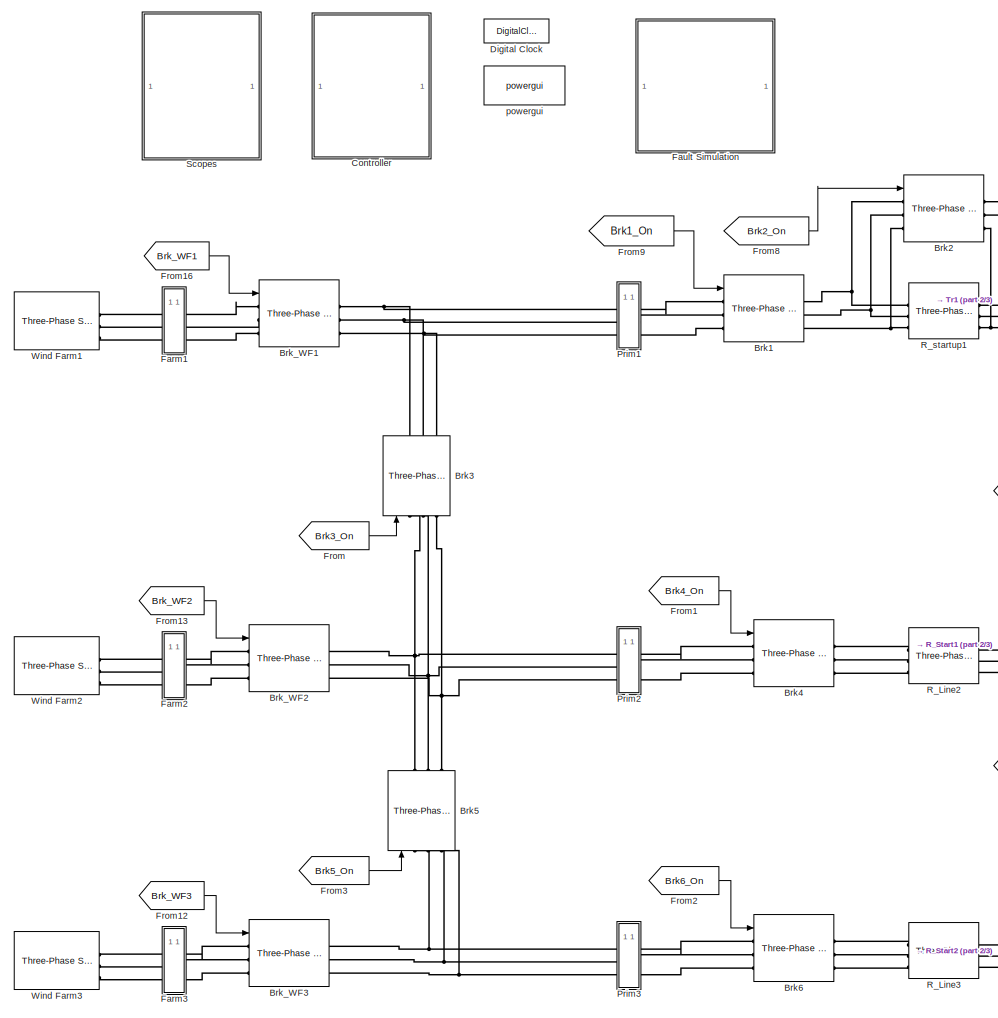
[diagram: root canvas - part 1/3, left side, full height]
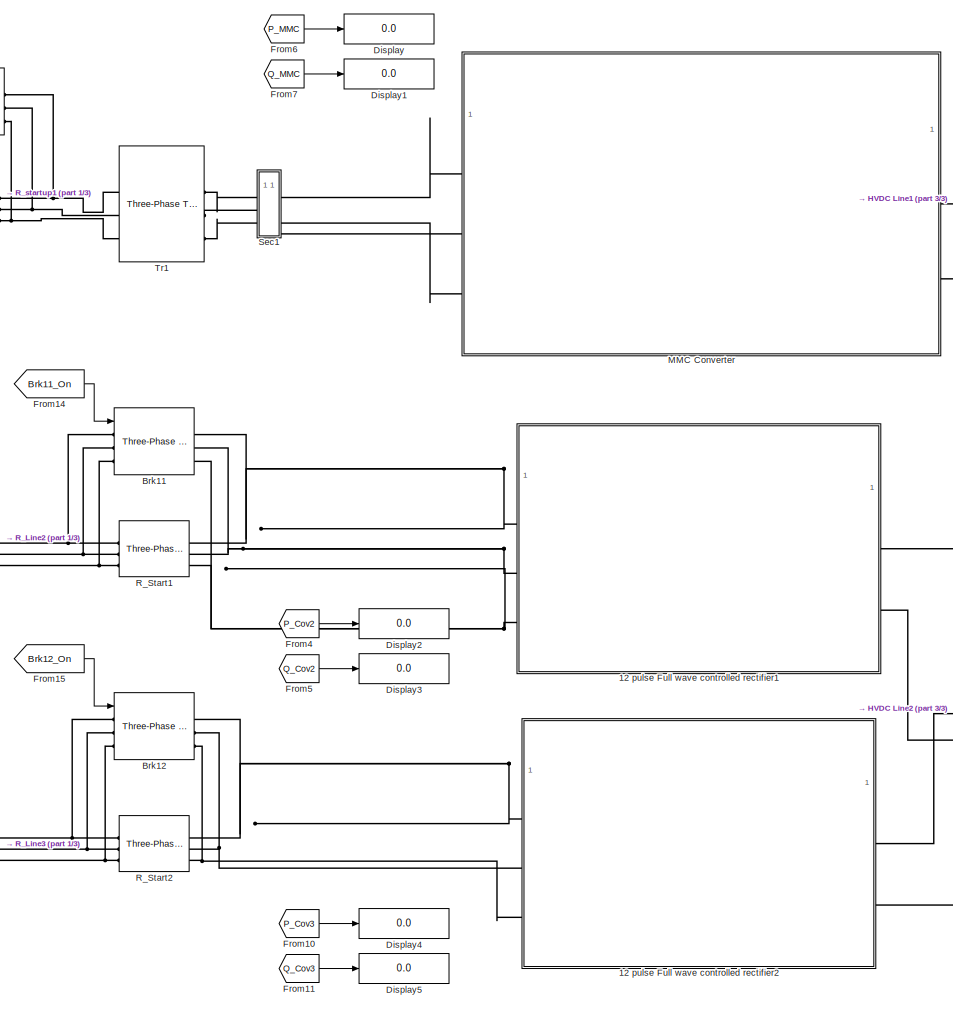
[diagram: root canvas - part 2/3, center side, full height]
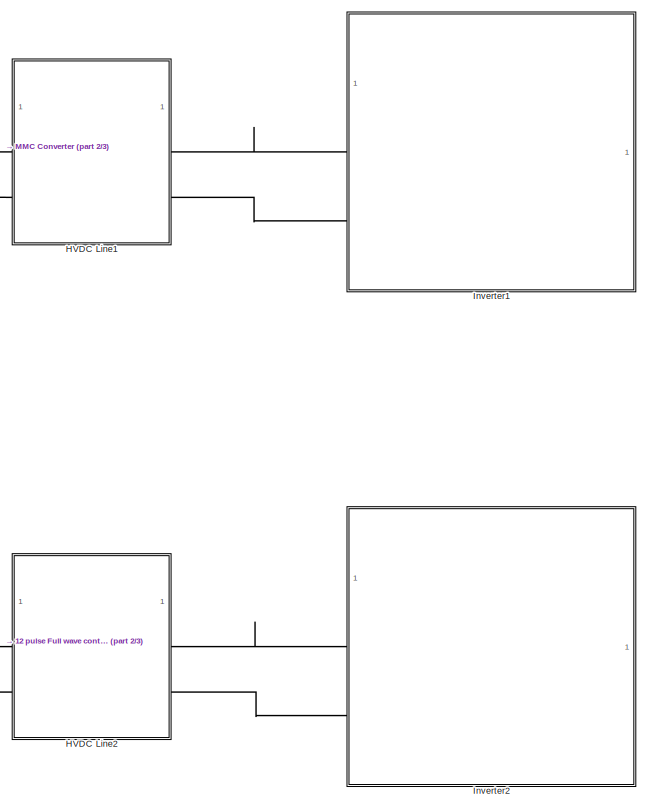
[diagram: root canvas - part 3/3, middle right region]
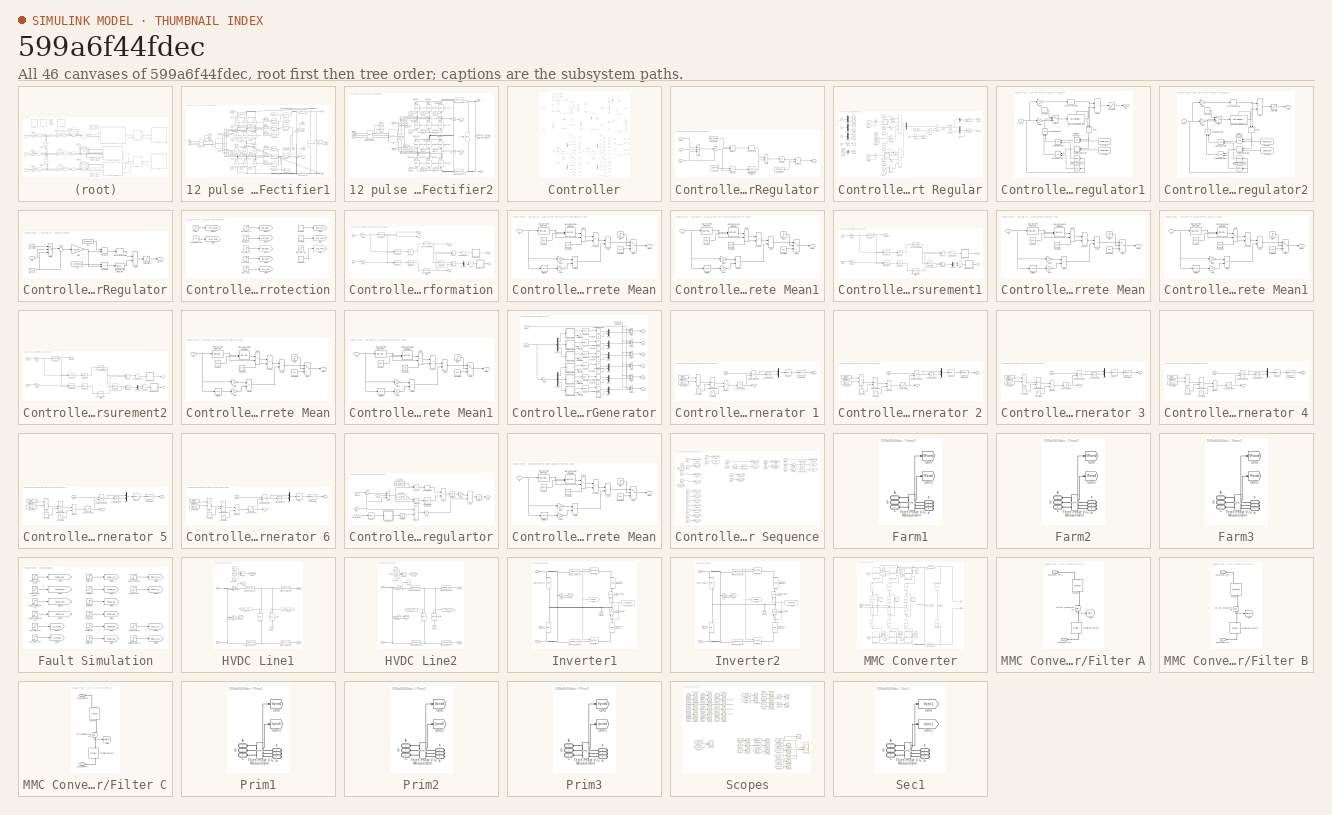
[diagram: thumbnail index - all 46 canvases of the model, root first then tree order]
MODEL slx_599a6f44fdec
KIND model
CONFIG AbsTol = auto
CONFIG EnableMultiTasking = off
CONFIG FixedStep = auto
CONFIG InitFcn = % TS %\nTs_Control=4e-05;\nTs_Power=2e-05;\n%% Main Circuit %%\n% AC Line %\nVnom_Sec=333000;\nVnom_Pri=400000;\nPnom=1.0e+09;\nFnom=60;\nPsc=2.0e+10;\nP_Ld1=2/3*1e+09;\nR_Startup=400;\nRxfo=0.003;\nLxfo=0.12;\nP_Ld2=500e+03;\n% MMC Parameter %\nLarm_pu=0.15;\nRarm_pu=Larm_pu/100;\nZbase= Vnom_Sec^2/Pnom;\nLarm=Larm_pu*(Zbase/(2*pi*Fnom));\nRarm=Rarm_pu*Zbase;\nC_PM=1.758e-3;\nw=2*pi*Fnom;\nwc2=(2*w)^2;\nCfilter=1/(Larm*...<+2718ch>
CONFIG MaxStep = auto
CONFIG MinStep = auto
CONFIG RelTol = 1e-3
CONFIG SampleTimeConstraint = Unconstrained
CONFIG SolverName = VariableStepAuto
CONFIG StartTime = 0.0
CONFIG StopTime = 10
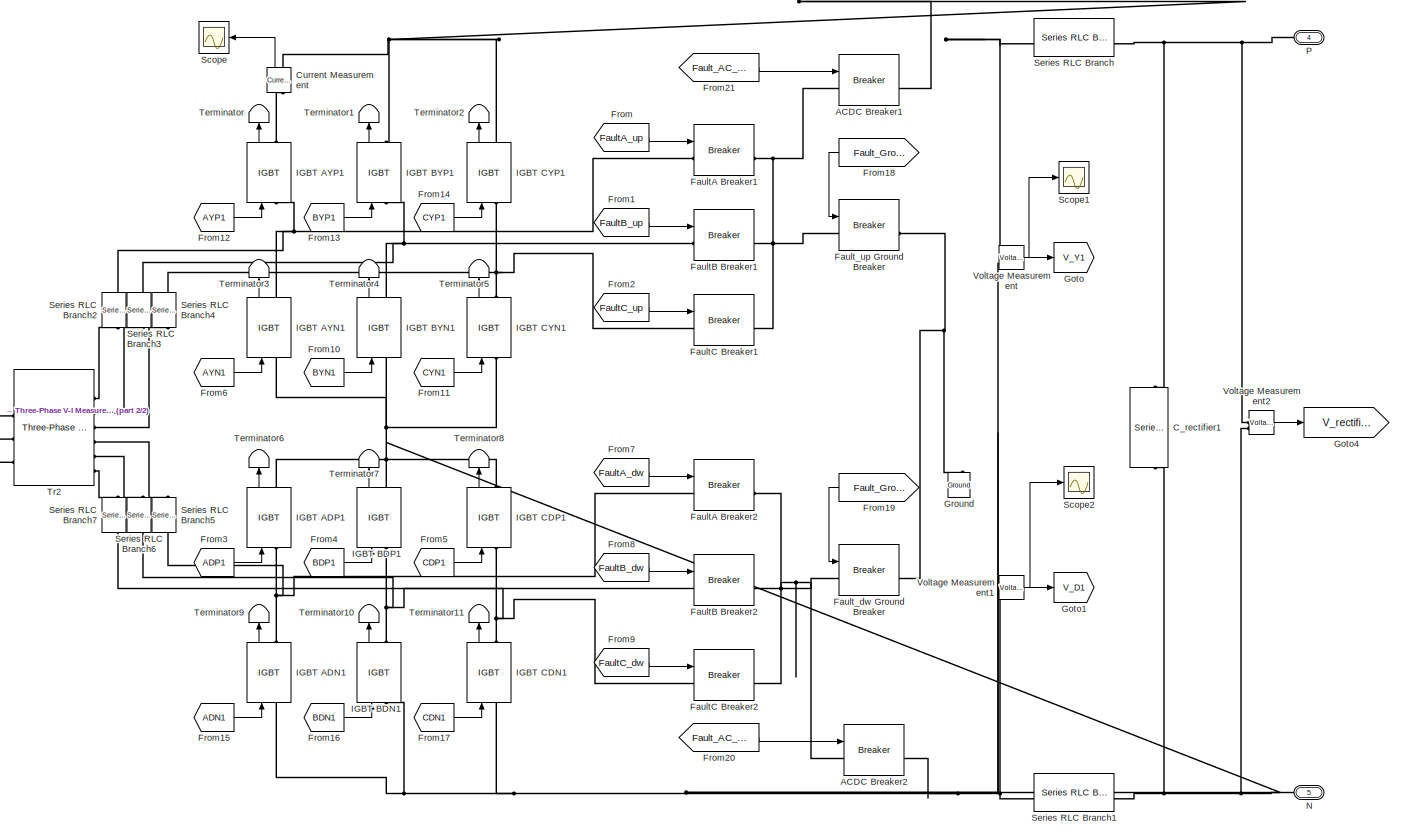
[diagram: 12 pulse Full wave controlled rectifier1 - part 1/2, most of the canvas]
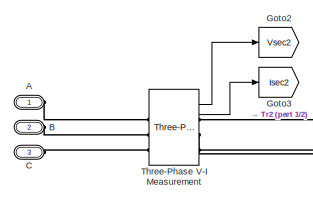
[diagram: 12 pulse Full wave controlled rectifier1 - part 2/2, middle left region]
BLOCK [SubSystem] 12 pulse Full wave controlled rectifier1
BLOCK [PMIOPort] 12 pulse Full wave controlled rectifier1/A
  Side = Left
BLOCK [Reference] 12 pulse Full wave controlled rectifier1/ACDC Breaker1  REF=spsBreakerLib/Breaker
  LibrarySourceBlock = sps_lib/Power Grid Elements/Breaker
  SourceBlock = spsBreakerLib/Breaker
  SourceType = Breaker
BLOCK [Reference] 12 pulse Full wave controlled rectifier1/ACDC Breaker2  REF=spsBreakerLib/Breaker
  LibrarySourceBlock = sps_lib/Power Grid Elements/Breaker
  SourceBlock = spsBreakerLib/Breaker
  SourceType = Breaker
BLOCK [PMIOPort] 12 pulse Full wave controlled rectifier1/B
  Port = 2
  Side = Left
BLOCK [PMIOPort] 12 pulse Full wave controlled rectifier1/C
  Port = 3
  Side = Left
BLOCK [Reference] 12 pulse Full wave controlled rectifier1/C_rectifier1  REF=spsSeriesRLCBranchLib/Series RLC Branch
  LibrarySourceBlock = sps_lib/Passives/Series RLC Branch
  NameLocation = left
  SourceBlock = spsSeriesRLCBranchLib/Series RLC Branch
  SourceType = Series RLC Branch
BLOCK [Reference] 12 pulse Full wave controlled rectifier1/Current Measurement  REF=spsCurrentMeasurementLib/Current Measurement
  LibrarySourceBlock = sps_lib/Sensors and Measurements/Current Measurement
  NameLocation = right
  SourceBlock = spsCurrentMeasurementLib/Current Measurement
  SourceType = Current Measurement
  UserDataPersistent = on
BLOCK [Reference] 12 pulse Full wave controlled rectifier1/FaultA Breaker1  REF=spsBreakerLib/Breaker
  LibrarySourceBlock = sps_lib/Power Grid Elements/Breaker
  SourceBlock = spsBreakerLib/Breaker
  SourceType = Breaker
BLOCK [Reference] 12 pulse Full wave controlled rectifier1/FaultA Breaker2  REF=spsBreakerLib/Breaker
  LibrarySourceBlock = sps_lib/Power Grid Elements/Breaker
  SourceBlock = spsBreakerLib/Breaker
  SourceType = Breaker
BLOCK [Reference] 12 pulse Full wave controlled rectifier1/FaultB Breaker1  REF=spsBreakerLib/Breaker
  LibrarySourceBlock = sps_lib/Power Grid Elements/Breaker
  SourceBlock = spsBreakerLib/Breaker
  SourceType = Breaker
BLOCK [Reference] 12 pulse Full wave controlled rectifier1/FaultB Breaker2  REF=spsBreakerLib/Breaker
  LibrarySourceBlock = sps_lib/Power Grid Elements/Breaker
  SourceBlock = spsBreakerLib/Breaker
  SourceType = Breaker
BLOCK [Reference] 12 pulse Full wave controlled rectifier1/FaultC Breaker1  REF=spsBreakerLib/Breaker
  LibrarySourceBlock = sps_lib/Power Grid Elements/Breaker
  SourceBlock = spsBreakerLib/Breaker
  SourceType = Breaker
BLOCK [Reference] 12 pulse Full wave controlled rectifier1/FaultC Breaker2  REF=spsBreakerLib/Breaker
  LibrarySourceBlock = sps_lib/Power Grid Elements/Breaker
  SourceBlock = spsBreakerLib/Breaker
  SourceType = Breaker
BLOCK [Reference] 12 pulse Full wave controlled rectifier1/Fault_dw Ground Breaker  REF=spsBreakerLib/Breaker
  LibrarySourceBlock = sps_lib/Power Grid Elements/Breaker
  SourceBlock = spsBreakerLib/Breaker
  SourceType = Breaker
BLOCK [Reference] 12 pulse Full wave controlled rectifier1/Fault_up Ground Breaker  REF=spsBreakerLib/Breaker
  LibrarySourceBlock = sps_lib/Power Grid Elements/Breaker
  SourceBlock = spsBreakerLib/Breaker
  SourceType = Breaker
BLOCK [From] 12 pulse Full wave controlled rectifier1/From
  GotoTag = FaultA_up
  TagVisibility = global
BLOCK [From] 12 pulse Full wave controlled rectifier1/From1
  GotoTag = FaultB_up
  TagVisibility = global
BLOCK [From] 12 pulse Full wave controlled rectifier1/From10
  GotoTag = BYN1
  TagVisibility = global
BLOCK [From] 12 pulse Full wave controlled rectifier1/From11
  GotoTag = CYN1
  TagVisibility = global
BLOCK [From] 12 pulse Full wave controlled rectifier1/From12
  GotoTag = AYP1
  TagVisibility = global
BLOCK [From] 12 pulse Full wave controlled rectifier1/From13
  GotoTag = BYP1
  TagVisibility = global
BLOCK [From] 12 pulse Full wave controlled rectifier1/From14
  GotoTag = CYP1
  TagVisibility = global
BLOCK [From] 12 pulse Full wave controlled rectifier1/From15
  GotoTag = ADN1
  TagVisibility = global
BLOCK [From] 12 pulse Full wave controlled rectifier1/From16
  GotoTag = BDN1
  TagVisibility = global
BLOCK [From] 12 pulse Full wave controlled rectifier1/From17
  GotoTag = CDN1
  TagVisibility = global
BLOCK [From] 12 pulse Full wave controlled rectifier1/From18
  GotoTag = Fault_Ground1
  NameLocation = top
  TagVisibility = global
BLOCK [From] 12 pulse Full wave controlled rectifier1/From19
  GotoTag = Fault_Ground2
  NameLocation = top
  TagVisibility = global
BLOCK [From] 12 pulse Full wave controlled rectifier1/From2
  GotoTag = FaultC_up
  TagVisibility = global
BLOCK [From] 12 pulse Full wave controlled rectifier1/From20
  GotoTag = Fault_AC_DC2
  TagVisibility = global
BLOCK [From] 12 pulse Full wave controlled rectifier1/From21
  GotoTag = Fault_AC_DC1
  TagVisibility = global
BLOCK [From] 12 pulse Full wave controlled rectifier1/From3
  GotoTag = ADP1
  TagVisibility = global
BLOCK [From] 12 pulse Full wave controlled rectifier1/From4
  GotoTag = BDP1
  TagVisibility = global
BLOCK [From] 12 pulse Full wave controlled rectifier1/From5
  GotoTag = CDP1
  TagVisibility = global
BLOCK [From] 12 pulse Full wave controlled rectifier1/From6
  GotoTag = AYN1
  TagVisibility = global
BLOCK [From] 12 pulse Full wave controlled rectifier1/From7
  GotoTag = FaultA_dw
  TagVisibility = global
BLOCK [From] 12 pulse Full wave controlled rectifier1/From8
  GotoTag = FaultB_dw
  TagVisibility = global
BLOCK [From] 12 pulse Full wave controlled rectifier1/From9
  GotoTag = FaultC_dw
  TagVisibility = global
BLOCK [Goto] 12 pulse Full wave controlled rectifier1/Goto
  GotoTag = V_Y1
BLOCK [Goto] 12 pulse Full wave controlled rectifier1/Goto1
  GotoTag = V_D1
BLOCK [Goto] 12 pulse Full wave controlled rectifier1/Goto2
  GotoTag = Vsec2
  TagVisibility = global
BLOCK [Goto] 12 pulse Full wave controlled rectifier1/Goto3
  GotoTag = Isec2
  TagVisibility = global
BLOCK [Goto] 12 pulse Full wave controlled rectifier1/Goto4
  GotoTag = V_rectifier1
  TagVisibility = global
BLOCK [Reference] 12 pulse Full wave controlled rectifier1/Ground  REF=spsGroundLib/Ground
  LibrarySourceBlock = sps_lib/Utilities/Ground
  NameLocation = right
  SourceBlock = spsGroundLib/Ground
  SourceType = Ground
BLOCK [Reference] 12 pulse Full wave controlled rectifier1/IGBT ADN1  REF=spsIGBTLib/IGBT
  LibrarySourceBlock = sps_lib/Power Electronics/IGBT
  NameLocation = right
  SourceBlock = spsIGBTLib/IGBT
  SourceType = IGBT
BLOCK [Reference] 12 pulse Full wave controlled rectifier1/IGBT ADP1  REF=spsIGBTLib/IGBT
  LibrarySourceBlock = sps_lib/Power Electronics/IGBT
  NameLocation = right
  SourceBlock = spsIGBTLib/IGBT
  SourceType = IGBT
BLOCK [Reference] 12 pulse Full wave controlled rectifier1/IGBT AYN1  REF=spsIGBTLib/IGBT
  LibrarySourceBlock = sps_lib/Power Electronics/IGBT
  NameLocation = right
  SourceBlock = spsIGBTLib/IGBT
  SourceType = IGBT
BLOCK [Reference] 12 pulse Full wave controlled rectifier1/IGBT AYP1  REF=spsIGBTLib/IGBT
  LibrarySourceBlock = sps_lib/Power Electronics/IGBT
  NameLocation = right
  SourceBlock = spsIGBTLib/IGBT
  SourceType = IGBT
BLOCK [Reference] 12 pulse Full wave controlled rectifier1/IGBT BDN1  REF=spsIGBTLib/IGBT
  LibrarySourceBlock = sps_lib/Power Electronics/IGBT
  NameLocation = right
  SourceBlock = spsIGBTLib/IGBT
  SourceType = IGBT
BLOCK [Reference] 12 pulse Full wave controlled rectifier1/IGBT BDP1  REF=spsIGBTLib/IGBT
  LibrarySourceBlock = sps_lib/Power Electronics/IGBT
  NameLocation = right
  SourceBlock = spsIGBTLib/IGBT
  SourceType = IGBT
BLOCK [Reference] 12 pulse Full wave controlled rectifier1/IGBT BYN1  REF=spsIGBTLib/IGBT
  LibrarySourceBlock = sps_lib/Power Electronics/IGBT
  NameLocation = right
  SourceBlock = spsIGBTLib/IGBT
  SourceType = IGBT
BLOCK [Reference] 12 pulse Full wave controlled rectifier1/IGBT BYP1  REF=spsIGBTLib/IGBT
  LibrarySourceBlock = sps_lib/Power Electronics/IGBT
  NameLocation = right
  SourceBlock = spsIGBTLib/IGBT
  SourceType = IGBT
BLOCK [Reference] 12 pulse Full wave controlled rectifier1/IGBT CDN1  REF=spsIGBTLib/IGBT
  LibrarySourceBlock = sps_lib/Power Electronics/IGBT
  NameLocation = right
  SourceBlock = spsIGBTLib/IGBT
  SourceType = IGBT
BLOCK [Reference] 12 pulse Full wave controlled rectifier1/IGBT CDP1  REF=spsIGBTLib/IGBT
  LibrarySourceBlock = sps_lib/Power Electronics/IGBT
  NameLocation = right
  SourceBlock = spsIGBTLib/IGBT
  SourceType = IGBT
BLOCK [Reference] 12 pulse Full wave controlled rectifier1/IGBT CYN1  REF=spsIGBTLib/IGBT
  LibrarySourceBlock = sps_lib/Power Electronics/IGBT
  NameLocation = right
  SourceBlock = spsIGBTLib/IGBT
  SourceType = IGBT
BLOCK [Reference] 12 pulse Full wave controlled rectifier1/IGBT CYP1  REF=spsIGBTLib/IGBT
  LibrarySourceBlock = sps_lib/Power Electronics/IGBT
  NameLocation = right
  SourceBlock = spsIGBTLib/IGBT
  SourceType = IGBT
BLOCK [PMIOPort] 12 pulse Full wave controlled rectifier1/N
  NameLocation = top
  Port = 5
  Side = Right
BLOCK [PMIOPort] 12 pulse Full wave controlled rectifier1/P
  Port = 4
  Side = Right
BLOCK [Scope] 12 pulse Full wave controlled rectifier1/Scope
  Floating = off
  NameLocation = top
  NumInputPorts = 1
  ScopeSpecificationString = Simulink.scopes.TimeScopeBlockCfg('CurrentConfiguration', extmgr.ConfigurationSet(extmgr.Configuration('Core','General UI',true,'FigureColor',[1 1 1]),extmgr.Configuration('Core','Source UI',true),extmgr.Configuration('Sources','WiredSimulink',true,'DataLoggingVariableName','ScopeData1'),extmgr.Configuration('Visuals','Time Domain',true,'SerializedDisplays',{struct('MinYLimReal','-32.64213','MaxYL...<+1679ch>
BLOCK [Scope] 12 pulse Full wave controlled rectifier1/Scope1
  Floating = off
  NumInputPorts = 1
  ScopeSpecificationString = Simulink.scopes.TimeScopeBlockCfg('CurrentConfiguration', extmgr.ConfigurationSet(extmgr.Configuration('Core','General UI',true,'FigureColor',[1 1 1]),extmgr.Configuration('Core','Source UI',true),extmgr.Configuration('Sources','WiredSimulink',true,'DataLoggingVariableName','ScopeData1'),extmgr.Configuration('Visuals','Time Domain',true,'SerializedDisplays',{struct('MinYLimReal','-102146.07336','M...<+1678ch>
BLOCK [Scope] 12 pulse Full wave controlled rectifier1/Scope2
  Floating = off
  NumInputPorts = 1
  ScopeSpecificationString = Simulink.scopes.TimeScopeBlockCfg('CurrentConfiguration', extmgr.ConfigurationSet(extmgr.Configuration('Core','General UI',true),extmgr.Configuration('Core','Source UI',true),extmgr.Configuration('Sources','WiredSimulink',true,'DataLoggingVariableName','ScopeData1'),extmgr.Configuration('Visuals','Time Domain',true,'SerializedDisplays',{struct('MinYLimReal','-438802.04095','MaxYLimReal','1327678.0...<+1446ch>
BLOCK [Reference] 12 pulse Full wave controlled rectifier1/Series RLC Branch  REF=spsSeriesRLCBranchLib/Series RLC Branch
  LibrarySourceBlock = sps_lib/Passives/Series RLC Branch
  SourceBlock = spsSeriesRLCBranchLib/Series RLC Branch
  SourceType = Series RLC Branch
BLOCK [Reference] 12 pulse Full wave controlled rectifier1/Series RLC Branch1  REF=spsSeriesRLCBranchLib/Series RLC Branch
  LibrarySourceBlock = sps_lib/Passives/Series RLC Branch
  SourceBlock = spsSeriesRLCBranchLib/Series RLC Branch
  SourceType = Series RLC Branch
BLOCK [Reference] 12 pulse Full wave controlled rectifier1/Series RLC Branch2  REF=spsSeriesRLCBranchLib/Series RLC Branch
  LibrarySourceBlock = sps_lib/Passives/Series RLC Branch
  NameLocation = left
  SourceBlock = spsSeriesRLCBranchLib/Series RLC Branch
  SourceType = Series RLC Branch
BLOCK [Reference] 12 pulse Full wave controlled rectifier1/Series RLC Branch3  REF=spsSeriesRLCBranchLib/Series RLC Branch
  LibrarySourceBlock = sps_lib/Passives/Series RLC Branch
  NameLocation = left
  SourceBlock = spsSeriesRLCBranchLib/Series RLC Branch
  SourceType = Series RLC Branch
BLOCK [Reference] 12 pulse Full wave controlled rectifier1/Series RLC Branch4  REF=spsSeriesRLCBranchLib/Series RLC Branch
  LibrarySourceBlock = sps_lib/Passives/Series RLC Branch
  NameLocation = left
  SourceBlock = spsSeriesRLCBranchLib/Series RLC Branch
  SourceType = Series RLC Branch
BLOCK [Reference] 12 pulse Full wave controlled rectifier1/Series RLC Branch5  REF=spsSeriesRLCBranchLib/Series RLC Branch
  LibrarySourceBlock = sps_lib/Passives/Series RLC Branch
  NameLocation = left
  SourceBlock = spsSeriesRLCBranchLib/Series RLC Branch
  SourceType = Series RLC Branch
BLOCK [Reference] 12 pulse Full wave controlled rectifier1/Series RLC Branch6  REF=spsSeriesRLCBranchLib/Series RLC Branch
  LibrarySourceBlock = sps_lib/Passives/Series RLC Branch
  NameLocation = left
  SourceBlock = spsSeriesRLCBranchLib/Series RLC Branch
  SourceType = Series RLC Branch
BLOCK [Reference] 12 pulse Full wave controlled rectifier1/Series RLC Branch7  REF=spsSeriesRLCBranchLib/Series RLC Branch
  LibrarySourceBlock = sps_lib/Passives/Series RLC Branch
  NameLocation = left
  SourceBlock = spsSeriesRLCBranchLib/Series RLC Branch
  SourceType = Series RLC Branch
BLOCK [Terminator] 12 pulse Full wave controlled rectifier1/Terminator
  NameLocation = right
BLOCK [Terminator] 12 pulse Full wave controlled rectifier1/Terminator1
  NameLocation = right
BLOCK [Terminator] 12 pulse Full wave controlled rectifier1/Terminator10
  NameLocation = right
BLOCK [Terminator] 12 pulse Full wave controlled rectifier1/Terminator11
  NameLocation = right
BLOCK [Terminator] 12 pulse Full wave controlled rectifier1/Terminator2
  NameLocation = right
BLOCK [Terminator] 12 pulse Full wave controlled rectifier1/Terminator3
  NameLocation = right
BLOCK [Terminator] 12 pulse Full wave controlled rectifier1/Terminator4
  NameLocation = right
BLOCK [Terminator] 12 pulse Full wave controlled rectifier1/Terminator5
  NameLocation = right
BLOCK [Terminator] 12 pulse Full wave controlled rectifier1/Terminator6
  NameLocation = right
BLOCK [Terminator] 12 pulse Full wave controlled rectifier1/Terminator7
  NameLocation = right
BLOCK [Terminator] 12 pulse Full wave controlled rectifier1/Terminator8
  NameLocation = right
BLOCK [Terminator] 12 pulse Full wave controlled rectifier1/Terminator9
  NameLocation = right
BLOCK [Reference] 12 pulse Full wave controlled rectifier1/Three-Phase V-I Measurement  REF=spsThreePhaseVIMeasurementLib/Three-Phase
V-I Measurement
  LibrarySourceBlock = sps_lib/Sensors and Measurements/Three-Phase\nV-I Measurement
  SourceBlock = spsThreePhaseVIMeasurementLib/Three-Phase\nV-I Measurement
  SourceType = Three-Phase VI Measurement
BLOCK [Reference] 12 pulse Full wave controlled rectifier1/Tr2  REF=spsThreePhaseTransformerThreeWindingsLib/Three-Phase
Transformer
(Three Windings)
  LibrarySourceBlock = sps_lib/Power Grid Elements/Three-Phase\nTransformer\n(Three Windings)
  SourceBlock = spsThreePhaseTransformerThreeWindingsLib/Three-Phase\nTransformer\n(Three Windings)
  SourceType = Three-Phase Transformer (Three Windings)
BLOCK [Reference] 12 pulse Full wave controlled rectifier1/Voltage Measurement  REF=spsVoltageMeasurementLib/Voltage Measurement
  LibrarySourceBlock = sps_lib/Sensors and Measurements/Voltage Measurement
  SourceBlock = spsVoltageMeasurementLib/Voltage Measurement
  SourceType = Voltage Measurement
  UserDataPersistent = on
BLOCK [Reference] 12 pulse Full wave controlled rectifier1/Voltage Measurement1  REF=spsVoltageMeasurementLib/Voltage Measurement
  LibrarySourceBlock = sps_lib/Sensors and Measurements/Voltage Measurement
  SourceBlock = spsVoltageMeasurementLib/Voltage Measurement
  SourceType = Voltage Measurement
  UserDataPersistent = on
BLOCK [Reference] 12 pulse Full wave controlled rectifier1/Voltage Measurement2  REF=spsVoltageMeasurementLib/Voltage Measurement
  LibrarySourceBlock = sps_lib/Sensors and Measurements/Voltage Measurement
  SourceBlock = spsVoltageMeasurementLib/Voltage Measurement
  SourceType = Voltage Measurement
  UserDataPersistent = on
BLOCK [SubSystem] 12 pulse Full wave controlled rectifier2
BLOCK [PMIOPort] 12 pulse Full wave controlled rectifier2/A
  Side = Left
BLOCK [PMIOPort] 12 pulse Full wave controlled rectifier2/B
  Port = 2
  Side = Left
BLOCK [PMIOPort] 12 pulse Full wave controlled rectifier2/C
  Port = 3
  Side = Left
BLOCK [Reference] 12 pulse Full wave controlled rectifier2/C_rectifier2  REF=spsSeriesRLCBranchLib/Series RLC Branch
  LibrarySourceBlock = sps_lib/Passives/Series RLC Branch
  NameLocation = left
  SourceBlock = spsSeriesRLCBranchLib/Series RLC Branch
  SourceType = Series RLC Branch
BLOCK [From] 12 pulse Full wave controlled rectifier2/From18
  GotoTag = AYP2
  TagVisibility = global
BLOCK [From] 12 pulse Full wave controlled rectifier2/From19
  GotoTag = BYP2
  TagVisibility = global
BLOCK [From] 12 pulse Full wave controlled rectifier2/From20
  GotoTag = CYP2
  TagVisibility = global
BLOCK [From] 12 pulse Full wave controlled rectifier2/From21
  GotoTag = AYN2
  TagVisibility = global
BLOCK [From] 12 pulse Full wave controlled rectifier2/From22
  GotoTag = BYN2
  TagVisibility = global
BLOCK [From] 12 pulse Full wave controlled rectifier2/From23
  GotoTag = CYN2
  TagVisibility = global
BLOCK [From] 12 pulse Full wave controlled rectifier2/From24
  GotoTag = ADP2
  TagVisibility = global
BLOCK [From] 12 pulse Full wave controlled rectifier2/From25
  GotoTag = BDP2
  TagVisibility = global
BLOCK [From] 12 pulse Full wave controlled rectifier2/From26
  GotoTag = CDP2
  TagVisibility = global
BLOCK [From] 12 pulse Full wave controlled rectifier2/From27
  GotoTag = ADN2
  TagVisibility = global
BLOCK [From] 12 pulse Full wave controlled rectifier2/From28
  GotoTag = BDN2
  TagVisibility = global
BLOCK [From] 12 pulse Full wave controlled rectifier2/From29
  GotoTag = CDN2
  TagVisibility = global
BLOCK [Goto] 12 pulse Full wave controlled rectifier2/Goto
  GotoTag = V_Y2
  TagVisibility = global
BLOCK [Goto] 12 pulse Full wave controlled rectifier2/Goto1
  GotoTag = V_D2
  TagVisibility = global
BLOCK [Goto] 12 pulse Full wave controlled rectifier2/Goto2
  GotoTag = Vsec3
  TagVisibility = global
BLOCK [Goto] 12 pulse Full wave controlled rectifier2/Goto3
  GotoTag = Isec3
  TagVisibility = global
BLOCK [Goto] 12 pulse Full wave controlled rectifier2/Goto4
  GotoTag = V_rectifier2
  TagVisibility = global
BLOCK [Reference] 12 pulse Full wave controlled rectifier2/IGBT ADN2  REF=spsIGBTLib/IGBT
  LibrarySourceBlock = sps_lib/Power Electronics/IGBT
  NameLocation = right
  SourceBlock = spsIGBTLib/IGBT
  SourceType = IGBT
BLOCK [Reference] 12 pulse Full wave controlled rectifier2/IGBT ADP2  REF=spsIGBTLib/IGBT
  LibrarySourceBlock = sps_lib/Power Electronics/IGBT
  NameLocation = right
  SourceBlock = spsIGBTLib/IGBT
  SourceType = IGBT
BLOCK [Reference] 12 pulse Full wave controlled rectifier2/IGBT AYN2  REF=spsIGBTLib/IGBT
  LibrarySourceBlock = sps_lib/Power Electronics/IGBT
  NameLocation = right
  SourceBlock = spsIGBTLib/IGBT
  SourceType = IGBT
BLOCK [Reference] 12 pulse Full wave controlled rectifier2/IGBT AYP2  REF=spsIGBTLib/IGBT
  LibrarySourceBlock = sps_lib/Power Electronics/IGBT
  NameLocation = right
  SourceBlock = spsIGBTLib/IGBT
  SourceType = IGBT
BLOCK [Reference] 12 pulse Full wave controlled rectifier2/IGBT BDN2  REF=spsIGBTLib/IGBT
  LibrarySourceBlock = sps_lib/Power Electronics/IGBT
  NameLocation = right
  SourceBlock = spsIGBTLib/IGBT
  SourceType = IGBT
BLOCK [Reference] 12 pulse Full wave controlled rectifier2/IGBT BDP2  REF=spsIGBTLib/IGBT
  LibrarySourceBlock = sps_lib/Power Electronics/IGBT
  NameLocation = right
  SourceBlock = spsIGBTLib/IGBT
  SourceType = IGBT
BLOCK [Reference] 12 pulse Full wave controlled rectifier2/IGBT BYN2  REF=spsIGBTLib/IGBT
  LibrarySourceBlock = sps_lib/Power Electronics/IGBT
  NameLocation = right
  SourceBlock = spsIGBTLib/IGBT
  SourceType = IGBT
BLOCK [Reference] 12 pulse Full wave controlled rectifier2/IGBT BYP2  REF=spsIGBTLib/IGBT
  LibrarySourceBlock = sps_lib/Power Electronics/IGBT
  NameLocation = right
  SourceBlock = spsIGBTLib/IGBT
  SourceType = IGBT
BLOCK [Reference] 12 pulse Full wave controlled rectifier2/IGBT CDN2  REF=spsIGBTLib/IGBT
  LibrarySourceBlock = sps_lib/Power Electronics/IGBT
  NameLocation = right
  SourceBlock = spsIGBTLib/IGBT
  SourceType = IGBT
BLOCK [Reference] 12 pulse Full wave controlled rectifier2/IGBT CDP2  REF=spsIGBTLib/IGBT
  LibrarySourceBlock = sps_lib/Power Electronics/IGBT
  NameLocation = right
  SourceBlock = spsIGBTLib/IGBT
  SourceType = IGBT
BLOCK [Reference] 12 pulse Full wave controlled rectifier2/IGBT CYN2  REF=spsIGBTLib/IGBT
  LibrarySourceBlock = sps_lib/Power Electronics/IGBT
  NameLocation = right
  SourceBlock = spsIGBTLib/IGBT
  SourceType = IGBT
BLOCK [Reference] 12 pulse Full wave controlled rectifier2/IGBT CYP2  REF=spsIGBTLib/IGBT
  LibrarySourceBlock = sps_lib/Power Electronics/IGBT
  NameLocation = right
  SourceBlock = spsIGBTLib/IGBT
  SourceType = IGBT
BLOCK [PMIOPort] 12 pulse Full wave controlled rectifier2/N
  NameLocation = top
  Port = 5
  Side = Right
BLOCK [PMIOPort] 12 pulse Full wave controlled rectifier2/P
  Port = 4
  Side = Right
BLOCK [Reference] 12 pulse Full wave controlled rectifier2/Series RLC Branch  REF=spsSeriesRLCBranchLib/Series RLC Branch
  LibrarySourceBlock = sps_lib/Passives/Series RLC Branch
  SourceBlock = spsSeriesRLCBranchLib/Series RLC Branch
  SourceType = Series RLC Branch
BLOCK [Reference] 12 pulse Full wave controlled rectifier2/Series RLC Branch1  REF=spsSeriesRLCBranchLib/Series RLC Branch
  LibrarySourceBlock = sps_lib/Passives/Series RLC Branch
  SourceBlock = spsSeriesRLCBranchLib/Series RLC Branch
  SourceType = Series RLC Branch
BLOCK [Reference] 12 pulse Full wave controlled rectifier2/Series RLC Branch2  REF=spsSeriesRLCBranchLib/Series RLC Branch
  LibrarySourceBlock = sps_lib/Passives/Series RLC Branch
  NameLocation = left
  SourceBlock = spsSeriesRLCBranchLib/Series RLC Branch
  SourceType = Series RLC Branch
BLOCK [Reference] 12 pulse Full wave controlled rectifier2/Series RLC Branch3  REF=spsSeriesRLCBranchLib/Series RLC Branch
  LibrarySourceBlock = sps_lib/Passives/Series RLC Branch
  NameLocation = left
  SourceBlock = spsSeriesRLCBranchLib/Series RLC Branch
  SourceType = Series RLC Branch
BLOCK [Reference] 12 pulse Full wave controlled rectifier2/Series RLC Branch4  REF=spsSeriesRLCBranchLib/Series RLC Branch
  LibrarySourceBlock = sps_lib/Passives/Series RLC Branch
  NameLocation = left
  SourceBlock = spsSeriesRLCBranchLib/Series RLC Branch
  SourceType = Series RLC Branch
BLOCK [Reference] 12 pulse Full wave controlled rectifier2/Series RLC Branch5  REF=spsSeriesRLCBranchLib/Series RLC Branch
  LibrarySourceBlock = sps_lib/Passives/Series RLC Branch
  NameLocation = left
  SourceBlock = spsSeriesRLCBranchLib/Series RLC Branch
  SourceType = Series RLC Branch
BLOCK [Reference] 12 pulse Full wave controlled rectifier2/Series RLC Branch6  REF=spsSeriesRLCBranchLib/Series RLC Branch
  LibrarySourceBlock = sps_lib/Passives/Series RLC Branch
  NameLocation = left
  SourceBlock = spsSeriesRLCBranchLib/Series RLC Branch
  SourceType = Series RLC Branch
BLOCK [Reference] 12 pulse Full wave controlled rectifier2/Series RLC Branch7  REF=spsSeriesRLCBranchLib/Series RLC Branch
  LibrarySourceBlock = sps_lib/Passives/Series RLC Branch
  NameLocation = left
  SourceBlock = spsSeriesRLCBranchLib/Series RLC Branch
  SourceType = Series RLC Branch
BLOCK [Terminator] 12 pulse Full wave controlled rectifier2/Terminator
  NameLocation = right
BLOCK [Terminator] 12 pulse Full wave controlled rectifier2/Terminator1
  NameLocation = right
BLOCK [Terminator] 12 pulse Full wave controlled rectifier2/Terminator10
  NameLocation = right
BLOCK [Terminator] 12 pulse Full wave controlled rectifier2/Terminator11
  NameLocation = right
BLOCK [Terminator] 12 pulse Full wave controlled rectifier2/Terminator2
  NameLocation = right
BLOCK [Terminator] 12 pulse Full wave controlled rectifier2/Terminator3
  NameLocation = right
BLOCK [Terminator] 12 pulse Full wave controlled rectifier2/Terminator4
  NameLocation = right
BLOCK [Terminator] 12 pulse Full wave controlled rectifier2/Terminator5
  NameLocation = right
BLOCK [Terminator] 12 pulse Full wave controlled rectifier2/Terminator6
  NameLocation = right
BLOCK [Terminator] 12 pulse Full wave controlled rectifier2/Terminator7
  NameLocation = right
BLOCK [Terminator] 12 pulse Full wave controlled rectifier2/Terminator8
  NameLocation = right
BLOCK [Terminator] 12 pulse Full wave controlled rectifier2/Terminator9
  NameLocation = right
BLOCK [Reference] 12 pulse Full wave controlled rectifier2/Three-Phase V-I Measurement  REF=spsThreePhaseVIMeasurementLib/Three-Phase
V-I Measurement
  LibrarySourceBlock = sps_lib/Sensors and Measurements/Three-Phase\nV-I Measurement
  SourceBlock = spsThreePhaseVIMeasurementLib/Three-Phase\nV-I Measurement
  SourceType = Three-Phase VI Measurement
BLOCK [Reference] 12 pulse Full wave controlled rectifier2/Tr3  REF=spsThreePhaseTransformerThreeWindingsLib/Three-Phase
Transformer
(Three Windings)
  LibrarySourceBlock = sps_lib/Power Grid Elements/Three-Phase\nTransformer\n(Three Windings)
  SourceBlock = spsThreePhaseTransformerThreeWindingsLib/Three-Phase\nTransformer\n(Three Windings)
  SourceType = Three-Phase Transformer (Three Windings)
BLOCK [Reference] 12 pulse Full wave controlled rectifier2/Voltage Measurement  REF=spsVoltageMeasurementLib/Voltage Measurement
  LibrarySourceBlock = sps_lib/Sensors and Measurements/Voltage Measurement
  SourceBlock = spsVoltageMeasurementLib/Voltage Measurement
  SourceType = Voltage Measurement
  UserDataPersistent = on
BLOCK [Reference] 12 pulse Full wave controlled rectifier2/Voltage Measurement1  REF=spsVoltageMeasurementLib/Voltage Measurement
  LibrarySourceBlock = sps_lib/Sensors and Measurements/Voltage Measurement
  SourceBlock = spsVoltageMeasurementLib/Voltage Measurement
  SourceType = Voltage Measurement
  UserDataPersistent = on
BLOCK [Reference] 12 pulse Full wave controlled rectifier2/Voltage Measurement2  REF=spsVoltageMeasurementLib/Voltage Measurement
  LibrarySourceBlock = sps_lib/Sensors and Measurements/Voltage Measurement
  SourceBlock = spsVoltageMeasurementLib/Voltage Measurement
  SourceType = Voltage Measurement
  UserDataPersistent = on
BLOCK [Reference] Brk1  REF=spsThreePhaseBreakerLib/Three-Phase Breaker
  LibrarySourceBlock = sps_lib/Power Grid Elements/Three-Phase Breaker
  SourceBlock = spsThreePhaseBreakerLib/Three-Phase Breaker
  SourceType = Three-Phase Breaker
BLOCK [Reference] Brk11  REF=spsThreePhaseBreakerLib/Three-Phase Breaker
  LibrarySourceBlock = sps_lib/Power Grid Elements/Three-Phase Breaker
  SourceBlock = spsThreePhaseBreakerLib/Three-Phase Breaker
  SourceType = Three-Phase Breaker
BLOCK [Reference] Brk12  REF=spsThreePhaseBreakerLib/Three-Phase Breaker
  LibrarySourceBlock = sps_lib/Power Grid Elements/Three-Phase Breaker
  SourceBlock = spsThreePhaseBreakerLib/Three-Phase Breaker
  SourceType = Three-Phase Breaker
BLOCK [Reference] Brk2  REF=spsThreePhaseBreakerLib/Three-Phase Breaker
  LibrarySourceBlock = sps_lib/Power Grid Elements/Three-Phase Breaker
  SourceBlock = spsThreePhaseBreakerLib/Three-Phase Breaker
  SourceType = Three-Phase Breaker
BLOCK [Reference] Brk3  REF=spsThreePhaseBreakerLib/Three-Phase Breaker
  LibrarySourceBlock = sps_lib/Power Grid Elements/Three-Phase Breaker
  NameLocation = right
  SourceBlock = spsThreePhaseBreakerLib/Three-Phase Breaker
  SourceType = Three-Phase Breaker
BLOCK [Reference] Brk4  REF=spsThreePhaseBreakerLib/Three-Phase Breaker
  LibrarySourceBlock = sps_lib/Power Grid Elements/Three-Phase Breaker
  SourceBlock = spsThreePhaseBreakerLib/Three-Phase Breaker
  SourceType = Three-Phase Breaker
BLOCK [Reference] Brk5  REF=spsThreePhaseBreakerLib/Three-Phase Breaker
  LibrarySourceBlock = sps_lib/Power Grid Elements/Three-Phase Breaker
  NameLocation = right
  SourceBlock = spsThreePhaseBreakerLib/Three-Phase Breaker
  SourceType = Three-Phase Breaker
BLOCK [Reference] Brk6  REF=spsThreePhaseBreakerLib/Three-Phase Breaker
  LibrarySourceBlock = sps_lib/Power Grid Elements/Three-Phase Breaker
  SourceBlock = spsThreePhaseBreakerLib/Three-Phase Breaker
  SourceType = Three-Phase Breaker
BLOCK [Reference] Brk_WF1  REF=spsThreePhaseBreakerLib/Three-Phase Breaker
  LibrarySourceBlock = sps_lib/Power Grid Elements/Three-Phase Breaker
  SourceBlock = spsThreePhaseBreakerLib/Three-Phase Breaker
  SourceType = Three-Phase Breaker
BLOCK [Reference] Brk_WF2  REF=spsThreePhaseBreakerLib/Three-Phase Breaker
  LibrarySourceBlock = sps_lib/Power Grid Elements/Three-Phase Breaker
  SourceBlock = spsThreePhaseBreakerLib/Three-Phase Breaker
  SourceType = Three-Phase Breaker
BLOCK [Reference] Brk_WF3  REF=spsThreePhaseBreakerLib/Three-Phase Breaker
  LibrarySourceBlock = sps_lib/Power Grid Elements/Three-Phase Breaker
  SourceBlock = spsThreePhaseBreakerLib/Three-Phase Breaker
  SourceType = Three-Phase Breaker
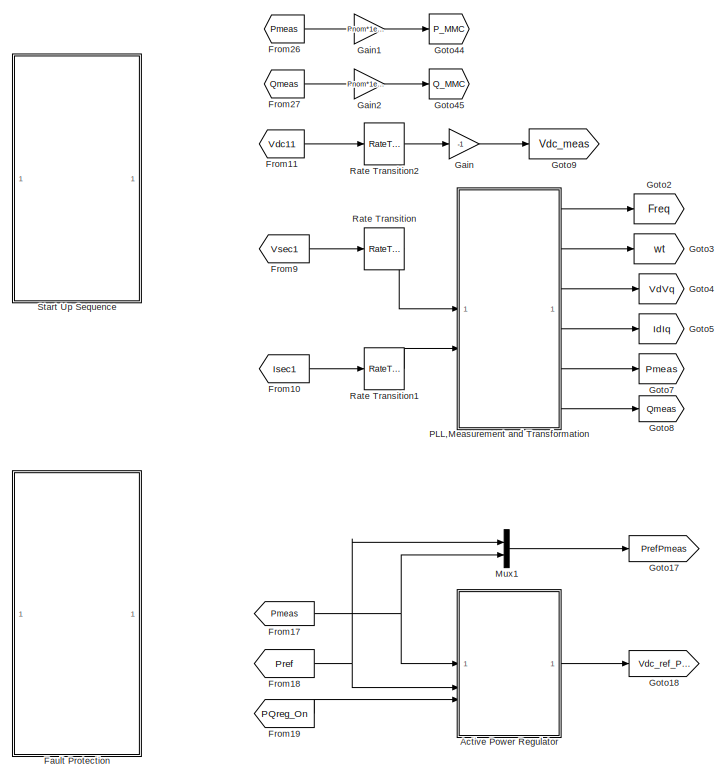
[diagram: Controller - part 1/4, top left region]
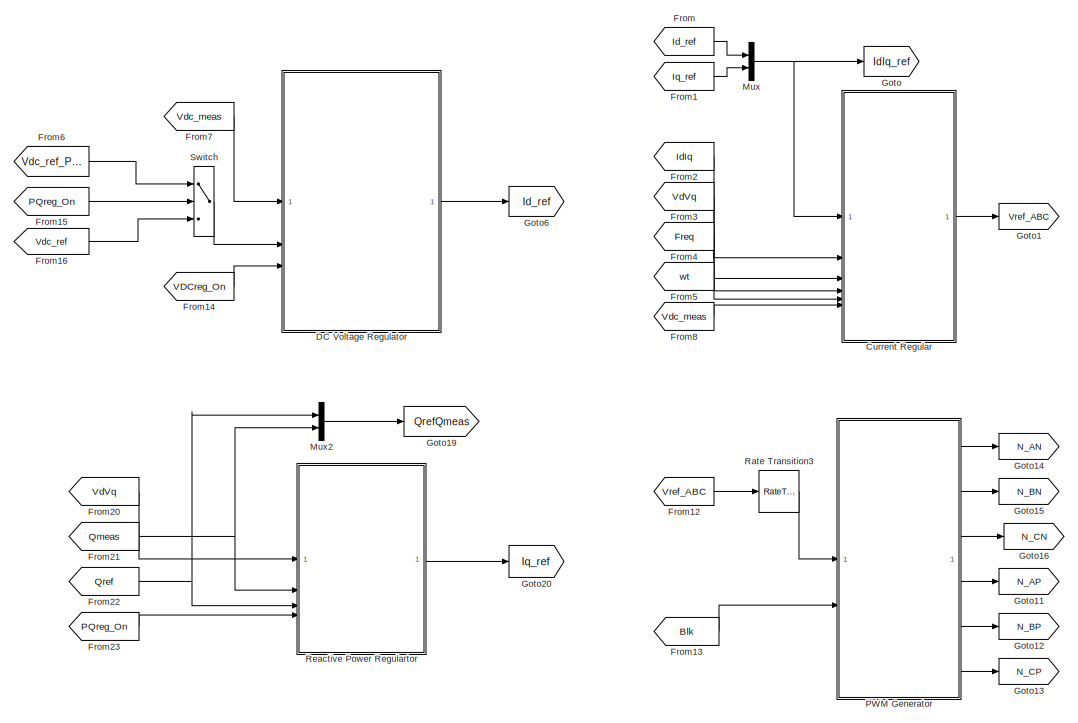
[diagram: Controller - part 2/4, top right region]
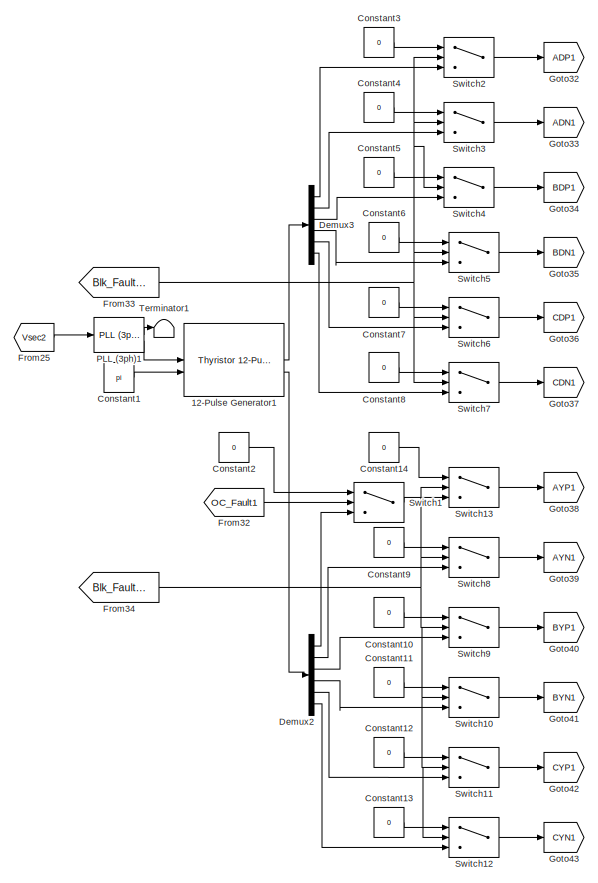
[diagram: Controller - part 3/4, bottom left region]
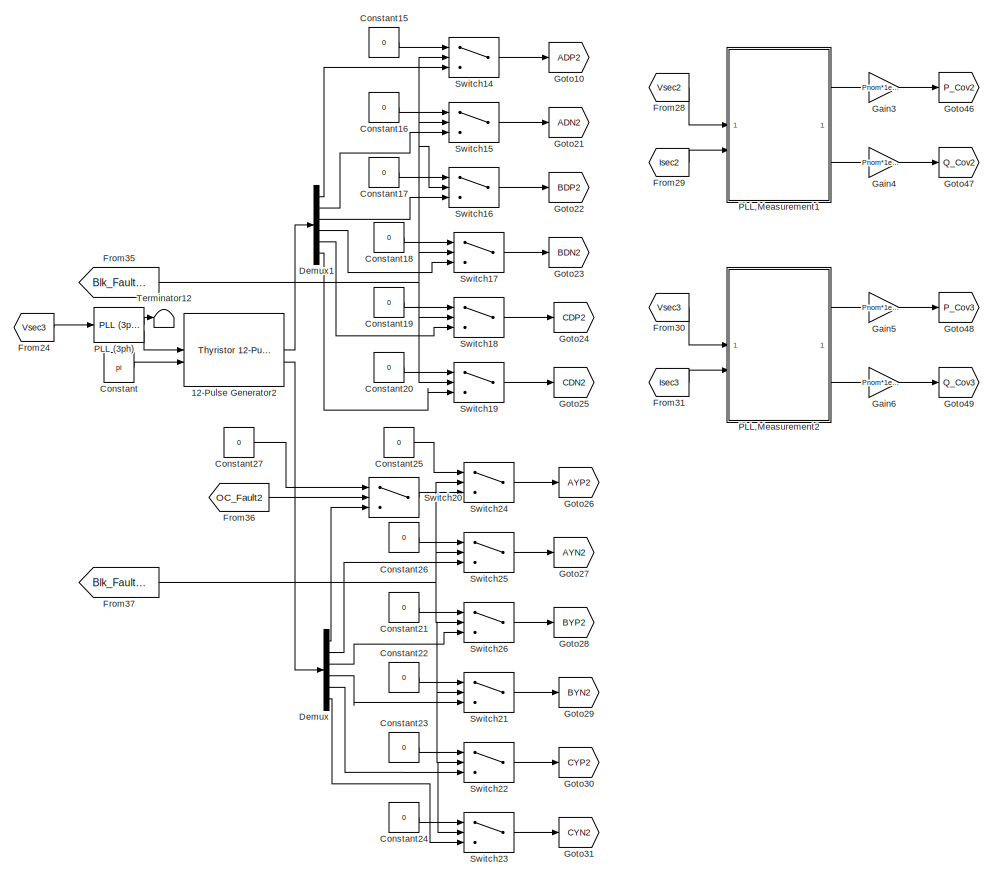
[diagram: Controller - part 4/4, bottom right region]
BLOCK [SubSystem] Controller
BLOCK [Reference] Controller/12-Pulse Generator1  REF=eeThyristorTwelvePulseGenerator/Thyristor 12-Pulse
Generator
  LibrarySourceBlock = ee_sl_lib/Pulse Width\nModulation/Thyristor 12-Pulse\nGenerator
  SourceBlock = eeThyristorTwelvePulseGenerator/Thyristor 12-Pulse\nGenerator
  SourceType = Thyristor 12-Pulse Generator
BLOCK [Reference] Controller/12-Pulse Generator2  REF=eeThyristorTwelvePulseGenerator/Thyristor 12-Pulse
Generator
  LibrarySourceBlock = ee_sl_lib/Pulse Width\nModulation/Thyristor 12-Pulse\nGenerator
  SourceBlock = eeThyristorTwelvePulseGenerator/Thyristor 12-Pulse\nGenerator
  SourceType = Thyristor 12-Pulse Generator
BLOCK [SubSystem] Controller/Active Power Regulator
BLOCK [Constant] Controller/Active Power Regulator/Constant
  SampleTime = Ts_Control
  Value = Ki_Preg
BLOCK [Constant] Controller/Active Power Regulator/Constant1
  SampleTime = Ts_Control
  Value = Kp_Preg
BLOCK [Constant] Controller/Active Power Regulator/Constant2
  SampleTime = Ts_Control
  Value = Vnom_dc
BLOCK [DiscreteIntegrator] Controller/Active Power Regulator/Discrete-Time Integrator
  ICPrevOutput = DiscIntNeverNeededParam
  ICPrevScaledInput = DiscIntNeverNeededParam
  InitialCondition = 1
  LimitOutput = on
  LowerSaturationLimit = Limits_Preg(1)
  SampleTime = Ts_Control
  UpperSaturationLimit = Limits_Preg(2)
BLOCK [Inport] Controller/Active Power Regulator/Pmeas
BLOCK [Inport] Controller/Active Power Regulator/Pref
  Port = 2
BLOCK [Product] Controller/Active Power Regulator/Product
BLOCK [Product] Controller/Active Power Regulator/Product1
BLOCK [Product] Controller/Active Power Regulator/Product2
BLOCK [Saturate] Controller/Active Power Regulator/Saturation
  LowerLimit = Limits_Preg(1)
  SampleTime = Ts_Control
  UpperLimit = Limits_Preg(2)
BLOCK [Sum] Controller/Active Power Regulator/Sum
  Inputs = |+-
BLOCK [Sum] Controller/Active Power Regulator/Sum1
  IconShape = rectangular
  SampleTime = Ts_Control
BLOCK [Switch] Controller/Active Power Regulator/Switch
  Criteria = u2 ~= 0
  InputSameDT = off
  SaturateOnIntegerOverflow = off
  Threshold = 0.5
BLOCK [Outport] Controller/Active Power Regulator/Vdc_ref
BLOCK [ZeroOrderHold] Controller/Active Power Regulator/Zero-Order Hold
  SampleTime = Ts_Control
BLOCK [Inport] Controller/Active Power Regulator/on
  Port = 3
BLOCK [Constant] Controller/Constant
  Value = pi
BLOCK [Constant] Controller/Constant1
  Value = pi
BLOCK [Constant] Controller/Constant10
  Value = 0
BLOCK [Constant] Controller/Constant11
  Value = 0
BLOCK [Constant] Controller/Constant12
  Value = 0
BLOCK [Constant] Controller/Constant13
  Value = 0
BLOCK [Constant] Controller/Constant14
  Value = 0
BLOCK [Constant] Controller/Constant15
  Value = 0
BLOCK [Constant] Controller/Constant16
  Value = 0
BLOCK [Constant] Controller/Constant17
  Value = 0
BLOCK [Constant] Controller/Constant18
  Value = 0
BLOCK [Constant] Controller/Constant19
  Value = 0
BLOCK [Constant] Controller/Constant2
  Value = 0
BLOCK [Constant] Controller/Constant20
  Value = 0
BLOCK [Constant] Controller/Constant21
  Value = 0
BLOCK [Constant] Controller/Constant22
  Value = 0
BLOCK [Constant] Controller/Constant23
  Value = 0
BLOCK [Constant] Controller/Constant24
  Value = 0
BLOCK [Constant] Controller/Constant25
  Value = 0
BLOCK [Constant] Controller/Constant26
  Value = 0
BLOCK [Constant] Controller/Constant27
  Value = 0
BLOCK [Constant] Controller/Constant3
  Value = 0
BLOCK [Constant] Controller/Constant4
  Value = 0
BLOCK [Constant] Controller/Constant5
  Value = 0
BLOCK [Constant] Controller/Constant6
  Value = 0
BLOCK [Constant] Controller/Constant7
  Value = 0
BLOCK [Constant] Controller/Constant8
  Value = 0
BLOCK [Constant] Controller/Constant9
  Value = 0
BLOCK [SubSystem] Controller/Current Regular
BLOCK [Sum] Controller/Current Regular/Add
  IconShape = rectangular
  Inputs = ++++
BLOCK [Sum] Controller/Current Regular/Add1
  IconShape = rectangular
  Inputs = +++-
BLOCK [Constant] Controller/Current Regular/Constant
  Value = 0
BLOCK [Demux] Controller/Current Regular/Demux
  Outputs = 2
BLOCK [Demux] Controller/Current Regular/Demux1
  Outputs = 2
BLOCK [Demux] Controller/Current Regular/Demux2
  Outputs = 2
BLOCK [Demux] Controller/Current Regular/Demux3
  Outputs = 2
BLOCK [Product] Controller/Current Regular/Divide
  Inputs = */
BLOCK [Inport] Controller/Current Regular/Freq
  Port = 4
BLOCK [From] Controller/Current Regular/From
  GotoTag = Id_ref
BLOCK [From] Controller/Current Regular/From1
  GotoTag = w
BLOCK [From] Controller/Current Regular/From10
  GotoTag = Id_ref
BLOCK [From] Controller/Current Regular/From11
  GotoTag = Id
BLOCK [From] Controller/Current Regular/From12
  GotoTag = Id_ref
BLOCK [From] Controller/Current Regular/From13
  GotoTag = Vd
BLOCK [From] Controller/Current Regular/From2
  GotoTag = Iq_ref
BLOCK [From] Controller/Current Regular/From3
  GotoTag = Iq
BLOCK [From] Controller/Current Regular/From4
  GotoTag = Iq_ref
BLOCK [From] Controller/Current Regular/From5
  GotoTag = Vq
BLOCK [From] Controller/Current Regular/From6
  GotoTag = PIq
BLOCK [From] Controller/Current Regular/From7
  GotoTag = PId
BLOCK [From] Controller/Current Regular/From8
  GotoTag = Iq_ref
BLOCK [From] Controller/Current Regular/From9
  GotoTag = w
BLOCK [Gain] Controller/Current Regular/Gain
  Gain = 1/Fnom
BLOCK [Goto] Controller/Current Regular/Goto
  GotoTag = Id_ref
BLOCK [Goto] Controller/Current Regular/Goto1
  GotoTag = Iq_ref
BLOCK [Goto] Controller/Current Regular/Goto10
  GotoTag = m
  TagVisibility = global
BLOCK [Goto] Controller/Current Regular/Goto2
  GotoTag = Id
BLOCK [Goto] Controller/Current Regular/Goto3
  GotoTag = Iq
BLOCK [Goto] Controller/Current Regular/Goto4
  GotoTag = Vd
BLOCK [Goto] Controller/Current Regular/Goto5
  GotoTag = Vq
BLOCK [Goto] Controller/Current Regular/Goto6
  GotoTag = w
BLOCK [Goto] Controller/Current Regular/Goto7
  GotoTag = PIq
BLOCK [Goto] Controller/Current Regular/Goto8
  GotoTag = PIdq
  TagVisibility = global
BLOCK [Goto] Controller/Current Regular/Goto9
  GotoTag = PId
BLOCK [Inport] Controller/Current Regular/IdIq
  Port = 2
BLOCK [Inport] Controller/Current Regular/IdIq_ref
BLOCK [Constant] Controller/Current Regular/K_V_dc
  SampleTime = Ts_Control
  Value = K_V_dc
BLOCK [Constant] Controller/Current Regular/Larm// 1
  SampleTime = Ts_Control
  Value = Lff*8.1
BLOCK [Constant] Controller/Current Regular/Larm// 2
  LockScale = on
  SampleTime = Ts_Control
  Value = Lff*4.1
BLOCK [Constant] Controller/Current Regular/Larm// 3
  SampleTime = Ts_Control
  Value = Lff*2.0
BLOCK [Constant] Controller/Current Regular/Larm//2
  SampleTime = Ts_Control
  Value = Lff
BLOCK [Math] Controller/Current Regular/Math Function
  Operator = hypot
BLOCK [Reference] Controller/Current Regular/Mean  REF=spsMeanLib/Mean
  LibrarySourceBlock = sps_lib/Sensors and Measurements/Mean
  SourceBlock = spsMeanLib/Mean
  SourceType = Mean
BLOCK [Mux] Controller/Current Regular/Mux
  DisplayOption = bar
  Inputs = 2
BLOCK [Mux] Controller/Current Regular/Mux1
  DisplayOption = bar
  Inputs = 2
BLOCK [Mux] Controller/Current Regular/Mux2
  DisplayOption = bar
  Inputs = 2
BLOCK [SubSystem] Controller/Current Regular/PI Regulator1
BLOCK [Reference] Controller/Current Regular/PI Regulator1/Compare To Zero  REF=simulink/Logic and Bit
Operations/Compare
To Zero
  NameLocation = top
  SourceBlock = simulink/Logic and Bit\nOperations/Compare\nTo Zero
  SourceType = Compare To Zero
BLOCK [Reference] Controller/Current Regular/PI Regulator1/Compare To Zero1  REF=simulink/Logic and Bit
Operations/Compare
To Zero
  NameLocation = top
  SourceBlock = simulink/Logic and Bit\nOperations/Compare\nTo Zero
  SourceType = Compare To Zero
BLOCK [Constant] Controller/Current Regular/PI Regulator1/Constant
  NameLocation = top
  Value = UpperLimit
BLOCK [Constant] Controller/Current Regular/PI Regulator1/Constant1
  Value = 0
BLOCK [Constant] Controller/Current Regular/PI Regulator1/Constant2
  NameLocation = top
  Value = LowerLimit
BLOCK [DiscreteIntegrator] Controller/Current Regular/PI Regulator1/Discrete-Time Integrator
  ICPrevOutput = DiscIntNeverNeededParam
  ICPrevScaledInput = DiscIntNeverNeededParam
  IntegratorMethod = Integration: Trapezoidal
  LimitOutput = on
  LowerSaturationLimit = LowerLimit
  SampleTime = Ts_Control
  ShowStatePort = on
  UpperSaturationLimit = UpperLimit
BLOCK [Inport] Controller/Current Regular/PI Regulator1/Error
BLOCK [Gain] Controller/Current Regular/PI Regulator1/Gain1
  SampleTime = Ts_Control
BLOCK [Gain] Controller/Current Regular/PI Regulator1/Gain2
  Gain = Ki
  SampleTime = Ts_Control
BLOCK [Logic] Controller/Current Regular/PI Regulator1/Logical Operator
  AllPortsSameDT = off
  NameLocation = top
  OutDataTypeStr = boolean
BLOCK [Logic] Controller/Current Regular/PI Regulator1/Logical Operator1
  AllPortsSameDT = off
  NameLocation = right
  Operator = OR
  OutDataTypeStr = boolean
BLOCK [Logic] Controller/Current Regular/PI Regulator1/Logical Operator2
  AllPortsSameDT = off
  NameLocation = top
  OutDataTypeStr = boolean
BLOCK [Outport] Controller/Current Regular/PI Regulator1/Out
BLOCK [RelationalOperator] Controller/Current Regular/PI Regulator1/Relational Operator
  InputSameDT = off
  NameLocation = top
  Operator = <=
  OutDataTypeStr = boolean
  RndMeth = Simplest
BLOCK [RelationalOperator] Controller/Current Regular/PI Regulator1/Relational Operator1
  InputSameDT = off
  NameLocation = top
  OutDataTypeStr = boolean
  RndMeth = Simplest
BLOCK [Saturate] Controller/Current Regular/PI Regulator1/Saturation
  LowerLimit = LowerLimit
  SampleTime = Ts_Control
  UpperLimit = UpperLimit
BLOCK [Sum] Controller/Current Regular/PI Regulator1/Sum1
  IconShape = rectangular
  SampleTime = Ts_Control
BLOCK [Sum] Controller/Current Regular/PI Regulator1/Sum2
  IconShape = rectangular
  NameLocation = left
  SampleTime = Ts_Control
BLOCK [Switch] Controller/Current Regular/PI Regulator1/Switch
  Criteria = u2 > Threshold
  InputSameDT = off
  SaturateOnIntegerOverflow = off
BLOCK [ZeroOrderHold] Controller/Current Regular/PI Regulator1/Zero-Order Hold
  SampleTime = Ts_Control
BLOCK [SubSystem] Controller/Current Regular/PI Regulator2
BLOCK [Reference] Controller/Current Regular/PI Regulator2/Compare To Zero  REF=simulink/Logic and Bit
Operations/Compare
To Zero
  NameLocation = top
  SourceBlock = simulink/Logic and Bit\nOperations/Compare\nTo Zero
  SourceType = Compare To Zero
BLOCK [Reference] Controller/Current Regular/PI Regulator2/Compare To Zero1  REF=simulink/Logic and Bit
Operations/Compare
To Zero
  NameLocation = top
  SourceBlock = simulink/Logic and Bit\nOperations/Compare\nTo Zero
  SourceType = Compare To Zero
BLOCK [Constant] Controller/Current Regular/PI Regulator2/Constant
  NameLocation = top
  Value = UpperLimit
BLOCK [Constant] Controller/Current Regular/PI Regulator2/Constant1
  Value = 0
BLOCK [Constant] Controller/Current Regular/PI Regulator2/Constant2
  NameLocation = top
  Value = LowerLimit
BLOCK [DiscreteIntegrator] Controller/Current Regular/PI Regulator2/Discrete-Time Integrator
  ICPrevOutput = DiscIntNeverNeededParam
  ICPrevScaledInput = DiscIntNeverNeededParam
  IntegratorMethod = Integration: Trapezoidal
  LimitOutput = on
  LowerSaturationLimit = LowerLimit
  SampleTime = Ts_Control
  ShowStatePort = on
  UpperSaturationLimit = UpperLimit
BLOCK [Inport] Controller/Current Regular/PI Regulator2/Error
BLOCK [Gain] Controller/Current Regular/PI Regulator2/Gain1
  SampleTime = Ts_Control
BLOCK [Gain] Controller/Current Regular/PI Regulator2/Gain2
  Gain = Ki
  SampleTime = Ts_Control
BLOCK [Logic] Controller/Current Regular/PI Regulator2/Logical Operator
  AllPortsSameDT = off
  NameLocation = top
  OutDataTypeStr = boolean
BLOCK [Logic] Controller/Current Regular/PI Regulator2/Logical Operator1
  AllPortsSameDT = off
  NameLocation = right
  Operator = OR
  OutDataTypeStr = boolean
BLOCK [Logic] Controller/Current Regular/PI Regulator2/Logical Operator2
  AllPortsSameDT = off
  NameLocation = top
  OutDataTypeStr = boolean
BLOCK [Outport] Controller/Current Regular/PI Regulator2/Out
BLOCK [RelationalOperator] Controller/Current Regular/PI Regulator2/Relational Operator
  InputSameDT = off
  NameLocation = top
  Operator = <=
  OutDataTypeStr = boolean
  RndMeth = Simplest
BLOCK [RelationalOperator] Controller/Current Regular/PI Regulator2/Relational Operator1
  InputSameDT = off
  NameLocation = top
  OutDataTypeStr = boolean
  RndMeth = Simplest
BLOCK [Saturate] Controller/Current Regular/PI Regulator2/Saturation
  LowerLimit = LowerLimit
  SampleTime = Ts_Control
  UpperLimit = UpperLimit
BLOCK [Sum] Controller/Current Regular/PI Regulator2/Sum1
  IconShape = rectangular
  SampleTime = Ts_Control
BLOCK [Sum] Controller/Current Regular/PI Regulator2/Sum2
  IconShape = rectangular
  NameLocation = left
  SampleTime = Ts_Control
BLOCK [Switch] Controller/Current Regular/PI Regulator2/Switch
  Criteria = u2 > Threshold
  InputSameDT = off
  SaturateOnIntegerOverflow = off
BLOCK [ZeroOrderHold] Controller/Current Regular/PI Regulator2/Zero-Order Hold
  SampleTime = Ts_Control
BLOCK [Product] Controller/Current Regular/Product
  Inputs = 3
BLOCK [Product] Controller/Current Regular/Product1
  Inputs = 3
BLOCK [Product] Controller/Current Regular/Product2
BLOCK [Gain] Controller/Current Regular/Rff
  Gain = Rff
BLOCK [Gain] Controller/Current Regular/Rff1
  Gain = Rff
BLOCK [Saturate] Controller/Current Regular/Saturation
  LowerLimit = 450000
  UpperLimit = 500000
BLOCK [Saturate] Controller/Current Regular/Saturation1
  LowerLimit = Limits_Ireg(1)
  UpperLimit = Limits_Ireg(2)
BLOCK [Sum] Controller/Current Regular/Sum
  Inputs = |-+
  NameLocation = top
BLOCK [Sum] Controller/Current Regular/Sum1
  Inputs = |-+
BLOCK [Outport] Controller/Current Regular/Uref_ABC
BLOCK [Inport] Controller/Current Regular/VdVq
  Port = 3
BLOCK [Inport] Controller/Current Regular/Vdc
  Port = 6
BLOCK [Reference] Controller/Current Regular/dq0 to abc  REF=spsdq0toabcLib/dq0 to abc
  LibrarySourceBlock = sps_lib/Control/dq0 to abc
  SourceBlock = spsdq0toabcLib/dq0 to abc
  SourceType = dq0 to abc Transformation
BLOCK [Gain] Controller/Current Regular/to-pu
  Gain = 1/(K_V_dc/2*sqrt(3)/sqrt(2)/Vnom_Sec)
BLOCK [Inport] Controller/Current Regular/wt
  Port = 5
BLOCK [SubSystem] Controller/DC Voltage Regulator
BLOCK [DiscreteIntegrator] Controller/DC Voltage Regulator/Discrete-Time Integrator
  ICPrevOutput = DiscIntNeverNeededParam
  ICPrevScaledInput = DiscIntNeverNeededParam
  LimitOutput = on
  LowerSaturationLimit = Limits_VDCreg(1)
  SampleTime = Ts_Control
  UpperSaturationLimit = Limits_VDCreg(2)
BLOCK [Gain] Controller/DC Voltage Regulator/Gain
  Gain = K_V_dc
  OutDataTypeStr = Inherit: Same as input
  ParamDataTypeStr = Inherit: Same as input
BLOCK [Outport] Controller/DC Voltage Regulator/Id_ref
BLOCK [Constant] Controller/DC Voltage Regulator/Ki1
  Value = Ki_VDCreg
BLOCK [Constant] Controller/DC Voltage Regulator/Kp1
  Value = Kp_VDCreg
BLOCK [Product] Controller/DC Voltage Regulator/Product
  RndMeth = Zero
BLOCK [Product] Controller/DC Voltage Regulator/Product1
  RndMeth = Zero
BLOCK [Saturate] Controller/DC Voltage Regulator/Saturation
  LowerLimit = Limits_VDCreg(1)
  SampleTime = Ts_Control
  UpperLimit = Limits_VDCreg(2)
BLOCK [Sum] Controller/DC Voltage Regulator/Sum
  Inputs = |+-
BLOCK [Sum] Controller/DC Voltage Regulator/Sum1
  IconShape = rectangular
  InputSameDT = on
  SampleTime = Ts_Control
BLOCK [Switch] Controller/DC Voltage Regulator/Switch
  Criteria = u2 ~= 0
  InputSameDT = off
  OutDataTypeStr = double
  SaturateOnIntegerOverflow = off
  Threshold = 0.5
BLOCK [Inport] Controller/DC Voltage Regulator/Vdc_meas
BLOCK [Inport] Controller/DC Voltage Regulator/Vdc_ref
  Port = 2
BLOCK [ZeroOrderHold] Controller/DC Voltage Regulator/Zero-Order Hold
  SampleTime = Ts_Control
BLOCK [Inport] Controller/DC Voltage Regulator/on
  Port = 3
BLOCK [Demux] Controller/Demux
  Outputs = 6
BLOCK [Demux] Controller/Demux1
  Outputs = 6
BLOCK [Demux] Controller/Demux2
  Outputs = 6
BLOCK [Demux] Controller/Demux3
  Outputs = 6
BLOCK [SubSystem] Controller/Fault Protection
BLOCK [Step] Controller/Fault Protection/Blk_Con1_D
  SampleTime = Ts_Power
  Time = 99999
BLOCK [Step] Controller/Fault Protection/Blk_Con1_D1
  After = 0
  Before = 1
  SampleTime = Ts_Power
  Time = 10.5
BLOCK [Step] Controller/Fault Protection/Blk_Con1_Y
  SampleTime = Ts_Power
  Time = 99999
BLOCK [Step] Controller/Fault Protection/Blk_Con2_D
  SampleTime = Ts_Power
  Time = 99999
BLOCK [Step] Controller/Fault Protection/Blk_Con2_Y
  SampleTime = Ts_Power
  Time = 99999
BLOCK [Step] Controller/Fault Protection/Brk_ACAC
  SampleTime = Ts_Power
  Time = 99999
BLOCK [Constant] Controller/Fault Protection/Constant
BLOCK [Constant] Controller/Fault Protection/Constant1
BLOCK [Constant] Controller/Fault Protection/Constant2
BLOCK [Goto] Controller/Fault Protection/Goto
  GotoTag = Brk_WF1
  TagVisibility = global
BLOCK [Goto] Controller/Fault Protection/Goto1
  GotoTag = Brk3_Fault
  TagVisibility = global
BLOCK [Goto] Controller/Fault Protection/Goto12
  GotoTag = Blk_Fault1D
  TagVisibility = global
BLOCK [Goto] Controller/Fault Protection/Goto15
  GotoTag = Blk_Fault1Y
  TagVisibility = global
BLOCK [Goto] Controller/Fault Protection/Goto2
  GotoTag = Blk_Fault2D
  TagVisibility = global
BLOCK [Goto] Controller/Fault Protection/Goto3
  GotoTag = Blk_Fault2Y
  TagVisibility = global
BLOCK [Goto] Controller/Fault Protection/Goto4
  GotoTag = Brk_ACAC
  TagVisibility = global
BLOCK [Goto] Controller/Fault Protection/Goto48
  GotoTag = Brk4_Fault
  TagVisibility = global
BLOCK [Goto] Controller/Fault Protection/Goto5
  GotoTag = Brk_WF2
  TagVisibility = global
BLOCK [Goto] Controller/Fault Protection/Goto6
  GotoTag = Brk_WF3
  TagVisibility = global
BLOCK [Logic] Controller/Fault Protection/Logical Operator1
  AllPortsSameDT = off
  Operator = OR
  OutDataTypeStr = boolean
BLOCK [Step] Controller/Fault Protection/Step
  After = 0
  Before = 1
  SampleTime = Ts_Control
  Time = 10.5
BLOCK [From] Controller/From
  GotoTag = Id_ref
  TagVisibility = global
BLOCK [From] Controller/From1
  GotoTag = Iq_ref
  TagVisibility = global
BLOCK [From] Controller/From10
  GotoTag = Isec1
  TagVisibility = global
BLOCK [From] Controller/From11
  GotoTag = Vdc11
  TagVisibility = global
BLOCK [From] Controller/From12
  GotoTag = Vref_ABC
  TagVisibility = global
BLOCK [From] Controller/From13
  GotoTag = Blk
  TagVisibility = global
BLOCK [From] Controller/From14
  GotoTag = VDCreg_On
  TagVisibility = global
BLOCK [From] Controller/From15
  GotoTag = PQreg_On
  TagVisibility = global
BLOCK [From] Controller/From16
  GotoTag = Vdc_ref
  TagVisibility = global
BLOCK [From] Controller/From17
  GotoTag = Pmeas
  TagVisibility = global
BLOCK [From] Controller/From18
  GotoTag = Pref
  TagVisibility = global
BLOCK [From] Controller/From19
  GotoTag = PQreg_On
  TagVisibility = global
BLOCK [From] Controller/From2
  GotoTag = IdIq
BLOCK [From] Controller/From20
  GotoTag = VdVq
BLOCK [From] Controller/From21
  GotoTag = Qmeas
  TagVisibility = global
BLOCK [From] Controller/From22
  GotoTag = Qref
  TagVisibility = global
BLOCK [From] Controller/From23
  GotoTag = PQreg_On
  TagVisibility = global
BLOCK [From] Controller/From24
  GotoTag = Vsec3
  TagVisibility = global
BLOCK [From] Controller/From25
  GotoTag = Vsec2
  TagVisibility = global
BLOCK [From] Controller/From26
  GotoTag = Pmeas
  TagVisibility = global
BLOCK [From] Controller/From27
  GotoTag = Qmeas
  TagVisibility = global
BLOCK [From] Controller/From28
  GotoTag = Vsec2
  TagVisibility = global
BLOCK [From] Controller/From29
  GotoTag = Isec2
  TagVisibility = global
BLOCK [From] Controller/From3
  GotoTag = VdVq
BLOCK [From] Controller/From30
  GotoTag = Vsec3
  TagVisibility = global
BLOCK [From] Controller/From31
  GotoTag = Isec3
  TagVisibility = global
BLOCK [From] Controller/From32
  GotoTag = OC_Fault1
  TagVisibility = global
BLOCK [From] Controller/From33
  GotoTag = Blk_Fault1D
  TagVisibility = global
BLOCK [From] Controller/From34
  GotoTag = Blk_Fault1Y
  TagVisibility = global
BLOCK [From] Controller/From35
  GotoTag = Blk_Fault2D
  TagVisibility = global
BLOCK [From] Controller/From36
  GotoTag = OC_Fault2
  TagVisibility = global
BLOCK [From] Controller/From37
  GotoTag = Blk_Fault2Y
  TagVisibility = global
BLOCK [From] Controller/From4
  GotoTag = Freq
BLOCK [From] Controller/From5
  GotoTag = wt
BLOCK [From] Controller/From6
  GotoTag = Vdc_ref_Preg
  IconDisplay = Tag and signal name
BLOCK [From] Controller/From7
  GotoTag = Vdc_meas
BLOCK [From] Controller/From8
  GotoTag = Vdc_meas
BLOCK [From] Controller/From9
  GotoTag = Vsec1
  TagVisibility = global
BLOCK [Gain] Controller/Gain
  Gain = -1
BLOCK [Gain] Controller/Gain1
  Gain = Pnom*1e-6
BLOCK [Gain] Controller/Gain2
  Gain = Pnom*1e-6
BLOCK [Gain] Controller/Gain3
  Gain = Pnom*1e-6
BLOCK [Gain] Controller/Gain4
  Gain = Pnom*1e-6
BLOCK [Gain] Controller/Gain5
  Gain = Pnom*1e-6
BLOCK [Gain] Controller/Gain6
  Gain = Pnom*1e-6
BLOCK [Goto] Controller/Goto
  GotoTag = IdIq_ref
  TagVisibility = global
BLOCK [Goto] Controller/Goto1
  GotoTag = Vref_ABC
  TagVisibility = global
BLOCK [Goto] Controller/Goto10
  GotoTag = ADP2
  TagVisibility = global
BLOCK [Goto] Controller/Goto11
  GotoTag = N_AP
  TagVisibility = global
BLOCK [Goto] Controller/Goto12
  GotoTag = N_BP
  TagVisibility = global
BLOCK [Goto] Controller/Goto13
  GotoTag = N_CP
  TagVisibility = global
BLOCK [Goto] Controller/Goto14
  GotoTag = N_AN
  TagVisibility = global
BLOCK [Goto] Controller/Goto15
  GotoTag = N_BN
  TagVisibility = global
BLOCK [Goto] Controller/Goto16
  GotoTag = N_CN
  TagVisibility = global
BLOCK [Goto] Controller/Goto17
  GotoTag = PrefPmeas
  TagVisibility = global
BLOCK [Goto] Controller/Goto18
  GotoTag = Vdc_ref_Preg
BLOCK [Goto] Controller/Goto19
  GotoTag = QrefQmeas
  TagVisibility = global
BLOCK [Goto] Controller/Goto2
  GotoTag = Freq
BLOCK [Goto] Controller/Goto20
  GotoTag = Iq_ref
  TagVisibility = global
BLOCK [Goto] Controller/Goto21
  GotoTag = ADN2
  TagVisibility = global
BLOCK [Goto] Controller/Goto22
  GotoTag = BDP2
  TagVisibility = global
BLOCK [Goto] Controller/Goto23
  GotoTag = BDN2
  TagVisibility = global
BLOCK [Goto] Controller/Goto24
  GotoTag = CDP2
  TagVisibility = global
BLOCK [Goto] Controller/Goto25
  GotoTag = CDN2
  TagVisibility = global
BLOCK [Goto] Controller/Goto26
  GotoTag = AYP2
  TagVisibility = global
BLOCK [Goto] Controller/Goto27
  GotoTag = AYN2
  TagVisibility = global
BLOCK [Goto] Controller/Goto28
  GotoTag = BYP2
  TagVisibility = global
BLOCK [Goto] Controller/Goto29
  GotoTag = BYN2
  TagVisibility = global
BLOCK [Goto] Controller/Goto3
  GotoTag = wt
BLOCK [Goto] Controller/Goto30
  GotoTag = CYP2
  TagVisibility = global
BLOCK [Goto] Controller/Goto31
  GotoTag = CYN2
  TagVisibility = global
BLOCK [Goto] Controller/Goto32
  GotoTag = ADP1
  TagVisibility = global
BLOCK [Goto] Controller/Goto33
  GotoTag = ADN1
  TagVisibility = global
BLOCK [Goto] Controller/Goto34
  GotoTag = BDP1
  TagVisibility = global
BLOCK [Goto] Controller/Goto35
  GotoTag = BDN1
  TagVisibility = global
BLOCK [Goto] Controller/Goto36
  GotoTag = CDP1
  TagVisibility = global
BLOCK [Goto] Controller/Goto37
  GotoTag = CDN1
  TagVisibility = global
BLOCK [Goto] Controller/Goto38
  GotoTag = AYP1
  TagVisibility = global
BLOCK [Goto] Controller/Goto39
  GotoTag = AYN1
  TagVisibility = global
BLOCK [Goto] Controller/Goto4
  GotoTag = VdVq
BLOCK [Goto] Controller/Goto40
  GotoTag = BYP1
  TagVisibility = global
BLOCK [Goto] Controller/Goto41
  GotoTag = BYN1
  TagVisibility = global
BLOCK [Goto] Controller/Goto42
  GotoTag = CYP1
  TagVisibility = global
BLOCK [Goto] Controller/Goto43
  GotoTag = CYN1
  TagVisibility = global
BLOCK [Goto] Controller/Goto44
  GotoTag = P_MMC
  TagVisibility = global
BLOCK [Goto] Controller/Goto45
  GotoTag = Q_MMC
  TagVisibility = global
BLOCK [Goto] Controller/Goto46
  GotoTag = P_Cov2
  TagVisibility = global
BLOCK [Goto] Controller/Goto47
  GotoTag = Q_Cov2
  TagVisibility = global
BLOCK [Goto] Controller/Goto48
  GotoTag = P_Cov3
  TagVisibility = global
BLOCK [Goto] Controller/Goto49
  GotoTag = Q_Cov3
  TagVisibility = global
BLOCK [Goto] Controller/Goto5
  GotoTag = IdIq
BLOCK [Goto] Controller/Goto6
  GotoTag = Id_ref
  TagVisibility = global
BLOCK [Goto] Controller/Goto7
  GotoTag = Pmeas
  TagVisibility = global
BLOCK [Goto] Controller/Goto8
  GotoTag = Qmeas
  TagVisibility = global
BLOCK [Goto] Controller/Goto9
  GotoTag = Vdc_meas
BLOCK [Mux] Controller/Mux
  DisplayOption = bar
  Inputs = 2
BLOCK [Mux] Controller/Mux1
  DisplayOption = bar
  Inputs = 2
BLOCK [Mux] Controller/Mux2
  DisplayOption = bar
  Inputs = 2
BLOCK [Reference] Controller/PLL (3ph)  REF=spsPLL3phLib/PLL
(3ph)
  LibrarySourceBlock = sps_lib/Control/PLL\n(3ph)
  SourceBlock = spsPLL3phLib/PLL\n(3ph)
  SourceType = PLL (3ph)
BLOCK [Reference] Controller/PLL (3ph)1  REF=spsPLL3phLib/PLL
(3ph)
  LibrarySourceBlock = sps_lib/Control/PLL\n(3ph)
  SourceBlock = spsPLL3phLib/PLL\n(3ph)
  SourceType = PLL (3ph)
BLOCK [SubSystem] Controller/PLL,Measurement and Transformation
BLOCK [Demux] Controller/PLL,Measurement and Transformation/Demux
  Outputs = 2
BLOCK [SubSystem] Controller/PLL,Measurement and Transformation/Discrete Mean
BLOCK [Constant] Controller/PLL,Measurement and Transformation/Discrete Mean/Constant
  Value = Delay
BLOCK [Constant] Controller/PLL,Measurement and Transformation/Discrete Mean/Constant1
  SampleTime = Ts_Control
  Value = Fnom
BLOCK [Constant] Controller/PLL,Measurement and Transformation/Discrete Mean/Constant2
  Value = Vint
BLOCK [Reference] Controller/PLL,Measurement and Transformation/Discrete Mean/Discrete Variable Time Delay  REF=spsDiscreteVariableTimeDelayLib/Discrete Variable
Time Delay
  LibrarySourceBlock = sps_lib/Control/Discrete Variable\nTime Delay
  NameLocation = top
  SourceBlock = spsDiscreteVariableTimeDelayLib/Discrete Variable\nTime Delay
  SourceType = Discrete Variable Time Delay
BLOCK [DiscreteIntegrator] Controller/PLL,Measurement and Transformation/Discrete Mean/Discrete-Time Integrator
  ICPrevOutput = DiscIntNeverNeededParam
  ICPrevScaledInput = DiscIntNeverNeededParam
  InitialConditionSetting = Auto
  IntegratorMethod = Integration: Trapezoidal
  SampleTime = -1
BLOCK [Gain] Controller/PLL,Measurement and Transformation/Discrete Mean/Gain1
  Gain = K1
  SampleTime = Ts_Control
BLOCK [Gain] Controller/PLL,Measurement and Transformation/Discrete Mean/Gain2
  Gain = K2
  SampleTime = Ts_Control
BLOCK [Inport] Controller/PLL,Measurement and Transformation/Discrete Mean/In
BLOCK [Outport] Controller/PLL,Measurement and Transformation/Discrete Mean/Mean
BLOCK [Product] Controller/PLL,Measurement and Transformation/Discrete Mean/Product
BLOCK [Step] Controller/PLL,Measurement and Transformation/Discrete Mean/Step
  SampleTime = Ts_Control
  Time = 1/Fnom
BLOCK [Sum] Controller/PLL,Measurement and Transformation/Discrete Mean/Sum1
  IconShape = rectangular
  Inputs = -+
BLOCK [Sum] Controller/PLL,Measurement and Transformation/Discrete Mean/Sum2
  IconShape = rectangular
  Inputs = +-
BLOCK [Sum] Controller/PLL,Measurement and Transformation/Discrete Mean/Sum3
  IconShape = rectangular
BLOCK [Switch] Controller/PLL,Measurement and Transformation/Discrete Mean/Switch
  InputSameDT = off
  SaturateOnIntegerOverflow = off
  Threshold = 0.5
BLOCK [UnitDelay] Controller/PLL,Measurement and Transformation/Discrete Mean/Unit Delay
  HasFrameUpgradeWarning = on
  SampleTime = -1
BLOCK [SubSystem] Controller/PLL,Measurement and Transformation/Discrete Mean1
BLOCK [Constant] Controller/PLL,Measurement and Transformation/Discrete Mean1/Constant
  Value = Delay
BLOCK [Constant] Controller/PLL,Measurement and Transformation/Discrete Mean1/Constant1
  SampleTime = Ts_Control
  Value = Fnom
BLOCK [Constant] Controller/PLL,Measurement and Transformation/Discrete Mean1/Constant2
  Value = Vint
BLOCK [Reference] Controller/PLL,Measurement and Transformation/Discrete Mean1/Discrete Variable Time Delay  REF=spsDiscreteVariableTimeDelayLib/Discrete Variable
Time Delay
  LibrarySourceBlock = sps_lib/Control/Discrete Variable\nTime Delay
  NameLocation = top
  SourceBlock = spsDiscreteVariableTimeDelayLib/Discrete Variable\nTime Delay
  SourceType = Discrete Variable Time Delay
BLOCK [DiscreteIntegrator] Controller/PLL,Measurement and Transformation/Discrete Mean1/Discrete-Time Integrator
  ICPrevOutput = DiscIntNeverNeededParam
  ICPrevScaledInput = DiscIntNeverNeededParam
  InitialConditionSetting = Auto
  IntegratorMethod = Integration: Trapezoidal
  SampleTime = -1
BLOCK [Gain] Controller/PLL,Measurement and Transformation/Discrete Mean1/Gain1
  Gain = K1
  SampleTime = Ts_Control
BLOCK [Gain] Controller/PLL,Measurement and Transformation/Discrete Mean1/Gain2
  Gain = K2
  SampleTime = Ts_Control
BLOCK [Inport] Controller/PLL,Measurement and Transformation/Discrete Mean1/In
BLOCK [Outport] Controller/PLL,Measurement and Transformation/Discrete Mean1/Mean
BLOCK [Product] Controller/PLL,Measurement and Transformation/Discrete Mean1/Product
BLOCK [Step] Controller/PLL,Measurement and Transformation/Discrete Mean1/Step
  SampleTime = Ts_Control
  Time = 1/Fnom
BLOCK [Sum] Controller/PLL,Measurement and Transformation/Discrete Mean1/Sum1
  IconShape = rectangular
  Inputs = -+
BLOCK [Sum] Controller/PLL,Measurement and Transformation/Discrete Mean1/Sum2
  IconShape = rectangular
  Inputs = +-
BLOCK [Sum] Controller/PLL,Measurement and Transformation/Discrete Mean1/Sum3
  IconShape = rectangular
BLOCK [Switch] Controller/PLL,Measurement and Transformation/Discrete Mean1/Switch
  InputSameDT = off
  SaturateOnIntegerOverflow = off
  Threshold = 0.5
BLOCK [UnitDelay] Controller/PLL,Measurement and Transformation/Discrete Mean1/Unit Delay
  HasFrameUpgradeWarning = on
  SampleTime = -1
BLOCK [Outport] Controller/PLL,Measurement and Transformation/Freq
BLOCK [Gain] Controller/PLL,Measurement and Transformation/Gain
  Gain = 1/(Vnom_Sec/sqrt(3)*sqrt(2))
BLOCK [Gain] Controller/PLL,Measurement and Transformation/Gain1
  Gain = Vnom_Sec*sqrt(3)/sqrt(2)/Pnom
BLOCK [Inport] Controller/PLL,Measurement and Transformation/Iabc
  Port = 2
BLOCK [Outport] Controller/PLL,Measurement and Transformation/IdIq
  Port = 4
BLOCK [Outport] Controller/PLL,Measurement and Transformation/P
  Port = 5
BLOCK [Reference] Controller/PLL,Measurement and Transformation/PLL (3ph)  REF=spsPLL3phLib/PLL
(3ph)
  LibrarySourceBlock = sps_lib/Control/PLL\n(3ph)
  SourceBlock = spsPLL3phLib/PLL\n(3ph)
  SourceType = PLL (3ph)
BLOCK [Product] Controller/PLL,Measurement and Transformation/Product
BLOCK [Product] Controller/PLL,Measurement and Transformation/Product1
BLOCK [Outport] Controller/PLL,Measurement and Transformation/Q
  Port = 6
BLOCK [Reference] Controller/PLL,Measurement and Transformation/Second-Order Filter  REF=spsSecondOrderFilterLib/Second-Order
Filter
  LibrarySourceBlock = sps_lib/Control/Filters/Second-Order\nFilter
  SourceBlock = spsSecondOrderFilterLib/Second-Order\nFilter
  SourceType = Second-Order Filter
BLOCK [Reference] Controller/PLL,Measurement and Transformation/Second-Order Filter1  REF=spsSecondOrderFilterLib/Second-Order
Filter
  LibrarySourceBlock = sps_lib/Control/Filters/Second-Order\nFilter
  SourceBlock = spsSecondOrderFilterLib/Second-Order\nFilter
  SourceType = Second-Order Filter
BLOCK [Selector] Controller/PLL,Measurement and Transformation/Selector
  IndexOptions = Index vector (dialog)
  Indices = [1 2]
  InputPortWidth = 3
  OutputSizes = 1
BLOCK [Selector] Controller/PLL,Measurement and Transformation/Selector1
  IndexOptions = Index vector (dialog)
  Indices = [1 2]
  InputPortWidth = 3
  OutputSizes = 1
BLOCK [Selector] Controller/PLL,Measurement and Transformation/Selector2
  IndexOptions = Index vector (dialog)
  Indices = [2 1]
  InputPortWidth = 2
  OutputSizes = 1
BLOCK [Sum] Controller/PLL,Measurement and Transformation/Sum
  IconShape = rectangular
  Inputs = +-
BLOCK [Sum] Controller/PLL,Measurement and Transformation/Sum of Elements
  IconShape = rectangular
  Inputs = 1
BLOCK [Inport] Controller/PLL,Measurement and Transformation/Vabc
BLOCK [Outport] Controller/PLL,Measurement and Transformation/VdVq
  Port = 3
BLOCK [Reference] Controller/PLL,Measurement and Transformation/abc to dq0  REF=spsabctodq0Lib/abc to dq0
  LibrarySourceBlock = sps_lib/Control/abc to dq0
  SourceBlock = spsabctodq0Lib/abc to dq0
  SourceType = abc to dq0 Transformation
BLOCK [Reference] Controller/PLL,Measurement and Transformation/abc to dq1  REF=spsabctodq0Lib/abc to dq0
  LibrarySourceBlock = sps_lib/Control/abc to dq0
  SourceBlock = spsabctodq0Lib/abc to dq0
  SourceType = abc to dq0 Transformation
BLOCK [Outport] Controller/PLL,Measurement and Transformation/wt
  Port = 2
BLOCK [SubSystem] Controller/PLL,Measurement1
BLOCK [Demux] Controller/PLL,Measurement1/Demux
  Outputs = 2
BLOCK [SubSystem] Controller/PLL,Measurement1/Discrete Mean
BLOCK [Constant] Controller/PLL,Measurement1/Discrete Mean/Constant
  Value = Delay
BLOCK [Constant] Controller/PLL,Measurement1/Discrete Mean/Constant1
  SampleTime = Ts_Control
  Value = Fnom
BLOCK [Constant] Controller/PLL,Measurement1/Discrete Mean/Constant2
  Value = Vint
BLOCK [Reference] Controller/PLL,Measurement1/Discrete Mean/Discrete Variable Time Delay  REF=spsDiscreteVariableTimeDelayLib/Discrete Variable
Time Delay
  LibrarySourceBlock = sps_lib/Control/Discrete Variable\nTime Delay
  NameLocation = top
  SourceBlock = spsDiscreteVariableTimeDelayLib/Discrete Variable\nTime Delay
  SourceType = Discrete Variable Time Delay
BLOCK [DiscreteIntegrator] Controller/PLL,Measurement1/Discrete Mean/Discrete-Time Integrator
  ICPrevOutput = DiscIntNeverNeededParam
  ICPrevScaledInput = DiscIntNeverNeededParam
  InitialConditionSetting = Auto
  IntegratorMethod = Integration: Trapezoidal
  SampleTime = -1
BLOCK [Gain] Controller/PLL,Measurement1/Discrete Mean/Gain1
  Gain = K1
  SampleTime = Ts_Control
BLOCK [Gain] Controller/PLL,Measurement1/Discrete Mean/Gain2
  Gain = K2
  SampleTime = Ts_Control
BLOCK [Inport] Controller/PLL,Measurement1/Discrete Mean/In
BLOCK [Outport] Controller/PLL,Measurement1/Discrete Mean/Mean
BLOCK [Product] Controller/PLL,Measurement1/Discrete Mean/Product
BLOCK [Step] Controller/PLL,Measurement1/Discrete Mean/Step
  SampleTime = Ts_Control
  Time = 1/Fnom
BLOCK [Sum] Controller/PLL,Measurement1/Discrete Mean/Sum1
  IconShape = rectangular
  Inputs = -+
BLOCK [Sum] Controller/PLL,Measurement1/Discrete Mean/Sum2
  IconShape = rectangular
  Inputs = +-
BLOCK [Sum] Controller/PLL,Measurement1/Discrete Mean/Sum3
  IconShape = rectangular
BLOCK [Switch] Controller/PLL,Measurement1/Discrete Mean/Switch
  InputSameDT = off
  SaturateOnIntegerOverflow = off
  Threshold = 0.5
BLOCK [UnitDelay] Controller/PLL,Measurement1/Discrete Mean/Unit Delay
  HasFrameUpgradeWarning = on
  SampleTime = -1
BLOCK [SubSystem] Controller/PLL,Measurement1/Discrete Mean1
BLOCK [Constant] Controller/PLL,Measurement1/Discrete Mean1/Constant
  Value = Delay
BLOCK [Constant] Controller/PLL,Measurement1/Discrete Mean1/Constant1
  SampleTime = Ts_Control
  Value = Fnom
BLOCK [Constant] Controller/PLL,Measurement1/Discrete Mean1/Constant2
  Value = Vint
BLOCK [Reference] Controller/PLL,Measurement1/Discrete Mean1/Discrete Variable Time Delay  REF=spsDiscreteVariableTimeDelayLib/Discrete Variable
Time Delay
  LibrarySourceBlock = sps_lib/Control/Discrete Variable\nTime Delay
  NameLocation = top
  SourceBlock = spsDiscreteVariableTimeDelayLib/Discrete Variable\nTime Delay
  SourceType = Discrete Variable Time Delay
BLOCK [DiscreteIntegrator] Controller/PLL,Measurement1/Discrete Mean1/Discrete-Time Integrator
  ICPrevOutput = DiscIntNeverNeededParam
  ICPrevScaledInput = DiscIntNeverNeededParam
  InitialConditionSetting = Auto
  IntegratorMethod = Integration: Trapezoidal
  SampleTime = -1
BLOCK [Gain] Controller/PLL,Measurement1/Discrete Mean1/Gain1
  Gain = K1
  SampleTime = Ts_Control
BLOCK [Gain] Controller/PLL,Measurement1/Discrete Mean1/Gain2
  Gain = K2
  SampleTime = Ts_Control
BLOCK [Inport] Controller/PLL,Measurement1/Discrete Mean1/In
BLOCK [Outport] Controller/PLL,Measurement1/Discrete Mean1/Mean
BLOCK [Product] Controller/PLL,Measurement1/Discrete Mean1/Product
BLOCK [Step] Controller/PLL,Measurement1/Discrete Mean1/Step
  SampleTime = Ts_Control
  Time = 1/Fnom
BLOCK [Sum] Controller/PLL,Measurement1/Discrete Mean1/Sum1
  IconShape = rectangular
  Inputs = -+
BLOCK [Sum] Controller/PLL,Measurement1/Discrete Mean1/Sum2
  IconShape = rectangular
  Inputs = +-
BLOCK [Sum] Controller/PLL,Measurement1/Discrete Mean1/Sum3
  IconShape = rectangular
BLOCK [Switch] Controller/PLL,Measurement1/Discrete Mean1/Switch
  InputSameDT = off
  SaturateOnIntegerOverflow = off
  Threshold = 0.5
BLOCK [UnitDelay] Controller/PLL,Measurement1/Discrete Mean1/Unit Delay
  HasFrameUpgradeWarning = on
  SampleTime = -1
BLOCK [Gain] Controller/PLL,Measurement1/Gain
  Gain = 1/(Vnom_Sec/sqrt(3)*sqrt(2))
BLOCK [Gain] Controller/PLL,Measurement1/Gain1
  Gain = Vnom_Sec*sqrt(3)/sqrt(2)/Pnom
BLOCK [Inport] Controller/PLL,Measurement1/Iabc
  Port = 2
BLOCK [Outport] Controller/PLL,Measurement1/P
BLOCK [Reference] Controller/PLL,Measurement1/PLL (3ph)  REF=spsPLL3phLib/PLL
(3ph)
  LibrarySourceBlock = sps_lib/Control/PLL\n(3ph)
  SourceBlock = spsPLL3phLib/PLL\n(3ph)
  SourceType = PLL (3ph)
BLOCK [Product] Controller/PLL,Measurement1/Product
BLOCK [Product] Controller/PLL,Measurement1/Product1
BLOCK [Outport] Controller/PLL,Measurement1/Q
  Port = 2
BLOCK [Reference] Controller/PLL,Measurement1/Second-Order Filter  REF=spsSecondOrderFilterLib/Second-Order
Filter
  LibrarySourceBlock = sps_lib/Control/Filters/Second-Order\nFilter
  SourceBlock = spsSecondOrderFilterLib/Second-Order\nFilter
  SourceType = Second-Order Filter
BLOCK [Reference] Controller/PLL,Measurement1/Second-Order Filter1  REF=spsSecondOrderFilterLib/Second-Order
Filter
  LibrarySourceBlock = sps_lib/Control/Filters/Second-Order\nFilter
  SourceBlock = spsSecondOrderFilterLib/Second-Order\nFilter
  SourceType = Second-Order Filter
BLOCK [Selector] Controller/PLL,Measurement1/Selector
  IndexOptions = Index vector (dialog)
  Indices = [1 2]
  InputPortWidth = 3
  OutputSizes = 1
BLOCK [Selector] Controller/PLL,Measurement1/Selector1
  IndexOptions = Index vector (dialog)
  Indices = [1 2]
  InputPortWidth = 3
  OutputSizes = 1
BLOCK [Selector] Controller/PLL,Measurement1/Selector2
  IndexOptions = Index vector (dialog)
  Indices = [2 1]
  InputPortWidth = 2
  OutputSizes = 1
BLOCK [Sum] Controller/PLL,Measurement1/Sum
  IconShape = rectangular
  Inputs = +-
BLOCK [Sum] Controller/PLL,Measurement1/Sum of Elements
  IconShape = rectangular
  Inputs = 1
BLOCK [Terminator] Controller/PLL,Measurement1/Terminator
BLOCK [Inport] Controller/PLL,Measurement1/Vabc
BLOCK [Reference] Controller/PLL,Measurement1/abc to dq0  REF=spsabctodq0Lib/abc to dq0
  LibrarySourceBlock = sps_lib/Control/abc to dq0
  SourceBlock = spsabctodq0Lib/abc to dq0
  SourceType = abc to dq0 Transformation
BLOCK [Reference] Controller/PLL,Measurement1/abc to dq1  REF=spsabctodq0Lib/abc to dq0
  LibrarySourceBlock = sps_lib/Control/abc to dq0
  SourceBlock = spsabctodq0Lib/abc to dq0
  SourceType = abc to dq0 Transformation
BLOCK [SubSystem] Controller/PLL,Measurement2
BLOCK [Demux] Controller/PLL,Measurement2/Demux
  Outputs = 2
BLOCK [SubSystem] Controller/PLL,Measurement2/Discrete Mean
BLOCK [Constant] Controller/PLL,Measurement2/Discrete Mean/Constant
  Value = Delay
BLOCK [Constant] Controller/PLL,Measurement2/Discrete Mean/Constant1
  SampleTime = Ts_Control
  Value = Fnom
BLOCK [Constant] Controller/PLL,Measurement2/Discrete Mean/Constant2
  Value = Vint
BLOCK [Reference] Controller/PLL,Measurement2/Discrete Mean/Discrete Variable Time Delay  REF=spsDiscreteVariableTimeDelayLib/Discrete Variable
Time Delay
  LibrarySourceBlock = sps_lib/Control/Discrete Variable\nTime Delay
  NameLocation = top
  SourceBlock = spsDiscreteVariableTimeDelayLib/Discrete Variable\nTime Delay
  SourceType = Discrete Variable Time Delay
BLOCK [DiscreteIntegrator] Controller/PLL,Measurement2/Discrete Mean/Discrete-Time Integrator
  ICPrevOutput = DiscIntNeverNeededParam
  ICPrevScaledInput = DiscIntNeverNeededParam
  InitialConditionSetting = Auto
  IntegratorMethod = Integration: Trapezoidal
  SampleTime = -1
BLOCK [Gain] Controller/PLL,Measurement2/Discrete Mean/Gain1
  Gain = K1
  SampleTime = Ts_Control
BLOCK [Gain] Controller/PLL,Measurement2/Discrete Mean/Gain2
  Gain = K2
  SampleTime = Ts_Control
BLOCK [Inport] Controller/PLL,Measurement2/Discrete Mean/In
BLOCK [Outport] Controller/PLL,Measurement2/Discrete Mean/Mean
BLOCK [Product] Controller/PLL,Measurement2/Discrete Mean/Product
BLOCK [Step] Controller/PLL,Measurement2/Discrete Mean/Step
  SampleTime = Ts_Control
  Time = 1/Fnom
BLOCK [Sum] Controller/PLL,Measurement2/Discrete Mean/Sum1
  IconShape = rectangular
  Inputs = -+
BLOCK [Sum] Controller/PLL,Measurement2/Discrete Mean/Sum2
  IconShape = rectangular
  Inputs = +-
BLOCK [Sum] Controller/PLL,Measurement2/Discrete Mean/Sum3
  IconShape = rectangular
BLOCK [Switch] Controller/PLL,Measurement2/Discrete Mean/Switch
  InputSameDT = off
  SaturateOnIntegerOverflow = off
  Threshold = 0.5
BLOCK [UnitDelay] Controller/PLL,Measurement2/Discrete Mean/Unit Delay
  HasFrameUpgradeWarning = on
  SampleTime = -1
BLOCK [SubSystem] Controller/PLL,Measurement2/Discrete Mean1
BLOCK [Constant] Controller/PLL,Measurement2/Discrete Mean1/Constant
  Value = Delay
BLOCK [Constant] Controller/PLL,Measurement2/Discrete Mean1/Constant1
  SampleTime = Ts_Control
  Value = Fnom
BLOCK [Constant] Controller/PLL,Measurement2/Discrete Mean1/Constant2
  Value = Vint
BLOCK [Reference] Controller/PLL,Measurement2/Discrete Mean1/Discrete Variable Time Delay  REF=spsDiscreteVariableTimeDelayLib/Discrete Variable
Time Delay
  LibrarySourceBlock = sps_lib/Control/Discrete Variable\nTime Delay
  NameLocation = top
  SourceBlock = spsDiscreteVariableTimeDelayLib/Discrete Variable\nTime Delay
  SourceType = Discrete Variable Time Delay
BLOCK [DiscreteIntegrator] Controller/PLL,Measurement2/Discrete Mean1/Discrete-Time Integrator
  ICPrevOutput = DiscIntNeverNeededParam
  ICPrevScaledInput = DiscIntNeverNeededParam
  InitialConditionSetting = Auto
  IntegratorMethod = Integration: Trapezoidal
  SampleTime = -1
BLOCK [Gain] Controller/PLL,Measurement2/Discrete Mean1/Gain1
  Gain = K1
  SampleTime = Ts_Control
BLOCK [Gain] Controller/PLL,Measurement2/Discrete Mean1/Gain2
  Gain = K2
  SampleTime = Ts_Control
BLOCK [Inport] Controller/PLL,Measurement2/Discrete Mean1/In
BLOCK [Outport] Controller/PLL,Measurement2/Discrete Mean1/Mean
BLOCK [Product] Controller/PLL,Measurement2/Discrete Mean1/Product
BLOCK [Step] Controller/PLL,Measurement2/Discrete Mean1/Step
  SampleTime = Ts_Control
  Time = 1/Fnom
BLOCK [Sum] Controller/PLL,Measurement2/Discrete Mean1/Sum1
  IconShape = rectangular
  Inputs = -+
BLOCK [Sum] Controller/PLL,Measurement2/Discrete Mean1/Sum2
  IconShape = rectangular
  Inputs = +-
BLOCK [Sum] Controller/PLL,Measurement2/Discrete Mean1/Sum3
  IconShape = rectangular
BLOCK [Switch] Controller/PLL,Measurement2/Discrete Mean1/Switch
  InputSameDT = off
  SaturateOnIntegerOverflow = off
  Threshold = 0.5
BLOCK [UnitDelay] Controller/PLL,Measurement2/Discrete Mean1/Unit Delay
  HasFrameUpgradeWarning = on
  SampleTime = -1
BLOCK [Gain] Controller/PLL,Measurement2/Gain
  Gain = 1/(Vnom_Sec/sqrt(3)*sqrt(2))
BLOCK [Gain] Controller/PLL,Measurement2/Gain1
  Gain = Vnom_Sec*sqrt(3)/sqrt(2)/Pnom
BLOCK [Inport] Controller/PLL,Measurement2/Iabc
  Port = 2
BLOCK [Outport] Controller/PLL,Measurement2/P
BLOCK [Reference] Controller/PLL,Measurement2/PLL (3ph)  REF=spsPLL3phLib/PLL
(3ph)
  LibrarySourceBlock = sps_lib/Control/PLL\n(3ph)
  SourceBlock = spsPLL3phLib/PLL\n(3ph)
  SourceType = PLL (3ph)
BLOCK [Product] Controller/PLL,Measurement2/Product
BLOCK [Product] Controller/PLL,Measurement2/Product1
BLOCK [Outport] Controller/PLL,Measurement2/Q
  Port = 2
BLOCK [Reference] Controller/PLL,Measurement2/Second-Order Filter  REF=spsSecondOrderFilterLib/Second-Order
Filter
  LibrarySourceBlock = sps_lib/Control/Filters/Second-Order\nFilter
  SourceBlock = spsSecondOrderFilterLib/Second-Order\nFilter
  SourceType = Second-Order Filter
BLOCK [Reference] Controller/PLL,Measurement2/Second-Order Filter1  REF=spsSecondOrderFilterLib/Second-Order
Filter
  LibrarySourceBlock = sps_lib/Control/Filters/Second-Order\nFilter
  SourceBlock = spsSecondOrderFilterLib/Second-Order\nFilter
  SourceType = Second-Order Filter
BLOCK [Selector] Controller/PLL,Measurement2/Selector
  IndexOptions = Index vector (dialog)
  Indices = [1 2]
  InputPortWidth = 3
  OutputSizes = 1
BLOCK [Selector] Controller/PLL,Measurement2/Selector1
  IndexOptions = Index vector (dialog)
  Indices = [1 2]
  InputPortWidth = 3
  OutputSizes = 1
BLOCK [Selector] Controller/PLL,Measurement2/Selector2
  IndexOptions = Index vector (dialog)
  Indices = [2 1]
  InputPortWidth = 2
  OutputSizes = 1
BLOCK [Sum] Controller/PLL,Measurement2/Sum
  IconShape = rectangular
  Inputs = +-
BLOCK [Sum] Controller/PLL,Measurement2/Sum of Elements
  IconShape = rectangular
  Inputs = 1
BLOCK [Terminator] Controller/PLL,Measurement2/Terminator
BLOCK [Inport] Controller/PLL,Measurement2/Vabc
BLOCK [Reference] Controller/PLL,Measurement2/abc to dq0  REF=spsabctodq0Lib/abc to dq0
  LibrarySourceBlock = sps_lib/Control/abc to dq0
  SourceBlock = spsabctodq0Lib/abc to dq0
  SourceType = abc to dq0 Transformation
BLOCK [Reference] Controller/PLL,Measurement2/abc to dq1  REF=spsabctodq0Lib/abc to dq0
  LibrarySourceBlock = sps_lib/Control/abc to dq0
  SourceBlock = spsabctodq0Lib/abc to dq0
  SourceType = abc to dq0 Transformation
BLOCK [SubSystem] Controller/PWM Generator
BLOCK [Constant] Controller/PWM Generator/Constant
  Value = [0,36]
BLOCK [Constant] Controller/PWM Generator/Constant1
  Value = 0
BLOCK [Constant] Controller/PWM Generator/Constant2
  Value = 0
BLOCK [Constant] Controller/PWM Generator/Constant3
  Value = 0
BLOCK [Constant] Controller/PWM Generator/Constant4
  Value = 0
BLOCK [Constant] Controller/PWM Generator/Constant5
  Value = 0
BLOCK [Constant] Controller/PWM Generator/Constant6
  Value = 0
BLOCK [Demux] Controller/PWM Generator/Demux
  Outputs = 3
BLOCK [Demux] Controller/PWM Generator/Demux1
  Outputs = 3
BLOCK [Gain] Controller/PWM Generator/Gain
  Gain = -1
BLOCK [Mux] Controller/PWM Generator/Mux
  DisplayOption = bar
  Inputs = 2
BLOCK [Mux] Controller/PWM Generator/Mux1
  DisplayOption = bar
  Inputs = 2
BLOCK [Mux] Controller/PWM Generator/Mux2
  DisplayOption = bar
  Inputs = 2
BLOCK [Mux] Controller/PWM Generator/Mux3
  DisplayOption = bar
  Inputs = 2
BLOCK [Mux] Controller/PWM Generator/Mux4
  DisplayOption = bar
  Inputs = 2
BLOCK [Mux] Controller/PWM Generator/Mux5
  DisplayOption = bar
  Inputs = 2
BLOCK [Outport] Controller/PWM Generator/N_AN
BLOCK [Outport] Controller/PWM Generator/N_AP
  Port = 4
BLOCK [Outport] Controller/PWM Generator/N_BN
  Port = 2
BLOCK [Outport] Controller/PWM Generator/N_BP
  Port = 5
BLOCK [Outport] Controller/PWM Generator/N_CN
  Port = 3
BLOCK [Outport] Controller/PWM Generator/N_CP
  Port = 6
BLOCK [SubSystem] Controller/PWM Generator/PWM Generator 1
BLOCK [Constant] Controller/PWM Generator/PWM Generator 1/Constant1
  Value = Offse_Cr
BLOCK [Constant] Controller/PWM Generator/PWM Generator 1/Constant2
  Value = Tc
BLOCK [Constant] Controller/PWM Generator/PWM Generator 1/Constant3
  Value = Fc
BLOCK [Outport] Controller/PWM Generator/PWM Generator 1/Cr
  Port = 2
BLOCK [DataTypeConversion] Controller/PWM Generator/PWM Generator 1/Data Type Conversion
  OutDataTypeStr = double
  RndMeth = Floor
  SaturateOnIntegerOverflow = off
BLOCK [DigitalClock] Controller/PWM Generator/PWM Generator 1/Digital Clock
  SampleTime = Ts_Power
BLOCK [Logic] Controller/PWM Generator/PWM Generator 1/Logical Operator
  AllPortsSameDT = off
  Operator = NOT
  OutDataTypeStr = boolean
BLOCK [Lookup] Controller/PWM Generator/PWM Generator 1/Lookup Table1
  InputValues = [0 .5 1]
  LookUpMeth = Interpolation-Use End Values
  SaturateOnIntegerOverflow = off
  Table = [-1 1 -1]
BLOCK [Math] Controller/PWM Generator/PWM Generator 1/Math Function
  Operator = rem
BLOCK [Mux] Controller/PWM Generator/PWM Generator 1/Mux
  DisplayOption = bar
  Inputs = 2
BLOCK [Outport] Controller/PWM Generator/PWM Generator 1/P
BLOCK [Product] Controller/PWM Generator/PWM Generator 1/Product
BLOCK [RelationalOperator] Controller/PWM Generator/PWM Generator 1/Relational Operator
  InputSameDT = off
  OutDataTypeStr = boolean
BLOCK [Selector] Controller/PWM Generator/PWM Generator 1/Selector
  IndexOptions = Index vector (dialog)
  Indices = SelectPulses1
  InputPortWidth = 2*n
  OutputSizes = 1
BLOCK [Sum] Controller/PWM Generator/PWM Generator 1/Sum
  IconShape = rectangular
BLOCK [Inport] Controller/PWM Generator/PWM Generator 1/Vref
BLOCK [SubSystem] Controller/PWM Generator/PWM Generator 2
BLOCK [Constant] Controller/PWM Generator/PWM Generator 2/Constant1
  Value = Offse_Cr
BLOCK [Constant] Controller/PWM Generator/PWM Generator 2/Constant2
  Value = Tc
BLOCK [Constant] Controller/PWM Generator/PWM Generator 2/Constant3
  Value = Fc
BLOCK [Outport] Controller/PWM Generator/PWM Generator 2/Cr
  Port = 2
BLOCK [DataTypeConversion] Controller/PWM Generator/PWM Generator 2/Data Type Conversion
  OutDataTypeStr = double
  RndMeth = Floor
  SaturateOnIntegerOverflow = off
BLOCK [DigitalClock] Controller/PWM Generator/PWM Generator 2/Digital Clock
  SampleTime = Ts_Power
BLOCK [Logic] Controller/PWM Generator/PWM Generator 2/Logical Operator
  AllPortsSameDT = off
  Operator = NOT
  OutDataTypeStr = boolean
BLOCK [Lookup] Controller/PWM Generator/PWM Generator 2/Lookup Table1
  InputValues = [0 .5 1]
  LookUpMeth = Interpolation-Use End Values
  SaturateOnIntegerOverflow = off
  Table = [-1 1 -1]
BLOCK [Math] Controller/PWM Generator/PWM Generator 2/Math Function
  Operator = rem
BLOCK [Mux] Controller/PWM Generator/PWM Generator 2/Mux
  DisplayOption = bar
  Inputs = 2
BLOCK [Outport] Controller/PWM Generator/PWM Generator 2/P
BLOCK [Product] Controller/PWM Generator/PWM Generator 2/Product
BLOCK [RelationalOperator] Controller/PWM Generator/PWM Generator 2/Relational Operator
  InputSameDT = off
  OutDataTypeStr = boolean
BLOCK [Selector] Controller/PWM Generator/PWM Generator 2/Selector
  IndexOptions = Index vector (dialog)
  Indices = SelectPulses1
  InputPortWidth = 2*n
  OutputSizes = 1
BLOCK [Sum] Controller/PWM Generator/PWM Generator 2/Sum
  IconShape = rectangular
BLOCK [Inport] Controller/PWM Generator/PWM Generator 2/Vref
BLOCK [SubSystem] Controller/PWM Generator/PWM Generator 3
BLOCK [Constant] Controller/PWM Generator/PWM Generator 3/Constant1
  Value = Offse_Cr
BLOCK [Constant] Controller/PWM Generator/PWM Generator 3/Constant2
  Value = Tc
BLOCK [Constant] Controller/PWM Generator/PWM Generator 3/Constant3
  Value = Fc
BLOCK [Outport] Controller/PWM Generator/PWM Generator 3/Cr
  Port = 2
BLOCK [DataTypeConversion] Controller/PWM Generator/PWM Generator 3/Data Type Conversion
  OutDataTypeStr = double
  RndMeth = Floor
  SaturateOnIntegerOverflow = off
BLOCK [DigitalClock] Controller/PWM Generator/PWM Generator 3/Digital Clock
  SampleTime = Ts_Power
BLOCK [Logic] Controller/PWM Generator/PWM Generator 3/Logical Operator
  AllPortsSameDT = off
  Operator = NOT
  OutDataTypeStr = boolean
BLOCK [Lookup] Controller/PWM Generator/PWM Generator 3/Lookup Table1
  InputValues = [0 .5 1]
  LookUpMeth = Interpolation-Use End Values
  SaturateOnIntegerOverflow = off
  Table = [-1 1 -1]
BLOCK [Math] Controller/PWM Generator/PWM Generator 3/Math Function
  Operator = rem
BLOCK [Mux] Controller/PWM Generator/PWM Generator 3/Mux
  DisplayOption = bar
  Inputs = 2
BLOCK [Outport] Controller/PWM Generator/PWM Generator 3/P
BLOCK [Product] Controller/PWM Generator/PWM Generator 3/Product
BLOCK [RelationalOperator] Controller/PWM Generator/PWM Generator 3/Relational Operator
  InputSameDT = off
  OutDataTypeStr = boolean
BLOCK [Selector] Controller/PWM Generator/PWM Generator 3/Selector
  IndexOptions = Index vector (dialog)
  Indices = SelectPulses1
  InputPortWidth = 2*n
  OutputSizes = 1
BLOCK [Sum] Controller/PWM Generator/PWM Generator 3/Sum
  IconShape = rectangular
BLOCK [Inport] Controller/PWM Generator/PWM Generator 3/Vref
BLOCK [SubSystem] Controller/PWM Generator/PWM Generator 4
BLOCK [Constant] Controller/PWM Generator/PWM Generator 4/Constant1
  Value = Offse_Cr
BLOCK [Constant] Controller/PWM Generator/PWM Generator 4/Constant2
  Value = Tc
BLOCK [Constant] Controller/PWM Generator/PWM Generator 4/Constant3
  Value = Fc
BLOCK [Outport] Controller/PWM Generator/PWM Generator 4/Cr
  Port = 2
BLOCK [DataTypeConversion] Controller/PWM Generator/PWM Generator 4/Data Type Conversion
  OutDataTypeStr = double
  RndMeth = Floor
  SaturateOnIntegerOverflow = off
BLOCK [DigitalClock] Controller/PWM Generator/PWM Generator 4/Digital Clock
  SampleTime = Ts_Power
BLOCK [Logic] Controller/PWM Generator/PWM Generator 4/Logical Operator
  AllPortsSameDT = off
  Operator = NOT
  OutDataTypeStr = boolean
BLOCK [Lookup] Controller/PWM Generator/PWM Generator 4/Lookup Table1
  InputValues = [0 .5 1]
  LookUpMeth = Interpolation-Use End Values
  SaturateOnIntegerOverflow = off
  Table = [-1 1 -1]
BLOCK [Math] Controller/PWM Generator/PWM Generator 4/Math Function
  Operator = rem
BLOCK [Mux] Controller/PWM Generator/PWM Generator 4/Mux
  DisplayOption = bar
  Inputs = 2
BLOCK [Outport] Controller/PWM Generator/PWM Generator 4/P
BLOCK [Product] Controller/PWM Generator/PWM Generator 4/Product
BLOCK [RelationalOperator] Controller/PWM Generator/PWM Generator 4/Relational Operator
  InputSameDT = off
  OutDataTypeStr = boolean
BLOCK [Selector] Controller/PWM Generator/PWM Generator 4/Selector
  IndexOptions = Index vector (dialog)
  Indices = SelectPulses1
  InputPortWidth = 2*n
  OutputSizes = 1
BLOCK [Sum] Controller/PWM Generator/PWM Generator 4/Sum
  IconShape = rectangular
BLOCK [Inport] Controller/PWM Generator/PWM Generator 4/Vref
BLOCK [SubSystem] Controller/PWM Generator/PWM Generator 5
BLOCK [Constant] Controller/PWM Generator/PWM Generator 5/Constant1
  Value = Offse_Cr
BLOCK [Constant] Controller/PWM Generator/PWM Generator 5/Constant2
  Value = Tc
BLOCK [Constant] Controller/PWM Generator/PWM Generator 5/Constant3
  Value = Fc
BLOCK [Outport] Controller/PWM Generator/PWM Generator 5/Cr
  Port = 2
BLOCK [DataTypeConversion] Controller/PWM Generator/PWM Generator 5/Data Type Conversion
  OutDataTypeStr = double
  RndMeth = Floor
  SaturateOnIntegerOverflow = off
BLOCK [DigitalClock] Controller/PWM Generator/PWM Generator 5/Digital Clock
  SampleTime = Ts_Power
BLOCK [Logic] Controller/PWM Generator/PWM Generator 5/Logical Operator
  AllPortsSameDT = off
  Operator = NOT
  OutDataTypeStr = boolean
BLOCK [Lookup] Controller/PWM Generator/PWM Generator 5/Lookup Table1
  InputValues = [0 .5 1]
  LookUpMeth = Interpolation-Use End Values
  SaturateOnIntegerOverflow = off
  Table = [-1 1 -1]
BLOCK [Math] Controller/PWM Generator/PWM Generator 5/Math Function
  Operator = rem
BLOCK [Mux] Controller/PWM Generator/PWM Generator 5/Mux
  DisplayOption = bar
  Inputs = 2
BLOCK [Outport] Controller/PWM Generator/PWM Generator 5/P
BLOCK [Product] Controller/PWM Generator/PWM Generator 5/Product
BLOCK [RelationalOperator] Controller/PWM Generator/PWM Generator 5/Relational Operator
  InputSameDT = off
  OutDataTypeStr = boolean
BLOCK [Selector] Controller/PWM Generator/PWM Generator 5/Selector
  IndexOptions = Index vector (dialog)
  Indices = SelectPulses1
  InputPortWidth = 2*n
  OutputSizes = 1
BLOCK [Sum] Controller/PWM Generator/PWM Generator 5/Sum
  IconShape = rectangular
BLOCK [Inport] Controller/PWM Generator/PWM Generator 5/Vref
BLOCK [SubSystem] Controller/PWM Generator/PWM Generator 6
BLOCK [Constant] Controller/PWM Generator/PWM Generator 6/Constant1
  Value = Offse_Cr
BLOCK [Constant] Controller/PWM Generator/PWM Generator 6/Constant2
  Value = Tc
BLOCK [Constant] Controller/PWM Generator/PWM Generator 6/Constant3
  Value = Fc
BLOCK [Outport] Controller/PWM Generator/PWM Generator 6/Cr
  Port = 2
BLOCK [DataTypeConversion] Controller/PWM Generator/PWM Generator 6/Data Type Conversion
  OutDataTypeStr = double
  RndMeth = Floor
  SaturateOnIntegerOverflow = off
BLOCK [DigitalClock] Controller/PWM Generator/PWM Generator 6/Digital Clock
  SampleTime = Ts_Power
BLOCK [Logic] Controller/PWM Generator/PWM Generator 6/Logical Operator
  AllPortsSameDT = off
  Operator = NOT
  OutDataTypeStr = boolean
BLOCK [Lookup] Controller/PWM Generator/PWM Generator 6/Lookup Table1
  InputValues = [0 .5 1]
  LookUpMeth = Interpolation-Use End Values
  SaturateOnIntegerOverflow = off
  Table = [-1 1 -1]
BLOCK [Math] Controller/PWM Generator/PWM Generator 6/Math Function
  Operator = rem
BLOCK [Mux] Controller/PWM Generator/PWM Generator 6/Mux
  DisplayOption = bar
  Inputs = 2
BLOCK [Outport] Controller/PWM Generator/PWM Generator 6/P
BLOCK [Product] Controller/PWM Generator/PWM Generator 6/Product
BLOCK [RelationalOperator] Controller/PWM Generator/PWM Generator 6/Relational Operator
  InputSameDT = off
  OutDataTypeStr = boolean
BLOCK [Selector] Controller/PWM Generator/PWM Generator 6/Selector
  IndexOptions = Index vector (dialog)
  Indices = SelectPulses1
  InputPortWidth = 2*n
  OutputSizes = 1
BLOCK [Sum] Controller/PWM Generator/PWM Generator 6/Sum
  IconShape = rectangular
BLOCK [Inport] Controller/PWM Generator/PWM Generator 6/Vref
BLOCK [Selector] Controller/PWM Generator/Selector
  IndexOptions = Index vector (dialog)
  Indices = [1:2:71]
  InputPortWidth = 72
  OutputSizes = 1
BLOCK [Selector] Controller/PWM Generator/Selector1
  IndexOptions = Index vector (dialog)
  Indices = [1:2:71]
  InputPortWidth = 72
  OutputSizes = 1
BLOCK [Selector] Controller/PWM Generator/Selector2
  IndexOptions = Index vector (dialog)
  Indices = [1:2:71]
  InputPortWidth = 72
  OutputSizes = 1
BLOCK [Selector] Controller/PWM Generator/Selector3
  IndexOptions = Index vector (dialog)
  Indices = [1:2:71]
  InputPortWidth = 72
  OutputSizes = 1
BLOCK [Selector] Controller/PWM Generator/Selector4
  IndexOptions = Index vector (dialog)
  Indices = [1:2:71]
  InputPortWidth = 72
  OutputSizes = 1
BLOCK [Selector] Controller/PWM Generator/Selector5
  IndexOptions = Index vector (dialog)
  Indices = [1:2:71]
  InputPortWidth = 72
  OutputSizes = 1
BLOCK [Sum] Controller/PWM Generator/Sum of Elements
  IconShape = rectangular
  Inputs = 1
BLOCK [Sum] Controller/PWM Generator/Sum of Elements1
  IconShape = rectangular
  Inputs = 1
BLOCK [Sum] Controller/PWM Generator/Sum of Elements2
  IconShape = rectangular
  Inputs = 1
BLOCK [Sum] Controller/PWM Generator/Sum of Elements3
  IconShape = rectangular
  Inputs = 1
BLOCK [Sum] Controller/PWM Generator/Sum of Elements4
  IconShape = rectangular
  Inputs = 1
BLOCK [Sum] Controller/PWM Generator/Sum of Elements5
  IconShape = rectangular
  Inputs = 1
BLOCK [Switch] Controller/PWM Generator/Switch
  Criteria = u2 ~= 0
  InputSameDT = off
  SaturateOnIntegerOverflow = off
BLOCK [Switch] Controller/PWM Generator/Switch1
  Criteria = u2 ~= 0
  InputSameDT = off
  SaturateOnIntegerOverflow = off
BLOCK [Switch] Controller/PWM Generator/Switch2
  Criteria = u2 ~= 0
  InputSameDT = off
  SaturateOnIntegerOverflow = off
BLOCK [Switch] Controller/PWM Generator/Switch3
  Criteria = u2 ~= 0
  InputSameDT = off
  SaturateOnIntegerOverflow = off
BLOCK [Switch] Controller/PWM Generator/Switch4
  Criteria = u2 ~= 0
  InputSameDT = off
  SaturateOnIntegerOverflow = off
BLOCK [Switch] Controller/PWM Generator/Switch5
  Criteria = u2 ~= 0
  InputSameDT = off
  SaturateOnIntegerOverflow = off
BLOCK [Terminator] Controller/PWM Generator/Terminator1
BLOCK [Terminator] Controller/PWM Generator/Terminator2
BLOCK [Terminator] Controller/PWM Generator/Terminator3
BLOCK [Terminator] Controller/PWM Generator/Terminator4
BLOCK [Terminator] Controller/PWM Generator/Terminator5
BLOCK [Terminator] Controller/PWM Generator/Terminator6
BLOCK [Inport] Controller/PWM Generator/Uref_ABC
BLOCK [Inport] Controller/PWM Generator/block
  Port = 2
BLOCK [RateTransition] Controller/Rate Transition
  OutPortSampleTime = Ts_Control
BLOCK [RateTransition] Controller/Rate Transition1
  OutPortSampleTime = Ts_Control
BLOCK [RateTransition] Controller/Rate Transition2
  OutPortSampleTime = Ts_Control
BLOCK [RateTransition] Controller/Rate Transition3
  OutPortSampleTime = Ts_Power
BLOCK [SubSystem] Controller/Reactive Power Regulartor
BLOCK [Constant] Controller/Reactive Power Regulartor/Constant
  Value = Ki_Qreg
BLOCK [Constant] Controller/Reactive Power Regulartor/Constant1
  Value = Kp_Qreg*5
BLOCK [SubSystem] Controller/Reactive Power Regulartor/Discrete Mean
BLOCK [Constant] Controller/Reactive Power Regulartor/Discrete Mean/Constant
  Value = Delay
BLOCK [Constant] Controller/Reactive Power Regulartor/Discrete Mean/Constant1
  SampleTime = Ts_Control
  Value = Fnom
BLOCK [Constant] Controller/Reactive Power Regulartor/Discrete Mean/Constant2
  Value = Vint
BLOCK [Reference] Controller/Reactive Power Regulartor/Discrete Mean/Discrete Variable Time Delay  REF=spsDiscreteVariableTimeDelayLib/Discrete Variable
Time Delay
  LibrarySourceBlock = sps_lib/Control/Discrete Variable\nTime Delay
  NameLocation = top
  SourceBlock = spsDiscreteVariableTimeDelayLib/Discrete Variable\nTime Delay
  SourceType = Discrete Variable Time Delay
BLOCK [DiscreteIntegrator] Controller/Reactive Power Regulartor/Discrete Mean/Discrete-Time Integrator
  ICPrevOutput = DiscIntNeverNeededParam
  ICPrevScaledInput = DiscIntNeverNeededParam
  InitialConditionSetting = Auto
  IntegratorMethod = Integration: Trapezoidal
  SampleTime = -1
  gainval = 1
BLOCK [Gain] Controller/Reactive Power Regulartor/Discrete Mean/Gain1
  Gain = K1
  SampleTime = Ts_Control
BLOCK [Gain] Controller/Reactive Power Regulartor/Discrete Mean/Gain2
  Gain = K2
  SampleTime = Ts_Control
BLOCK [Inport] Controller/Reactive Power Regulartor/Discrete Mean/In
BLOCK [Outport] Controller/Reactive Power Regulartor/Discrete Mean/Mean
BLOCK [Product] Controller/Reactive Power Regulartor/Discrete Mean/Product
BLOCK [Step] Controller/Reactive Power Regulartor/Discrete Mean/Step
  SampleTime = Ts_Control
  Time = 1/Fnom
BLOCK [Sum] Controller/Reactive Power Regulartor/Discrete Mean/Sum1
  IconShape = rectangular
  Inputs = -+
BLOCK [Sum] Controller/Reactive Power Regulartor/Discrete Mean/Sum2
  IconShape = rectangular
  Inputs = +-
BLOCK [Sum] Controller/Reactive Power Regulartor/Discrete Mean/Sum3
  IconShape = rectangular
BLOCK [Switch] Controller/Reactive Power Regulartor/Discrete Mean/Switch
  InputSameDT = off
  SaturateOnIntegerOverflow = off
  Threshold = 0.5
BLOCK [UnitDelay] Controller/Reactive Power Regulartor/Discrete Mean/Unit Delay
  HasFrameUpgradeWarning = on
  SampleTime = -1
BLOCK [DiscreteIntegrator] Controller/Reactive Power Regulartor/Discrete-Time Integrator1
  ICPrevOutput = DiscIntNeverNeededParam
  ICPrevScaledInput = DiscIntNeverNeededParam
  LimitOutput = on
  LowerSaturationLimit = Limits_Qreg(1)
  SampleTime = Ts_Control
  UpperSaturationLimit = Limits_Qreg(2)
BLOCK [Gain] Controller/Reactive Power Regulartor/Gain
  Gain = -1
BLOCK [Gain] Controller/Reactive Power Regulartor/Gain1
  Gain = -1
BLOCK [Outport] Controller/Reactive Power Regulartor/Iq_ref
BLOCK [Product] Controller/Reactive Power Regulartor/Product
  Inputs = */
BLOCK [Product] Controller/Reactive Power Regulartor/Product1
BLOCK [Product] Controller/Reactive Power Regulartor/Product2
BLOCK [Inport] Controller/Reactive Power Regulartor/Qmeas
  Port = 2
BLOCK [Inport] Controller/Reactive Power Regulartor/Qref
  Port = 3
BLOCK [Saturate] Controller/Reactive Power Regulartor/Saturation
  LowerLimit = 1e-6
  UpperLimit = 2
BLOCK [Saturate] Controller/Reactive Power Regulartor/Saturation1
  LowerLimit = Limits_Qreg(1)
  UpperLimit = Limits_Qreg(2)
BLOCK [Saturate] Controller/Reactive Power Regulartor/Saturation2
  LowerLimit = Limits_Qreg(1)
  UpperLimit = Limits_Qreg(2)
BLOCK [Selector] Controller/Reactive Power Regulartor/Selector
  IndexOptions = Index vector (dialog)
  Indices = [1]
  InputPortWidth = 2
  OutputSizes = 1
BLOCK [Sum] Controller/Reactive Power Regulartor/Sum
  Inputs = |-+
BLOCK [Sum] Controller/Reactive Power Regulartor/Sum1
  IconShape = rectangular
  SampleTime = Ts_Control
BLOCK [Sum] Controller/Reactive Power Regulartor/Sum2
  IconShape = rectangular
BLOCK [Switch] Controller/Reactive Power Regulartor/Switch
  Criteria = u2 ~= 0
  InputSameDT = off
  SaturateOnIntegerOverflow = off
  Threshold = 0.5
BLOCK [Inport] Controller/Reactive Power Regulartor/VdVq_meas
BLOCK [ZeroOrderHold] Controller/Reactive Power Regulartor/Zero-Order Hold
  SampleTime = Ts_Control
BLOCK [Inport] Controller/Reactive Power Regulartor/on
  Port = 4
BLOCK [SubSystem] Controller/Start Up Sequence
BLOCK [Step] Controller/Start Up Sequence/Brk1
  SampleTime = Ts_Power
  Time = TBrk1_On
BLOCK [Step] Controller/Start Up Sequence/Brk10
  SampleTime = Ts_Power
  Time = 0.1
BLOCK [Step] Controller/Start Up Sequence/Brk11
  SampleTime = Ts_Power
  Time = 7.48
BLOCK [Step] Controller/Start Up Sequence/Brk12
  SampleTime = Ts_Power
  Time = 7.48
BLOCK [Step] Controller/Start Up Sequence/Brk13
  SampleTime = Ts_Power
  Time = 0.1
BLOCK [Step] Controller/Start Up Sequence/Brk14
  SampleTime = Ts_Power
  Time = 0.1
BLOCK [Step] Controller/Start Up Sequence/Brk15
  After = 0
  Before = 1
  SampleTime = Ts_Power
  Time = 10.3
BLOCK [Step] Controller/Start Up Sequence/Brk2
  SampleTime = Ts_Power
  Time = TBrk2_On
BLOCK [Step] Controller/Start Up Sequence/Brk3
  SampleTime = Ts_Power
  Time = 0.1
BLOCK [Step] Controller/Start Up Sequence/Brk4
  SampleTime = Ts_Power
  Time = 0.1
BLOCK [Step] Controller/Start Up Sequence/Brk5
  SampleTime = Ts_Power
  Time = 0.1
BLOCK [Step] Controller/Start Up Sequence/Brk6
  SampleTime = Ts_Power
  Time = 0.1
BLOCK [Step] Controller/Start Up Sequence/Brk7
  SampleTime = Ts_Power
  Time = 0.1
BLOCK [Step] Controller/Start Up Sequence/Brk8
  SampleTime = Ts_Power
  Time = 0.1
BLOCK [Step] Controller/Start Up Sequence/Brk9
  SampleTime = Ts_Power
  Time = 0.1
BLOCK [Step] Controller/Start Up Sequence/Deblk
  After = 0
  Before = 1
  SampleTime = Ts_Power
  Time = 1.5
BLOCK [From] Controller/Start Up Sequence/From
  GotoTag = Brk4_Fault
  TagVisibility = global
BLOCK [From] Controller/Start Up Sequence/From1
  GotoTag = Brk3_Fault
  TagVisibility = global
BLOCK [Goto] Controller/Start Up Sequence/Goto
  GotoTag = Inverter1_On
  TagVisibility = global
BLOCK [Goto] Controller/Start Up Sequence/Goto1
  GotoTag = Blk
  TagVisibility = global
BLOCK [Goto] Controller/Start Up Sequence/Goto10
  GotoTag = Brk3_On
  TagVisibility = global
BLOCK [Goto] Controller/Start Up Sequence/Goto11
  GotoTag = Brk9_On
  TagVisibility = global
BLOCK [Goto] Controller/Start Up Sequence/Goto12
  GotoTag = Brk10_On
  TagVisibility = global
BLOCK [Goto] Controller/Start Up Sequence/Goto13
  GotoTag = Brk11_On
  TagVisibility = global
BLOCK [Goto] Controller/Start Up Sequence/Goto14
  GotoTag = Brk12_On
  TagVisibility = global
BLOCK [Goto] Controller/Start Up Sequence/Goto15
  GotoTag = Brk14_On
  TagVisibility = global
BLOCK [Goto] Controller/Start Up Sequence/Goto16
  GotoTag = Brk13_On
  TagVisibility = global
BLOCK [Goto] Controller/Start Up Sequence/Goto2
  GotoTag = Brk2_On
  TagVisibility = global
BLOCK [Goto] Controller/Start Up Sequence/Goto21
  GotoTag = Vdc_ref
  TagVisibility = global
BLOCK [Goto] Controller/Start Up Sequence/Goto22
  GotoTag = Pref
  TagVisibility = global
BLOCK [Goto] Controller/Start Up Sequence/Goto23
  GotoTag = Qref
  TagVisibility = global
BLOCK [Goto] Controller/Start Up Sequence/Goto24
  GotoTag = VDCreg_On
  TagVisibility = global
BLOCK [Goto] Controller/Start Up Sequence/Goto25
  GotoTag = PQreg_On
  TagVisibility = global
BLOCK [Goto] Controller/Start Up Sequence/Goto3
  GotoTag = Brk1_On
  TagVisibility = global
BLOCK [Goto] Controller/Start Up Sequence/Goto4
  GotoTag = Brk4_On
  TagVisibility = global
BLOCK [Goto] Controller/Start Up Sequence/Goto5
  GotoTag = Brk6_On
  TagVisibility = global
BLOCK [Goto] Controller/Start Up Sequence/Goto6
  GotoTag = Inverter2_On
  TagVisibility = global
BLOCK [Goto] Controller/Start Up Sequence/Goto7
  GotoTag = Brk7_On
  TagVisibility = global
BLOCK [Goto] Controller/Start Up Sequence/Goto8
  GotoTag = Brk8_On
  TagVisibility = global
BLOCK [Goto] Controller/Start Up Sequence/Goto9
  GotoTag = Brk5_On
  TagVisibility = global
BLOCK [Step] Controller/Start Up Sequence/Inverter1
  SampleTime = Ts_Power
  Time = 4
BLOCK [Step] Controller/Start Up Sequence/Inverter2
  SampleTime = Ts_Power
  Time = 2.6
BLOCK [Step] Controller/Start Up Sequence/PQreg
  SampleTime = Ts_Control
  Time = Ton_PQreg
BLOCK [Reference] Controller/Start Up Sequence/Pref  REF=simulink/Sources/Ramp
  SourceBlock = simulink/Sources/Ramp
  SourceType = Ramp
BLOCK [Reference] Controller/Start Up Sequence/Qref  REF=simulink/Sources/Ramp
  SourceBlock = simulink/Sources/Ramp
  SourceType = Ramp
BLOCK [RateTransition] Controller/Start Up Sequence/Rate Transition4
  OutPortSampleTime = Ts_Control
BLOCK [RateTransition] Controller/Start Up Sequence/Rate Transition5
  OutPortSampleTime = Ts_Control
BLOCK [RateTransition] Controller/Start Up Sequence/Rate Transition6
  OutPortSampleTime = Ts_Control
BLOCK [Saturate] Controller/Start Up Sequence/Saturation
  LowerLimit = eps
  UpperLimit = Vnom_dc*52/64
BLOCK [Saturate] Controller/Start Up Sequence/Saturation1
  LowerLimit = -1
  UpperLimit = 1
BLOCK [Saturate] Controller/Start Up Sequence/Saturation2
  LowerLimit = Limits_Qreg(1)
  UpperLimit = Limits_Qreg(2)
BLOCK [Step] Controller/Start Up Sequence/VDCreg
  SampleTime = Ts_Control
  Time = Ton_VDCreg
BLOCK [Reference] Controller/Start Up Sequence/Vdc_ref  REF=simulink/Sources/Ramp
  SourceBlock = simulink/Sources/Ramp
  SourceType = Ramp
BLOCK [Switch] Controller/Switch
  Criteria = u2 ~= 0
  InputSameDT = off
  SaturateOnIntegerOverflow = off
BLOCK [Switch] Controller/Switch1
  Criteria = u2 ~= 0
  InputSameDT = off
  SaturateOnIntegerOverflow = off
BLOCK [Switch] Controller/Switch10
  Criteria = u2 ~= 0
  InputSameDT = off
  SaturateOnIntegerOverflow = off
BLOCK [Switch] Controller/Switch11
  Criteria = u2 ~= 0
  InputSameDT = off
  SaturateOnIntegerOverflow = off
BLOCK [Switch] Controller/Switch12
  Criteria = u2 ~= 0
  InputSameDT = off
  SaturateOnIntegerOverflow = off
BLOCK [Switch] Controller/Switch13
  Criteria = u2 ~= 0
  InputSameDT = off
  SaturateOnIntegerOverflow = off
BLOCK [Switch] Controller/Switch14
  Criteria = u2 ~= 0
  InputSameDT = off
  SaturateOnIntegerOverflow = off
BLOCK [Switch] Controller/Switch15
  Criteria = u2 ~= 0
  InputSameDT = off
  SaturateOnIntegerOverflow = off
BLOCK [Switch] Controller/Switch16
  Criteria = u2 ~= 0
  InputSameDT = off
  SaturateOnIntegerOverflow = off
BLOCK [Switch] Controller/Switch17
  Criteria = u2 ~= 0
  InputSameDT = off
  SaturateOnIntegerOverflow = off
BLOCK [Switch] Controller/Switch18
  Criteria = u2 ~= 0
  InputSameDT = off
  SaturateOnIntegerOverflow = off
BLOCK [Switch] Controller/Switch19
  Criteria = u2 ~= 0
  InputSameDT = off
  SaturateOnIntegerOverflow = off
BLOCK [Switch] Controller/Switch2
  Criteria = u2 ~= 0
  InputSameDT = off
  SaturateOnIntegerOverflow = off
BLOCK [Switch] Controller/Switch20
  Criteria = u2 ~= 0
  InputSameDT = off
  SaturateOnIntegerOverflow = off
BLOCK [Switch] Controller/Switch21
  Criteria = u2 ~= 0
  InputSameDT = off
  SaturateOnIntegerOverflow = off
BLOCK [Switch] Controller/Switch22
  Criteria = u2 ~= 0
  InputSameDT = off
  SaturateOnIntegerOverflow = off
BLOCK [Switch] Controller/Switch23
  Criteria = u2 ~= 0
  InputSameDT = off
  SaturateOnIntegerOverflow = off
BLOCK [Switch] Controller/Switch24
  Criteria = u2 ~= 0
  InputSameDT = off
  SaturateOnIntegerOverflow = off
BLOCK [Switch] Controller/Switch25
  Criteria = u2 ~= 0
  InputSameDT = off
  SaturateOnIntegerOverflow = off
BLOCK [Switch] Controller/Switch26
  Criteria = u2 ~= 0
  InputSameDT = off
  SaturateOnIntegerOverflow = off
BLOCK [Switch] Controller/Switch3
  Criteria = u2 ~= 0
  InputSameDT = off
  SaturateOnIntegerOverflow = off
BLOCK [Switch] Controller/Switch4
  Criteria = u2 ~= 0
  InputSameDT = off
  SaturateOnIntegerOverflow = off
BLOCK [Switch] Controller/Switch5
  Criteria = u2 ~= 0
  InputSameDT = off
  SaturateOnIntegerOverflow = off
BLOCK [Switch] Controller/Switch6
  Criteria = u2 ~= 0
  InputSameDT = off
  SaturateOnIntegerOverflow = off
BLOCK [Switch] Controller/Switch7
  Criteria = u2 ~= 0
  InputSameDT = off
  SaturateOnIntegerOverflow = off
BLOCK [Switch] Controller/Switch8
  Criteria = u2 ~= 0
  InputSameDT = off
  SaturateOnIntegerOverflow = off
BLOCK [Switch] Controller/Switch9
  Criteria = u2 ~= 0
  InputSameDT = off
  SaturateOnIntegerOverflow = off
BLOCK [Terminator] Controller/Terminator1
BLOCK [Terminator] Controller/Terminator12
BLOCK [DigitalClock] Digital Clock
  SampleTime = Ts_Control
BLOCK [Display] Display
  Decimation = 500
  Format = bank
BLOCK [Display] Display1
  Decimation = 500
  Format = bank
BLOCK [Display] Display2
  Decimation = 500
  Format = bank
BLOCK [Display] Display3
  Decimation = 500
  Format = bank
BLOCK [Display] Display4
  Decimation = 500
  Format = bank
BLOCK [Display] Display5
  Decimation = 500
  Format = bank
BLOCK [SubSystem] Farm1
BLOCK [PMIOPort] Farm1/A
  Side = Left
BLOCK [PMIOPort] Farm1/B
  Port = 2
  Side = Left
BLOCK [PMIOPort] Farm1/C
  Port = 5
  Side = Left
BLOCK [Goto] Farm1/Goto
  GotoTag = VFarm1
  TagVisibility = global
BLOCK [Goto] Farm1/Goto1
  GotoTag = IFarm1
  TagVisibility = global
BLOCK [Reference] Farm1/Three-Phase V-I Measurement  REF=spsThreePhaseVIMeasurementLib/Three-Phase
V-I Measurement
  SourceBlock = spsThreePhaseVIMeasurementLib/Three-Phase\nV-I Measurement
  SourceType = Three-Phase VI Measurement
BLOCK [PMIOPort] Farm1/a
  Port = 3
  Side = Right
BLOCK [PMIOPort] Farm1/b
  Port = 4
  Side = Right
BLOCK [PMIOPort] Farm1/c
  Port = 6
  Side = Right
BLOCK [SubSystem] Farm2
BLOCK [PMIOPort] Farm2/A
  Side = Left
BLOCK [PMIOPort] Farm2/B
  Port = 2
  Side = Left
BLOCK [PMIOPort] Farm2/C
  Port = 5
  Side = Left
BLOCK [Goto] Farm2/Goto
  GotoTag = VFarm2
  TagVisibility = global
BLOCK [Goto] Farm2/Goto1
  GotoTag = IFarm2
  TagVisibility = global
BLOCK [Reference] Farm2/Three-Phase V-I Measurement  REF=spsThreePhaseVIMeasurementLib/Three-Phase
V-I Measurement
  SourceBlock = spsThreePhaseVIMeasurementLib/Three-Phase\nV-I Measurement
  SourceType = Three-Phase VI Measurement
BLOCK [PMIOPort] Farm2/a
  Port = 3
  Side = Right
BLOCK [PMIOPort] Farm2/b
  Port = 4
  Side = Right
BLOCK [PMIOPort] Farm2/c
  Port = 6
  Side = Right
BLOCK [SubSystem] Farm3
BLOCK [PMIOPort] Farm3/A
  Side = Left
BLOCK [PMIOPort] Farm3/B
  Port = 2
  Side = Left
BLOCK [PMIOPort] Farm3/C
  Port = 5
  Side = Left
BLOCK [Goto] Farm3/Goto
  GotoTag = VFarm3
  TagVisibility = global
BLOCK [Goto] Farm3/Goto1
  GotoTag = IFarm3
  TagVisibility = global
BLOCK [Reference] Farm3/Three-Phase V-I Measurement  REF=spsThreePhaseVIMeasurementLib/Three-Phase
V-I Measurement
  SourceBlock = spsThreePhaseVIMeasurementLib/Three-Phase\nV-I Measurement
  SourceType = Three-Phase VI Measurement
BLOCK [PMIOPort] Farm3/a
  Port = 3
  Side = Right
BLOCK [PMIOPort] Farm3/b
  Port = 4
  Side = Right
BLOCK [PMIOPort] Farm3/c
  Port = 6
  Side = Right
BLOCK [SubSystem] Fault Simulation
BLOCK [Step] Fault Simulation/FaultA_Ground1
  SampleTime = 0
  Time = 99999
BLOCK [Step] Fault Simulation/FaultA_dw
  SampleTime = 0
  Time = 9999999
BLOCK [Step] Fault Simulation/FaultA_up
  SampleTime = 0
  Time = 999999
BLOCK [Step] Fault Simulation/FaultB_Ground2
  SampleTime = 0
  Time = 9999999
BLOCK [Step] Fault Simulation/FaultB_dw
  SampleTime = 0
  Time = 999999
BLOCK [Step] Fault Simulation/FaultB_up
  SampleTime = 0
  Time = 99999
BLOCK [Step] Fault Simulation/FaultC_dw
  SampleTime = 0
  Time = 9999999
BLOCK [Step] Fault Simulation/FaultC_up
  SampleTime = 0
  Time = 999999
BLOCK [Step] Fault Simulation/Fault_AC_DC1
  SampleTime = 0
  Time = 999999
BLOCK [Step] Fault Simulation/Fault_AC_DC2
  SampleTime = 0
  Time = 9999999
BLOCK [Goto] Fault Simulation/Goto
  GotoTag = HVDC1_Shortcircuit_Falt
  TagVisibility = global
BLOCK [Goto] Fault Simulation/Goto1
  GotoTag = HVDC2_Shortcircuit_Falt
  TagVisibility = global
BLOCK [Goto] Fault Simulation/Goto10
  GotoTag = Fault_AC_DC1
  TagVisibility = global
BLOCK [Goto] Fault Simulation/Goto11
  GotoTag = Fault_AC_DC2
  TagVisibility = global
BLOCK [Goto] Fault Simulation/Goto12
  GotoTag = OC_Fault1
  TagVisibility = global
BLOCK [Goto] Fault Simulation/Goto13
  GotoTag = HVDC1_PoleGround_Falt
  TagVisibility = global
BLOCK [Goto] Fault Simulation/Goto14
  GotoTag = HVDC2_PoleGround_Falt
  TagVisibility = global
BLOCK [Goto] Fault Simulation/Goto15
  GotoTag = OC_Fault2
  TagVisibility = global
BLOCK [Goto] Fault Simulation/Goto2
  GotoTag = FaultA_up
  TagVisibility = global
BLOCK [Goto] Fault Simulation/Goto3
  GotoTag = FaultB_up
  TagVisibility = global
BLOCK [Goto] Fault Simulation/Goto4
  GotoTag = FaultC_up
  TagVisibility = global
BLOCK [Goto] Fault Simulation/Goto5
  GotoTag = FaultA_dw
  TagVisibility = global
BLOCK [Goto] Fault Simulation/Goto6
  GotoTag = FaultB_dw
  TagVisibility = global
BLOCK [Goto] Fault Simulation/Goto7
  GotoTag = FaultC_dw
  TagVisibility = global
BLOCK [Goto] Fault Simulation/Goto8
  GotoTag = Fault_Ground1
  TagVisibility = global
BLOCK [Goto] Fault Simulation/Goto9
  GotoTag = Fault_Ground2
  TagVisibility = global
BLOCK [Step] Fault Simulation/HVDC1 _PoleGround
  SampleTime = 0
  Time = 99999
BLOCK [Step] Fault Simulation/HVDC1 _Short Circuit
  SampleTime = 0
  Time = 999999
BLOCK [Step] Fault Simulation/HVDC2 _PoleGround
  SampleTime = 0
  Time = 99999
BLOCK [Step] Fault Simulation/HVDC2 _Short Circuit
  SampleTime = 0
  Time = 99999
BLOCK [Step] Fault Simulation/OC_Fault_AYP1
  SampleTime = 0
  Time = T_Fault
BLOCK [Step] Fault Simulation/OC_Fault_AYP2
  SampleTime = 0
  Time = 999999
BLOCK [From] From
  GotoTag = Brk3_On
  TagVisibility = global
BLOCK [From] From1
  GotoTag = Brk4_On
  TagVisibility = global
BLOCK [From] From10
  GotoTag = P_Cov3
  TagVisibility = global
BLOCK [From] From11
  GotoTag = Q_Cov3
  TagVisibility = global
BLOCK [From] From12
  GotoTag = Brk_WF3
  TagVisibility = global
BLOCK [From] From13
  GotoTag = Brk_WF2
  TagVisibility = global
BLOCK [From] From14
  GotoTag = Brk11_On
  TagVisibility = global
BLOCK [From] From15
  GotoTag = Brk12_On
  TagVisibility = global
BLOCK [From] From16
  GotoTag = Brk_WF1
  TagVisibility = global
BLOCK [From] From2
  GotoTag = Brk6_On
  TagVisibility = global
BLOCK [From] From3
  GotoTag = Brk5_On
  TagVisibility = global
BLOCK [From] From4
  GotoTag = P_Cov2
  TagVisibility = global
BLOCK [From] From5
  GotoTag = Q_Cov2
  TagVisibility = global
BLOCK [From] From6
  GotoTag = P_MMC
  TagVisibility = global
BLOCK [From] From7
  GotoTag = Q_MMC
  TagVisibility = global
BLOCK [From] From8
  GotoTag = Brk2_On
  TagVisibility = global
BLOCK [From] From9
  GotoTag = Brk1_On
  TagVisibility = global
BLOCK [SubSystem] HVDC Line1
BLOCK [PMIOPort] HVDC Line1/1
  Side = Left
BLOCK [PMIOPort] HVDC Line1/2
  Port = 2
  Side = Left
BLOCK [PMIOPort] HVDC Line1/Conn1
  Port = 3
  Side = Right
BLOCK [PMIOPort] HVDC Line1/Conn2
  Port = 4
  Side = Right
BLOCK [Constant] HVDC Line1/Constant
  Value = 1e-6
BLOCK [Reference] HVDC Line1/Current Measurement  REF=spsCurrentMeasurementLib/Current Measurement
  LibrarySourceBlock = sps_lib/Sensors and Measurements/Current Measurement
  SourceBlock = spsCurrentMeasurementLib/Current Measurement
  SourceType = Current Measurement
  UserDataPersistent = on
BLOCK [Reference] HVDC Line1/Fault1  REF=spsIdealSwitchLib/Ideal Switch
  LibrarySourceBlock = sps_lib/Power Electronics/Ideal Switch
  NameLocation = left
  SourceBlock = spsIdealSwitchLib/Ideal Switch
  SourceType = Ideal Switch
BLOCK [Reference] HVDC Line1/Fault2  REF=spsIdealSwitchLib/Ideal Switch
  LibrarySourceBlock = sps_lib/Power Electronics/Ideal Switch
  NameLocation = left
  SourceBlock = spsIdealSwitchLib/Ideal Switch
  SourceType = Ideal Switch
BLOCK [From] HVDC Line1/From
  GotoTag = HVDC1_Shortcircuit_Falt
  TagVisibility = global
BLOCK [From] HVDC Line1/From1
  GotoTag = HVDC1_Shortcircuit_Falt
  NameLocation = top
  TagVisibility = global
BLOCK [From] HVDC Line1/From2
  GotoTag = Idc1
  TagVisibility = global
BLOCK [From] HVDC Line1/From3
  GotoTag = Vdc1
  TagVisibility = global
BLOCK [Goto] HVDC Line1/Goto
  GotoTag = Idc1
  TagVisibility = global
BLOCK [Goto] HVDC Line1/Goto1
  GotoTag = Vdc1
  TagVisibility = global
BLOCK [Goto] HVDC Line1/Goto2
  GotoTag = P_HVDC1
  TagVisibility = global
BLOCK [Reference] HVDC Line1/Ground  REF=spsGroundLib/Ground
  LibrarySourceBlock = sps_lib/Utilities/Ground
  NameLocation = right
  SourceBlock = spsGroundLib/Ground
  SourceType = Ground
BLOCK [Product] HVDC Line1/Product
  Inputs = 3
BLOCK [Reference] HVDC Line1/Series RLC Branch1  REF=spsSeriesRLCBranchLib/Series RLC Branch
  LibrarySourceBlock = sps_lib/Passives/Series RLC Branch
  SourceBlock = spsSeriesRLCBranchLib/Series RLC Branch
  SourceType = Series RLC Branch
BLOCK [Reference] HVDC Line1/Series RLC Branch2  REF=spsSeriesRLCBranchLib/Series RLC Branch
  LibrarySourceBlock = sps_lib/Passives/Series RLC Branch
  SourceBlock = spsSeriesRLCBranchLib/Series RLC Branch
  SourceType = Series RLC Branch
BLOCK [Reference] HVDC Line1/Series RLC Branch3  REF=spsSeriesRLCBranchLib/Series RLC Branch
  LibrarySourceBlock = sps_lib/Passives/Series RLC Branch
  SourceBlock = spsSeriesRLCBranchLib/Series RLC Branch
  SourceType = Series RLC Branch
BLOCK [Reference] HVDC Line1/Series RLC Branch4  REF=spsSeriesRLCBranchLib/Series RLC Branch
  LibrarySourceBlock = sps_lib/Passives/Series RLC Branch
  SourceBlock = spsSeriesRLCBranchLib/Series RLC Branch
  SourceType = Series RLC Branch
BLOCK [Reference] HVDC Line1/Voltage Measurement  REF=spsVoltageMeasurementLib/Voltage Measurement
  LibrarySourceBlock = sps_lib/Sensors and Measurements/Voltage Measurement
  SourceBlock = spsVoltageMeasurementLib/Voltage Measurement
  SourceType = Voltage Measurement
  UserDataPersistent = on
BLOCK [SubSystem] HVDC Line2
BLOCK [PMIOPort] HVDC Line2/1
  Side = Left
BLOCK [PMIOPort] HVDC Line2/2
  Port = 2
  Side = Left
BLOCK [PMIOPort] HVDC Line2/Conn1
  Port = 3
  Side = Right
BLOCK [PMIOPort] HVDC Line2/Conn2
  Port = 4
  Side = Right
BLOCK [Constant] HVDC Line2/Constant
  Value = 1e-6
BLOCK [Reference] HVDC Line2/Current Measurement  REF=spsCurrentMeasurementLib/Current Measurement
  LibrarySourceBlock = sps_lib/Sensors and Measurements/Current Measurement
  SourceBlock = spsCurrentMeasurementLib/Current Measurement
  SourceType = Current Measurement
  UserDataPersistent = on
BLOCK [Reference] HVDC Line2/Fault1  REF=spsIdealSwitchLib/Ideal Switch
  LibrarySourceBlock = sps_lib/Power Electronics/Ideal Switch
  NameLocation = left
  SourceBlock = spsIdealSwitchLib/Ideal Switch
  SourceType = Ideal Switch
BLOCK [Reference] HVDC Line2/Fault2  REF=spsIdealSwitchLib/Ideal Switch
  LibrarySourceBlock = sps_lib/Power Electronics/Ideal Switch
  NameLocation = left
  SourceBlock = spsIdealSwitchLib/Ideal Switch
  SourceType = Ideal Switch
BLOCK [From] HVDC Line2/From
  GotoTag = HVDC2_Shortcircuit_Falt
  TagVisibility = global
BLOCK [From] HVDC Line2/From1
  GotoTag = HVDC2_PoleGround_Falt
  NameLocation = top
  TagVisibility = global
BLOCK [From] HVDC Line2/From2
  GotoTag = Idc3
  TagVisibility = global
BLOCK [From] HVDC Line2/From3
  GotoTag = Vdc3
  TagVisibility = global
BLOCK [Goto] HVDC Line2/Goto
  GotoTag = Idc3
  TagVisibility = global
BLOCK [Goto] HVDC Line2/Goto1
  GotoTag = Vdc3
  TagVisibility = global
BLOCK [Goto] HVDC Line2/Goto2
  GotoTag = P_HVDC2
  TagVisibility = global
BLOCK [Reference] HVDC Line2/Ground  REF=spsGroundLib/Ground
  LibrarySourceBlock = sps_lib/Utilities/Ground
  NameLocation = right
  SourceBlock = spsGroundLib/Ground
  SourceType = Ground
BLOCK [Product] HVDC Line2/Product
  Inputs = 3
BLOCK [Reference] HVDC Line2/Series RLC Branch1  REF=spsSeriesRLCBranchLib/Series RLC Branch
  LibrarySourceBlock = sps_lib/Passives/Series RLC Branch
  SourceBlock = spsSeriesRLCBranchLib/Series RLC Branch
  SourceType = Series RLC Branch
BLOCK [Reference] HVDC Line2/Series RLC Branch2  REF=spsSeriesRLCBranchLib/Series RLC Branch
  LibrarySourceBlock = sps_lib/Passives/Series RLC Branch
  SourceBlock = spsSeriesRLCBranchLib/Series RLC Branch
  SourceType = Series RLC Branch
BLOCK [Reference] HVDC Line2/Series RLC Branch3  REF=spsSeriesRLCBranchLib/Series RLC Branch
  LibrarySourceBlock = sps_lib/Passives/Series RLC Branch
  SourceBlock = spsSeriesRLCBranchLib/Series RLC Branch
  SourceType = Series RLC Branch
BLOCK [Reference] HVDC Line2/Series RLC Branch4  REF=spsSeriesRLCBranchLib/Series RLC Branch
  LibrarySourceBlock = sps_lib/Passives/Series RLC Branch
  SourceBlock = spsSeriesRLCBranchLib/Series RLC Branch
  SourceType = Series RLC Branch
BLOCK [Reference] HVDC Line2/Voltage Measurement  REF=spsVoltageMeasurementLib/Voltage Measurement
  LibrarySourceBlock = sps_lib/Sensors and Measurements/Voltage Measurement
  SourceBlock = spsVoltageMeasurementLib/Voltage Measurement
  SourceType = Voltage Measurement
  UserDataPersistent = on
BLOCK [SubSystem] Inverter1
BLOCK [PMIOPort] Inverter1/1
  Side = Left
BLOCK [PMIOPort] Inverter1/2
  Port = 2
  Side = Left
BLOCK [Constant] Inverter1/Constant6
  NameLocation = top
  SampleTime = Ts_Power
  Value = 480000/2
BLOCK [Reference] Inverter1/Controlled Voltage Source  REF=spsControlledVoltageSourceLib/Controlled Voltage Source
  LibrarySourceBlock = sps_lib/Sources/Controlled Voltage Source
  SourceBlock = spsControlledVoltageSourceLib/Controlled Voltage Source
  SourceType = Controlled Voltage Source
BLOCK [Reference] Inverter1/Controlled Voltage Source4  REF=spsControlledVoltageSourceLib/Controlled Voltage Source
  LibrarySourceBlock = sps_lib/Sources/Controlled Voltage Source
  SourceBlock = spsControlledVoltageSourceLib/Controlled Voltage Source
  SourceType = Controlled Voltage Source
BLOCK [From] Inverter1/From7
  GotoTag = Inverter1_On
  NameLocation = top
  TagVisibility = global
BLOCK [Goto] Inverter1/Goto
  GotoTag = Vdc2
  TagVisibility = global
BLOCK [Reference] Inverter1/Ground  REF=spsGroundLib/Ground
  LibrarySourceBlock = sps_lib/Utilities/Ground
  NameLocation = right
  SourceBlock = spsGroundLib/Ground
  SourceType = Ground
BLOCK [Reference] Inverter1/Ideal Switch  REF=spsIdealSwitchLib/Ideal Switch
  LibrarySourceBlock = sps_lib/Power Electronics/Ideal Switch
  SourceBlock = spsIdealSwitchLib/Ideal Switch
  SourceType = Ideal Switch
BLOCK [Reference] Inverter1/Ideal Switch1  REF=spsIdealSwitchLib/Ideal Switch
  LibrarySourceBlock = sps_lib/Power Electronics/Ideal Switch
  SourceBlock = spsIdealSwitchLib/Ideal Switch
  SourceType = Ideal Switch
BLOCK [Reference] Inverter1/Series RLC Branch  REF=spsSeriesRLCBranchLib/Series RLC Branch
  LibrarySourceBlock = sps_lib/Passives/Series RLC Branch
  NameLocation = left
  SourceBlock = spsSeriesRLCBranchLib/Series RLC Branch
  SourceType = Series RLC Branch
BLOCK [Reference] Inverter1/Series RLC Branch1  REF=spsSeriesRLCBranchLib/Series RLC Branch
  LibrarySourceBlock = sps_lib/Passives/Series RLC Branch
  NameLocation = left
  SourceBlock = spsSeriesRLCBranchLib/Series RLC Branch
  SourceType = Series RLC Branch
BLOCK [Reference] Inverter1/Series RLC Branch2  REF=spsSeriesRLCBranchLib/Series RLC Branch
  LibrarySourceBlock = sps_lib/Passives/Series RLC Branch
  SourceBlock = spsSeriesRLCBranchLib/Series RLC Branch
  SourceType = Series RLC Branch
BLOCK [Reference] Inverter1/Series RLC Branch3  REF=spsSeriesRLCBranchLib/Series RLC Branch
  LibrarySourceBlock = sps_lib/Passives/Series RLC Branch
  SourceBlock = spsSeriesRLCBranchLib/Series RLC Branch
  SourceType = Series RLC Branch
BLOCK [Reference] Inverter1/Series RLC Branch5  REF=spsSeriesRLCBranchLib/Series RLC Branch
  LibrarySourceBlock = sps_lib/Passives/Series RLC Branch
  NameLocation = left
  SourceBlock = spsSeriesRLCBranchLib/Series RLC Branch
  SourceType = Series RLC Branch
BLOCK [Reference] Inverter1/Series RLC Branch6  REF=spsSeriesRLCBranchLib/Series RLC Branch
  LibrarySourceBlock = sps_lib/Passives/Series RLC Branch
  NameLocation = left
  SourceBlock = spsSeriesRLCBranchLib/Series RLC Branch
  SourceType = Series RLC Branch
BLOCK [Reference] Inverter1/Voltage Measurement1  REF=spsVoltageMeasurementLib/Voltage Measurement
  LibrarySourceBlock = sps_lib/Sensors and Measurements/Voltage Measurement
  SourceBlock = spsVoltageMeasurementLib/Voltage Measurement
  SourceType = Voltage Measurement
  UserDataPersistent = on
BLOCK [SubSystem] Inverter2
BLOCK [PMIOPort] Inverter2/1
  Side = Left
BLOCK [PMIOPort] Inverter2/2
  Port = 2
  Side = Left
BLOCK [Constant] Inverter2/Constant6
  NameLocation = top
  SampleTime = Ts_Power
  Value = 640000/2
BLOCK [Reference] Inverter2/Controlled Voltage Source  REF=spsControlledVoltageSourceLib/Controlled Voltage Source
  LibrarySourceBlock = sps_lib/Sources/Controlled Voltage Source
  SourceBlock = spsControlledVoltageSourceLib/Controlled Voltage Source
  SourceType = Controlled Voltage Source
BLOCK [Reference] Inverter2/Controlled Voltage Source4  REF=spsControlledVoltageSourceLib/Controlled Voltage Source
  LibrarySourceBlock = sps_lib/Sources/Controlled Voltage Source
  SourceBlock = spsControlledVoltageSourceLib/Controlled Voltage Source
  SourceType = Controlled Voltage Source
BLOCK [From] Inverter2/From7
  GotoTag = Inverter2_On
  NameLocation = top
  TagVisibility = global
BLOCK [Goto] Inverter2/Goto
  GotoTag = Vdc4
  TagVisibility = global
BLOCK [Reference] Inverter2/Ground  REF=spsGroundLib/Ground
  LibrarySourceBlock = sps_lib/Utilities/Ground
  NameLocation = right
  SourceBlock = spsGroundLib/Ground
  SourceType = Ground
BLOCK [Reference] Inverter2/Ideal Switch  REF=spsIdealSwitchLib/Ideal Switch
  LibrarySourceBlock = sps_lib/Power Electronics/Ideal Switch
  SourceBlock = spsIdealSwitchLib/Ideal Switch
  SourceType = Ideal Switch
BLOCK [Reference] Inverter2/Ideal Switch1  REF=spsIdealSwitchLib/Ideal Switch
  LibrarySourceBlock = sps_lib/Power Electronics/Ideal Switch
  SourceBlock = spsIdealSwitchLib/Ideal Switch
  SourceType = Ideal Switch
BLOCK [Reference] Inverter2/Series RLC Branch  REF=spsSeriesRLCBranchLib/Series RLC Branch
  LibrarySourceBlock = sps_lib/Passives/Series RLC Branch
  NameLocation = left
  SourceBlock = spsSeriesRLCBranchLib/Series RLC Branch
  SourceType = Series RLC Branch
BLOCK [Reference] Inverter2/Series RLC Branch1  REF=spsSeriesRLCBranchLib/Series RLC Branch
  LibrarySourceBlock = sps_lib/Passives/Series RLC Branch
  NameLocation = left
  SourceBlock = spsSeriesRLCBranchLib/Series RLC Branch
  SourceType = Series RLC Branch
BLOCK [Reference] Inverter2/Series RLC Branch2  REF=spsSeriesRLCBranchLib/Series RLC Branch
  LibrarySourceBlock = sps_lib/Passives/Series RLC Branch
  SourceBlock = spsSeriesRLCBranchLib/Series RLC Branch
  SourceType = Series RLC Branch
BLOCK [Reference] Inverter2/Series RLC Branch3  REF=spsSeriesRLCBranchLib/Series RLC Branch
  LibrarySourceBlock = sps_lib/Passives/Series RLC Branch
  SourceBlock = spsSeriesRLCBranchLib/Series RLC Branch
  SourceType = Series RLC Branch
BLOCK [Reference] Inverter2/Series RLC Branch5  REF=spsSeriesRLCBranchLib/Series RLC Branch
  LibrarySourceBlock = sps_lib/Passives/Series RLC Branch
  NameLocation = left
  SourceBlock = spsSeriesRLCBranchLib/Series RLC Branch
  SourceType = Series RLC Branch
BLOCK [Reference] Inverter2/Series RLC Branch6  REF=spsSeriesRLCBranchLib/Series RLC Branch
  LibrarySourceBlock = sps_lib/Passives/Series RLC Branch
  NameLocation = left
  SourceBlock = spsSeriesRLCBranchLib/Series RLC Branch
  SourceType = Series RLC Branch
BLOCK [Reference] Inverter2/Voltage Measurement1  REF=spsVoltageMeasurementLib/Voltage Measurement
  LibrarySourceBlock = sps_lib/Sensors and Measurements/Voltage Measurement
  SourceBlock = spsVoltageMeasurementLib/Voltage Measurement
  SourceType = Voltage Measurement
  UserDataPersistent = on
BLOCK [SubSystem] MMC Converter
BLOCK [PMIOPort] MMC Converter/1
  Port = 4
  Side = Right
BLOCK [PMIOPort] MMC Converter/2
  Port = 5
  Side = Right
BLOCK [PMIOPort] MMC Converter/A
  Side = Left
BLOCK [Reference] MMC Converter/AN1  REF=spsSeriesRLCBranchLib/Series RLC Branch
  LibrarySourceBlock = sps_lib/Passives/Series RLC Branch
  NameLocation = left
  SourceBlock = spsSeriesRLCBranchLib/Series RLC Branch
  SourceType = Series RLC Branch
BLOCK [Reference] MMC Converter/AN2  REF=spsSeriesRLCBranchLib/Series RLC Branch
  LibrarySourceBlock = sps_lib/Passives/Series RLC Branch
  NameLocation = left
  SourceBlock = spsSeriesRLCBranchLib/Series RLC Branch
  SourceType = Series RLC Branch
BLOCK [Reference] MMC Converter/AP1  REF=spsSeriesRLCBranchLib/Series RLC Branch
  LibrarySourceBlock = sps_lib/Passives/Series RLC Branch
  NameLocation = left
  SourceBlock = spsSeriesRLCBranchLib/Series RLC Branch
  SourceType = Series RLC Branch
BLOCK [Reference] MMC Converter/AP2  REF=spsSeriesRLCBranchLib/Series RLC Branch
  LibrarySourceBlock = sps_lib/Passives/Series RLC Branch
  NameLocation = left
  SourceBlock = spsSeriesRLCBranchLib/Series RLC Branch
  SourceType = Series RLC Branch
BLOCK [PMIOPort] MMC Converter/B
  Port = 2
  Side = Left
BLOCK [Reference] MMC Converter/BN1  REF=spsSeriesRLCBranchLib/Series RLC Branch
  LibrarySourceBlock = sps_lib/Passives/Series RLC Branch
  NameLocation = left
  SourceBlock = spsSeriesRLCBranchLib/Series RLC Branch
  SourceType = Series RLC Branch
BLOCK [Reference] MMC Converter/BN2  REF=spsSeriesRLCBranchLib/Series RLC Branch
  LibrarySourceBlock = sps_lib/Passives/Series RLC Branch
  NameLocation = left
  SourceBlock = spsSeriesRLCBranchLib/Series RLC Branch
  SourceType = Series RLC Branch
BLOCK [Reference] MMC Converter/BP1  REF=spsSeriesRLCBranchLib/Series RLC Branch
  LibrarySourceBlock = sps_lib/Passives/Series RLC Branch
  NameLocation = left
  SourceBlock = spsSeriesRLCBranchLib/Series RLC Branch
  SourceType = Series RLC Branch
BLOCK [Reference] MMC Converter/BP2  REF=spsSeriesRLCBranchLib/Series RLC Branch
  LibrarySourceBlock = sps_lib/Passives/Series RLC Branch
  NameLocation = left
  SourceBlock = spsSeriesRLCBranchLib/Series RLC Branch
  SourceType = Series RLC Branch
BLOCK [PMIOPort] MMC Converter/C
  Port = 3
  Side = Left
BLOCK [Reference] MMC Converter/CN1  REF=spsSeriesRLCBranchLib/Series RLC Branch
  LibrarySourceBlock = sps_lib/Passives/Series RLC Branch
  NameLocation = left
  SourceBlock = spsSeriesRLCBranchLib/Series RLC Branch
  SourceType = Series RLC Branch
BLOCK [Reference] MMC Converter/CN2  REF=spsSeriesRLCBranchLib/Series RLC Branch
  LibrarySourceBlock = sps_lib/Passives/Series RLC Branch
  NameLocation = left
  SourceBlock = spsSeriesRLCBranchLib/Series RLC Branch
  SourceType = Series RLC Branch
BLOCK [Reference] MMC Converter/CP1  REF=spsSeriesRLCBranchLib/Series RLC Branch
  LibrarySourceBlock = sps_lib/Passives/Series RLC Branch
  NameLocation = left
  SourceBlock = spsSeriesRLCBranchLib/Series RLC Branch
  SourceType = Series RLC Branch
BLOCK [Reference] MMC Converter/CP2  REF=spsSeriesRLCBranchLib/Series RLC Branch
  LibrarySourceBlock = sps_lib/Passives/Series RLC Branch
  NameLocation = left
  SourceBlock = spsSeriesRLCBranchLib/Series RLC Branch
  SourceType = Series RLC Branch
BLOCK [SubSystem] MMC Converter/Filter A
BLOCK [Reference] MMC Converter/Filter A/Breaker  REF=spsBreakerLib/Breaker
  LibrarySourceBlock = sps_lib/Power Grid Elements/Breaker
  NameLocation = right
  SourceBlock = spsBreakerLib/Breaker
  SourceType = Breaker
BLOCK [PMIOPort] MMC Converter/Filter A/Connection Port
  Side = Left
BLOCK [PMIOPort] MMC Converter/Filter A/Connection Port1
  Port = 2
  Side = Left
BLOCK [Reference] MMC Converter/Filter A/Current Measurement  REF=spsCurrentMeasurementLib/Current Measurement
  LibrarySourceBlock = sps_lib/Sensors and Measurements/Current Measurement
  NameLocation = left
  SourceBlock = spsCurrentMeasurementLib/Current Measurement
  SourceType = Current Measurement
  UserDataPersistent = on
BLOCK [Goto] MMC Converter/Filter A/Goto
  GotoTag = FilterA
  TagVisibility = global
BLOCK [Reference] MMC Converter/Filter A/Parallel RLC Branch  REF=spsParallelRLCBranchLib/Parallel RLC Branch
  AttributesFormatString = \n
  LibrarySourceBlock = sps_lib/Passives/Parallel RLC Branch
  NameLocation = left
  SourceBlock = spsParallelRLCBranchLib/Parallel RLC Branch
  SourceType = Parallel RLC Branch
BLOCK [SubSystem] MMC Converter/Filter B
BLOCK [Reference] MMC Converter/Filter B/Breaker  REF=spsBreakerLib/Breaker
  LibrarySourceBlock = sps_lib/Power Grid Elements/Breaker
  NameLocation = right
  SourceBlock = spsBreakerLib/Breaker
  SourceType = Breaker
BLOCK [PMIOPort] MMC Converter/Filter B/Connection Port
  Side = Left
BLOCK [PMIOPort] MMC Converter/Filter B/Connection Port1
  Port = 2
  Side = Left
BLOCK [Reference] MMC Converter/Filter B/Current Measurement  REF=spsCurrentMeasurementLib/Current Measurement
  LibrarySourceBlock = sps_lib/Sensors and Measurements/Current Measurement
  NameLocation = left
  SourceBlock = spsCurrentMeasurementLib/Current Measurement
  SourceType = Current Measurement
  UserDataPersistent = on
BLOCK [Goto] MMC Converter/Filter B/Goto
  GotoTag = FilterB
  TagVisibility = global
BLOCK [Reference] MMC Converter/Filter B/Parallel RLC Branch  REF=spsParallelRLCBranchLib/Parallel RLC Branch
  AttributesFormatString = \n
  LibrarySourceBlock = sps_lib/Passives/Parallel RLC Branch
  NameLocation = left
  SourceBlock = spsParallelRLCBranchLib/Parallel RLC Branch
  SourceType = Parallel RLC Branch
BLOCK [SubSystem] MMC Converter/Filter C
BLOCK [Reference] MMC Converter/Filter C/Breaker  REF=spsBreakerLib/Breaker
  LibrarySourceBlock = sps_lib/Power Grid Elements/Breaker
  NameLocation = right
  SourceBlock = spsBreakerLib/Breaker
  SourceType = Breaker
BLOCK [PMIOPort] MMC Converter/Filter C/Connection Port
  Side = Left
BLOCK [PMIOPort] MMC Converter/Filter C/Connection Port1
  Port = 2
  Side = Left
BLOCK [Reference] MMC Converter/Filter C/Current Measurement  REF=spsCurrentMeasurementLib/Current Measurement
  LibrarySourceBlock = sps_lib/Sensors and Measurements/Current Measurement
  NameLocation = left
  SourceBlock = spsCurrentMeasurementLib/Current Measurement
  SourceType = Current Measurement
  UserDataPersistent = on
BLOCK [Goto] MMC Converter/Filter C/Goto
  GotoTag = FilterC
  TagVisibility = global
BLOCK [Reference] MMC Converter/Filter C/Parallel RLC Branch  REF=spsParallelRLCBranchLib/Parallel RLC Branch
  AttributesFormatString = \n
  LibrarySourceBlock = sps_lib/Passives/Parallel RLC Branch
  NameLocation = left
  SourceBlock = spsParallelRLCBranchLib/Parallel RLC Branch
  SourceType = Parallel RLC Branch
BLOCK [From] MMC Converter/From
  GotoTag = N_AN
  NameLocation = top
  TagVisibility = global
BLOCK [From] MMC Converter/From1
  GotoTag = N_BN
  NameLocation = top
  TagVisibility = global
BLOCK [From] MMC Converter/From10
  GotoTag = Blk
  NameLocation = top
  TagVisibility = global
BLOCK [From] MMC Converter/From11
  GotoTag = Blk
  NameLocation = top
  TagVisibility = global
BLOCK [From] MMC Converter/From12
  GotoTag = Blk
  NameLocation = top
  TagVisibility = global
BLOCK [From] MMC Converter/From13
  GotoTag = Blk
  NameLocation = top
  TagVisibility = global
BLOCK [From] MMC Converter/From14
  GotoTag = Blk
  NameLocation = top
  TagVisibility = global
BLOCK [From] MMC Converter/From15
  GotoTag = Blk
  NameLocation = top
  TagVisibility = global
BLOCK [From] MMC Converter/From2
  GotoTag = N_CN
  NameLocation = top
  TagVisibility = global
BLOCK [From] MMC Converter/From3
  GotoTag = N_AP
  NameLocation = top
  TagVisibility = global
BLOCK [From] MMC Converter/From4
  GotoTag = N_BP
  NameLocation = top
  TagVisibility = global
BLOCK [From] MMC Converter/From5
  GotoTag = N_CP
  NameLocation = top
  TagVisibility = global
BLOCK [Goto] MMC Converter/Goto
  GotoTag = VC_AN
  NameLocation = top
  TagVisibility = global
BLOCK [Goto] MMC Converter/Goto1
  GotoTag = VC_BN
  NameLocation = top
  TagVisibility = global
BLOCK [Goto] MMC Converter/Goto2
  GotoTag = VC_CN
  NameLocation = top
  TagVisibility = global
BLOCK [Goto] MMC Converter/Goto3
  GotoTag = VC_AP
  NameLocation = top
  TagVisibility = global
BLOCK [Goto] MMC Converter/Goto4
  GotoTag = VC_BP
  NameLocation = top
  TagVisibility = global
BLOCK [Goto] MMC Converter/Goto5
  GotoTag = VC_CP
  NameLocation = top
  TagVisibility = global
BLOCK [Goto] MMC Converter/Goto7
  GotoTag = Vdc11
  TagVisibility = global
BLOCK [Reference] MMC Converter/Ground  REF=spsGroundLib/Ground
  LibrarySourceBlock = sps_lib/Utilities/Ground
  NameLocation = top
  SourceBlock = spsGroundLib/Ground
  SourceType = Ground
BLOCK [Reference] MMC Converter/Half-Bridge MMC AN  REF=spsHalfBridgeMMCLib/Half-Bridge MMC
  LibrarySourceBlock = sps_lib/Power Electronics/Half-Bridge MMC
  SourceBlock = spsHalfBridgeMMCLib/Half-Bridge MMC
  SourceType = Half-Bridge MMC
BLOCK [Reference] MMC Converter/Half-Bridge MMC AP  REF=spsHalfBridgeMMCLib/Half-Bridge MMC
  LibrarySourceBlock = sps_lib/Power Electronics/Half-Bridge MMC
  SourceBlock = spsHalfBridgeMMCLib/Half-Bridge MMC
  SourceType = Half-Bridge MMC
BLOCK [Reference] MMC Converter/Half-Bridge MMC BN  REF=spsHalfBridgeMMCLib/Half-Bridge MMC
  LibrarySourceBlock = sps_lib/Power Electronics/Half-Bridge MMC
  SourceBlock = spsHalfBridgeMMCLib/Half-Bridge MMC
  SourceType = Half-Bridge MMC
BLOCK [Reference] MMC Converter/Half-Bridge MMC BP  REF=spsHalfBridgeMMCLib/Half-Bridge MMC
  LibrarySourceBlock = sps_lib/Power Electronics/Half-Bridge MMC
  SourceBlock = spsHalfBridgeMMCLib/Half-Bridge MMC
  SourceType = Half-Bridge MMC
BLOCK [Reference] MMC Converter/Half-Bridge MMC CN  REF=spsHalfBridgeMMCLib/Half-Bridge MMC
  LibrarySourceBlock = sps_lib/Power Electronics/Half-Bridge MMC
  SourceBlock = spsHalfBridgeMMCLib/Half-Bridge MMC
  SourceType = Half-Bridge MMC
BLOCK [Reference] MMC Converter/Half-Bridge MMC CP  REF=spsHalfBridgeMMCLib/Half-Bridge MMC
  LibrarySourceBlock = sps_lib/Power Electronics/Half-Bridge MMC
  SourceBlock = spsHalfBridgeMMCLib/Half-Bridge MMC
  SourceType = Half-Bridge MMC
BLOCK [Reference] MMC Converter/Series RLC Branch  REF=spsSeriesRLCBranchLib/Series RLC Branch
  LibrarySourceBlock = sps_lib/Passives/Series RLC Branch
  NameLocation = left
  SourceBlock = spsSeriesRLCBranchLib/Series RLC Branch
  SourceType = Series RLC Branch
BLOCK [Reference] MMC Converter/Series RLC Branch1  REF=spsSeriesRLCBranchLib/Series RLC Branch
  LibrarySourceBlock = sps_lib/Passives/Series RLC Branch
  SourceBlock = spsSeriesRLCBranchLib/Series RLC Branch
  SourceType = Series RLC Branch
BLOCK [Reference] MMC Converter/Series RLC Branch2  REF=spsSeriesRLCBranchLib/Series RLC Branch
  LibrarySourceBlock = sps_lib/Passives/Series RLC Branch
  SourceBlock = spsSeriesRLCBranchLib/Series RLC Branch
  SourceType = Series RLC Branch
BLOCK [Reference] MMC Converter/Series RLC Branch5  REF=spsSeriesRLCBranchLib/Series RLC Branch
  LibrarySourceBlock = sps_lib/Passives/Series RLC Branch
  NameLocation = left
  SourceBlock = spsSeriesRLCBranchLib/Series RLC Branch
  SourceType = Series RLC Branch
BLOCK [Reference] MMC Converter/Voltage Measurement  REF=spsVoltageMeasurementLib/Voltage Measurement
  LibrarySourceBlock = sps_lib/Sensors and Measurements/Voltage Measurement
  SourceBlock = spsVoltageMeasurementLib/Voltage Measurement
  SourceType = Voltage Measurement
  UserDataPersistent = on
BLOCK [SubSystem] Prim1
BLOCK [PMIOPort] Prim1/A
  Side = Left
BLOCK [PMIOPort] Prim1/B
  Port = 2
  Side = Left
BLOCK [PMIOPort] Prim1/C
  Port = 5
  Side = Left
BLOCK [Goto] Prim1/Goto
  GotoTag = Vprim1
  TagVisibility = global
BLOCK [Goto] Prim1/Goto1
  GotoTag = Iprim1
  TagVisibility = global
BLOCK [Reference] Prim1/Three-Phase V-I Measurement  REF=spsThreePhaseVIMeasurementLib/Three-Phase
V-I Measurement
  SourceBlock = spsThreePhaseVIMeasurementLib/Three-Phase\nV-I Measurement
  SourceType = Three-Phase VI Measurement
BLOCK [PMIOPort] Prim1/a
  Port = 3
  Side = Right
BLOCK [PMIOPort] Prim1/b
  Port = 4
  Side = Right
BLOCK [PMIOPort] Prim1/c
  Port = 6
  Side = Right
BLOCK [SubSystem] Prim2
BLOCK [PMIOPort] Prim2/A
  Side = Left
BLOCK [PMIOPort] Prim2/B
  Port = 2
  Side = Left
BLOCK [PMIOPort] Prim2/C
  Port = 5
  Side = Left
BLOCK [Goto] Prim2/Goto
  GotoTag = Vprim2
  TagVisibility = global
BLOCK [Goto] Prim2/Goto1
  GotoTag = Iprim2
  TagVisibility = global
BLOCK [Reference] Prim2/Three-Phase V-I Measurement  REF=spsThreePhaseVIMeasurementLib/Three-Phase
V-I Measurement
  SourceBlock = spsThreePhaseVIMeasurementLib/Three-Phase\nV-I Measurement
  SourceType = Three-Phase VI Measurement
BLOCK [PMIOPort] Prim2/a
  Port = 3
  Side = Right
BLOCK [PMIOPort] Prim2/b
  Port = 4
  Side = Right
BLOCK [PMIOPort] Prim2/c
  Port = 6
  Side = Right
BLOCK [SubSystem] Prim3
BLOCK [PMIOPort] Prim3/A
  Side = Left
BLOCK [PMIOPort] Prim3/B
  Port = 2
  Side = Left
BLOCK [PMIOPort] Prim3/C
  Port = 5
  Side = Left
BLOCK [Goto] Prim3/Goto
  GotoTag = Vprim3
  TagVisibility = global
BLOCK [Goto] Prim3/Goto1
  GotoTag = Iprim3
  TagVisibility = global
BLOCK [Reference] Prim3/Three-Phase V-I Measurement  REF=spsThreePhaseVIMeasurementLib/Three-Phase
V-I Measurement
  SourceBlock = spsThreePhaseVIMeasurementLib/Three-Phase\nV-I Measurement
  SourceType = Three-Phase VI Measurement
BLOCK [PMIOPort] Prim3/a
  Port = 3
  Side = Right
BLOCK [PMIOPort] Prim3/b
  Port = 4
  Side = Right
BLOCK [PMIOPort] Prim3/c
  Port = 6
  Side = Right
BLOCK [Reference] R_Line2  REF=spsThreePhaseSeriesRLCBranchLib/Three-Phase
Series RLC Branch
  AttributesFormatString = \n
  LibrarySourceBlock = sps_lib/Passives/Three-Phase\nSeries RLC Branch
  SourceBlock = spsThreePhaseSeriesRLCBranchLib/Three-Phase\nSeries RLC Branch
  SourceType = Three-Phase Series RLC Branch
BLOCK [Reference] R_Line3  REF=spsThreePhaseSeriesRLCBranchLib/Three-Phase
Series RLC Branch
  AttributesFormatString = \n
  LibrarySourceBlock = sps_lib/Passives/Three-Phase\nSeries RLC Branch
  SourceBlock = spsThreePhaseSeriesRLCBranchLib/Three-Phase\nSeries RLC Branch
  SourceType = Three-Phase Series RLC Branch
BLOCK [Reference] R_Start1  REF=spsThreePhaseSeriesRLCBranchLib/Three-Phase
Series RLC Branch
  AttributesFormatString = \n
  LibrarySourceBlock = sps_lib/Passives/Three-Phase\nSeries RLC Branch
  SourceBlock = spsThreePhaseSeriesRLCBranchLib/Three-Phase\nSeries RLC Branch
  SourceType = Three-Phase Series RLC Branch
BLOCK [Reference] R_Start2  REF=spsThreePhaseSeriesRLCBranchLib/Three-Phase
Series RLC Branch
  AttributesFormatString = \n
  LibrarySourceBlock = sps_lib/Passives/Three-Phase\nSeries RLC Branch
  SourceBlock = spsThreePhaseSeriesRLCBranchLib/Three-Phase\nSeries RLC Branch
  SourceType = Three-Phase Series RLC Branch
BLOCK [Reference] R_startup1  REF=spsThreePhaseSeriesRLCBranchLib/Three-Phase
Series RLC Branch
  AttributesFormatString = \n
  LibrarySourceBlock = sps_lib/Passives/Three-Phase\nSeries RLC Branch
  SourceBlock = spsThreePhaseSeriesRLCBranchLib/Three-Phase\nSeries RLC Branch
  SourceType = Three-Phase Series RLC Branch
BLOCK [SubSystem] Scopes
BLOCK [From] Scopes/From1
  GotoTag = V_rectifier1
  TagVisibility = global
BLOCK [From] Scopes/From10
  GotoTag = Iprim3
  TagVisibility = global
BLOCK [From] Scopes/From11
  GotoTag = VFarm1
  TagVisibility = global
BLOCK [From] Scopes/From12
  GotoTag = IFarm1
  TagVisibility = global
BLOCK [From] Scopes/From13
  GotoTag = IFarm3
  TagVisibility = global
BLOCK [From] Scopes/From14
  GotoTag = Vsec1
  TagVisibility = global
BLOCK [From] Scopes/From15
  GotoTag = Isec1
  TagVisibility = global
BLOCK [From] Scopes/From16
  GotoTag = VFarm3
  TagVisibility = global
BLOCK [From] Scopes/From17
  GotoTag = Vsec2
  TagVisibility = global
BLOCK [From] Scopes/From18
  GotoTag = Isec2
  TagVisibility = global
BLOCK [From] Scopes/From19
  GotoTag = Vsec3
  TagVisibility = global
BLOCK [From] Scopes/From2
  GotoTag = Vdc3
  TagVisibility = global
BLOCK [From] Scopes/From20
  GotoTag = Vdc1
  TagVisibility = global
BLOCK [From] Scopes/From21
  GotoTag = Vref_ABC
  TagVisibility = global
BLOCK [From] Scopes/From22
  GotoTag = Vprim1
  TagVisibility = global
BLOCK [From] Scopes/From23
  GotoTag = Iprim1
  TagVisibility = global
BLOCK [From] Scopes/From24
  GotoTag = Vdc2
  TagVisibility = global
BLOCK [From] Scopes/From25
  GotoTag = Id_ref
  TagVisibility = global
BLOCK [From] Scopes/From26
  GotoTag = Iq_ref
  TagVisibility = global
BLOCK [From] Scopes/From27
  GotoTag = PrefPmeas
  TagVisibility = global
BLOCK [From] Scopes/From28
  GotoTag = QrefQmeas
  TagVisibility = global
BLOCK [From] Scopes/From29
  GotoTag = IdIq_ref
  TagVisibility = global
BLOCK [From] Scopes/From3
  GotoTag = V_rectifier2
  TagVisibility = global
BLOCK [From] Scopes/From30
  GotoTag = Idc1
  TagVisibility = global
BLOCK [From] Scopes/From31
  GotoTag = Isec3
  TagVisibility = global
BLOCK [From] Scopes/From32
  GotoTag = Vdc4
  TagVisibility = global
BLOCK [From] Scopes/From33
  GotoTag = P_Cov2
  TagVisibility = global
BLOCK [From] Scopes/From34
  GotoTag = Q_Cov2
  TagVisibility = global
BLOCK [From] Scopes/From35
  GotoTag = P_Cov3
  TagVisibility = global
BLOCK [From] Scopes/From36
  GotoTag = Q_Cov3
  TagVisibility = global
BLOCK [From] Scopes/From37
  GotoTag = P_MMC
  TagVisibility = global
BLOCK [From] Scopes/From38
  GotoTag = P_HVDC1
  TagVisibility = global
BLOCK [From] Scopes/From39
  GotoTag = P_HVDC2
  TagVisibility = global
BLOCK [From] Scopes/From4
  GotoTag = Idc3
  TagVisibility = global
BLOCK [From] Scopes/From40
  GotoTag = Q_MMC
  TagVisibility = global
BLOCK [From] Scopes/From5
  GotoTag = Vprim3
  TagVisibility = global
BLOCK [From] Scopes/From6
  GotoTag = IFarm2
  TagVisibility = global
BLOCK [From] Scopes/From7
  GotoTag = Iprim2
  TagVisibility = global
BLOCK [From] Scopes/From8
  GotoTag = VFarm2
  TagVisibility = global
BLOCK [From] Scopes/From9
  GotoTag = Vprim2
  TagVisibility = global
BLOCK [Scope] Scopes/Scope1
  Floating = off
  NumInputPorts = 1
  ScopeSpecificationString = Simulink.scopes.TimeScopeBlockCfg('CurrentConfiguration', extmgr.ConfigurationSet(extmgr.Configuration('Core','General UI',true),extmgr.Configuration('Core','Source UI',true),extmgr.Configuration('Sources','WiredSimulink',true,'DataLoggingVariableName','ScopeData5'),extmgr.Configuration('Visuals','Time Domain',true,'SerializedDisplays',{struct('MinYLimReal','621222.14716','MaxYLimReal','662476.503...<+1609ch>
BLOCK [Scope] Scopes/Scope10
  Floating = off
  NumInputPorts = 1
  ScopeSpecificationString = Simulink.scopes.TimeScopeBlockCfg('CurrentConfiguration', extmgr.ConfigurationSet(extmgr.Configuration('Core','General UI',true),extmgr.Configuration('Core','Source UI',true),extmgr.Configuration('Sources','WiredSimulink',true,'DataLoggingVariableName','ScopeData3'),extmgr.Configuration('Visuals','Time Domain',true,'SerializedDisplays',{struct('MinYLimReal','-6018.25724','MaxYLimReal','4684.07291'...<+1491ch>
BLOCK [Scope] Scopes/Scope11
  Floating = off
  NumInputPorts = 1
  ScopeSpecificationString = Simulink.scopes.TimeScopeBlockCfg('CurrentConfiguration', extmgr.ConfigurationSet(extmgr.Configuration('Core','General UI',true),extmgr.Configuration('Core','Source UI',true),extmgr.Configuration('Sources','WiredSimulink',true,'DataLoggingVariableName','ScopeData6'),extmgr.Configuration('Visuals','Time Domain',true,'SerializedDisplays',{struct('MinYLimReal','-73339.01751','MaxYLimReal','77284.7052...<+1617ch>
BLOCK [Scope] Scopes/Scope12
  Floating = off
  NumInputPorts = 1
  ScopeSpecificationString = Simulink.scopes.TimeScopeBlockCfg('CurrentConfiguration', extmgr.ConfigurationSet(extmgr.Configuration('Core','General UI',true),extmgr.Configuration('Core','Source UI',true),extmgr.Configuration('Sources','WiredSimulink',true,'DataLoggingVariableName','ScopeData7'),extmgr.Configuration('Visuals','Time Domain',true,'SerializedDisplays',{struct('MinYLimReal','-5215.93178','MaxYLimReal','5217.08066'...<+1461ch>
BLOCK [Scope] Scopes/Scope13
  Floating = off
  NumInputPorts = 1
  ScopeSpecificationString = Simulink.scopes.TimeScopeBlockCfg('CurrentConfiguration', extmgr.ConfigurationSet(extmgr.Configuration('Core','General UI',true),extmgr.Configuration('Core','Source UI',true),extmgr.Configuration('Sources','WiredSimulink',true,'DataLoggingVariableName','ScopeData4'),extmgr.Configuration('Visuals','Time Domain',true,'SerializedDisplays',{struct('MinYLimReal','-5215.93178','MaxYLimReal','5217.08066'...<+1461ch>
BLOCK [Scope] Scopes/Scope14
  Floating = off
  NumInputPorts = 1
  ScopeSpecificationString = Simulink.scopes.TimeScopeBlockCfg('CurrentConfiguration', extmgr.ConfigurationSet(extmgr.Configuration('Core','General UI',true,'ShowStatusbar',false),extmgr.Configuration('Core','Source UI',true),extmgr.Configuration('Sources','WiredSimulink',true,'DataLoggingVariableName','ScopeData14'),extmgr.Configuration('Visuals','Time Domain',true,'SerializedDisplays',{struct('MinYLimReal','-411307.85479','...<+1504ch>
BLOCK [Scope] Scopes/Scope15
  Floating = off
  NumInputPorts = 1
  ScopeSpecificationString = Simulink.scopes.TimeScopeBlockCfg('CurrentConfiguration', extmgr.ConfigurationSet(extmgr.Configuration('Core','General UI',true),extmgr.Configuration('Core','Source UI',true),extmgr.Configuration('Sources','WiredSimulink',true,'DataLoggingVariableName','ScopeData15'),extmgr.Configuration('Visuals','Time Domain',true,'SerializedDisplays',{struct('MinYLimReal','-2823.91741','MaxYLimReal','2824.11764...<+1487ch>
BLOCK [Scope] Scopes/Scope16
  Floating = off
  NumInputPorts = 1
  ScopeSpecificationString = Simulink.scopes.TimeScopeBlockCfg('CurrentConfiguration', extmgr.ConfigurationSet(extmgr.Configuration('Core','General UI',true,'FigureColor',[1 1 1],'ShowStatusbar',false),extmgr.Configuration('Core','Source UI',true),extmgr.Configuration('Sources','WiredSimulink',true,'DataLoggingVariableName','ScopeData5'),extmgr.Configuration('Visuals','Time Domain',true,'SerializedDisplays',{struct('MinYLimRe...<+1902ch>
BLOCK [Scope] Scopes/Scope17
  Floating = off
  NumInputPorts = 1
  ScopeSpecificationString = Simulink.scopes.TimeScopeBlockCfg('CurrentConfiguration', extmgr.ConfigurationSet(extmgr.Configuration('Core','General UI',true,'FigureColor',[1 1 1]),extmgr.Configuration('Core','Source UI',true),extmgr.Configuration('Sources','WiredSimulink',true,'DataLoggingVariableName','ScopeData6'),extmgr.Configuration('Visuals','Time Domain',true,'SerializedDisplays',{struct('MinYLimReal','-28942.9694','Max...<+1874ch>
BLOCK [Scope] Scopes/Scope18
  Floating = off
  NumInputPorts = 1
  ScopeSpecificationString = Simulink.scopes.TimeScopeBlockCfg('CurrentConfiguration', extmgr.ConfigurationSet(extmgr.Configuration('Core','General UI',true,'ShowStatusbar',false),extmgr.Configuration('Core','Source UI',true),extmgr.Configuration('Sources','WiredSimulink',true,'DataLoggingVariableName','ScopeData7'),extmgr.Configuration('Visuals','Time Domain',true,'SerializedDisplays',{struct('MinYLimReal','-47429.14253','Ma...<+1495ch>
BLOCK [Scope] Scopes/Scope19
  Floating = off
  NumInputPorts = 1
  ScopeSpecificationString = Simulink.scopes.TimeScopeBlockCfg('CurrentConfiguration', extmgr.ConfigurationSet(extmgr.Configuration('Core','General UI',true,'FigureColor',[1 1 1]),extmgr.Configuration('Core','Source UI',true),extmgr.Configuration('Sources','WiredSimulink',true,'DataLoggingVariableName','ScopeData8'),extmgr.Configuration('Visuals','Time Domain',true,'SerializedDisplays',{struct('MinYLimReal','-31878.21747','Ma...<+1857ch>
BLOCK [Scope] Scopes/Scope2
  Floating = off
  NumInputPorts = 1
  ScopeSpecificationString = Simulink.scopes.TimeScopeBlockCfg('CurrentConfiguration', extmgr.ConfigurationSet(extmgr.Configuration('Core','General UI',true),extmgr.Configuration('Core','Source UI',true),extmgr.Configuration('Sources','WiredSimulink',true,'DataLoggingVariableName','ScopeData1'),extmgr.Configuration('Visuals','Time Domain',true,'SerializedDisplays',{struct('MinYLimReal','-34194.82751','MaxYLimReal','35101.8961...<+1592ch>
BLOCK [Scope] Scopes/Scope20
  Floating = off
  NumInputPorts = 1
  ScopeSpecificationString = Simulink.scopes.TimeScopeBlockCfg('CurrentConfiguration', extmgr.ConfigurationSet(extmgr.Configuration('Core','General UI',true),extmgr.Configuration('Core','Source UI',true),extmgr.Configuration('Sources','WiredSimulink',true,'DataLoggingVariableName','ScopeData9'),extmgr.Configuration('Visuals','Time Domain',true,'SerializedDisplays',{struct('MinYLimReal','-60337.42415','MaxYLimReal','543037.149...<+1457ch>
BLOCK [Scope] Scopes/Scope21
  Floating = off
  NumInputPorts = 1
  ScopeSpecificationString = Simulink.scopes.TimeScopeBlockCfg('CurrentConfiguration', extmgr.ConfigurationSet(extmgr.Configuration('Core','General UI',true,'FigureColor',[0 0 0]),extmgr.Configuration('Core','Source UI',true),extmgr.Configuration('Sources','WiredSimulink',true,'DataLoggingVariableName','ScopeData21'),extmgr.Configuration('Visuals','Time Domain',true,'SerializedDisplays',{struct('MinYLimReal','-1.67718','MaxYL...<+1512ch>
BLOCK [Scope] Scopes/Scope22
  Floating = off
  NumInputPorts = 1
  ScopeSpecificationString = Simulink.scopes.TimeScopeBlockCfg('CurrentConfiguration', extmgr.ConfigurationSet(extmgr.Configuration('Core','General UI',true),extmgr.Configuration('Core','Source UI',true),extmgr.Configuration('Sources','WiredSimulink',true,'DataLoggingVariableName','ScopeData22'),extmgr.Configuration('Visuals','Time Domain',true,'SerializedDisplays',{struct('MinYLimReal','-2833905.9221','MaxYLimReal','3538750....<+1632ch>
BLOCK [Scope] Scopes/Scope23
  Floating = off
  NumInputPorts = 1
  ScopeSpecificationString = Simulink.scopes.TimeScopeBlockCfg('CurrentConfiguration', extmgr.ConfigurationSet(extmgr.Configuration('Core','General UI',true),extmgr.Configuration('Core','Source UI',true),extmgr.Configuration('Sources','WiredSimulink',true,'DataLoggingVariableName','ScopeData23'),extmgr.Configuration('Visuals','Time Domain',true,'SerializedDisplays',{struct('MinYLimReal','-5215.93178','MaxYLimReal','5217.08066...<+1462ch>
BLOCK [Scope] Scopes/Scope24
  Floating = off
  NumInputPorts = 1
  ScopeSpecificationString = Simulink.scopes.TimeScopeBlockCfg('CurrentConfiguration', extmgr.ConfigurationSet(extmgr.Configuration('Core','General UI',true),extmgr.Configuration('Core','Source UI',true),extmgr.Configuration('Sources','WiredSimulink',true,'DataLoggingVariableName','ScopeData1'),extmgr.Configuration('Visuals','Time Domain',true,'SerializedDisplays',{struct('MinYLimReal','-60337.42415','MaxYLimReal','543037.149...<+1457ch>
BLOCK [Scope] Scopes/Scope25
  Floating = off
  NumInputPorts = 1
  ScopeSpecificationString = Simulink.scopes.TimeScopeBlockCfg('CurrentConfiguration', extmgr.ConfigurationSet(extmgr.Configuration('Core','General UI',true),extmgr.Configuration('Core','Source UI',true),extmgr.Configuration('Sources','WiredSimulink',true,'DataLoggingVariableName','ScopeData1'),extmgr.Configuration('Visuals','Time Domain',true,'SerializedDisplays',{struct('MinYLimReal','-2.5','MaxYLimReal','2.49317','YLabelRe...<+1436ch>
BLOCK [Scope] Scopes/Scope26
  Floating = off
  NumInputPorts = 1
  ScopeSpecificationString = Simulink.scopes.TimeScopeBlockCfg('CurrentConfiguration', extmgr.ConfigurationSet(extmgr.Configuration('Core','General UI',true,'FigureColor',[0 0 0]),extmgr.Configuration('Core','Source UI',true),extmgr.Configuration('Sources','WiredSimulink',true,'DataLoggingVariableName','ScopeData8'),extmgr.Configuration('Visuals','Time Domain',true,'SerializedDisplays',{struct('MinYLimReal','-0.3125','MaxYLim...<+1624ch>
BLOCK [Scope] Scopes/Scope27
  Floating = off
  NumInputPorts = 1
  ScopeSpecificationString = Simulink.scopes.TimeScopeBlockCfg('CurrentConfiguration', extmgr.ConfigurationSet(extmgr.Configuration('Core','General UI',true),extmgr.Configuration('Core','Source UI',true),extmgr.Configuration('Sources','WiredSimulink',true,'DataLoggingVariableName','ScopeData3'),extmgr.Configuration('Visuals','Time Domain',true,'SerializedDisplays',{struct('MinYLimReal','0.92527','MaxYLimReal','1.1','YLabelRea...<+1440ch>
BLOCK [Scope] Scopes/Scope28
  Floating = off
  NumInputPorts = 1
  ScopeSpecificationString = Simulink.scopes.TimeScopeBlockCfg('CurrentConfiguration', extmgr.ConfigurationSet(extmgr.Configuration('Core','General UI',true),extmgr.Configuration('Core','Source UI',true),extmgr.Configuration('Sources','WiredSimulink',true,'DataLoggingVariableName','ScopeData4'),extmgr.Configuration('Visuals','Time Domain',true,'SerializedDisplays',{struct('MinYLimReal','-0.718','MaxYLimReal','1.5419','YLabelR...<+1493ch>
BLOCK [Scope] Scopes/Scope29
  Floating = off
  NumInputPorts = 1
  ScopeSpecificationString = Simulink.scopes.TimeScopeBlockCfg('CurrentConfiguration', extmgr.ConfigurationSet(extmgr.Configuration('Core','General UI',true),extmgr.Configuration('Core','Source UI',true),extmgr.Configuration('Sources','WiredSimulink',true,'DataLoggingVariableName','ScopeData5'),extmgr.Configuration('Visuals','Time Domain',true,'SerializedDisplays',{struct('MinYLimReal','-2.25073','MaxYLimReal','0.25659','YLab...<+1461ch>
BLOCK [Scope] Scopes/Scope3
  Floating = off
  NumInputPorts = 1
  ScopeSpecificationString = Simulink.scopes.TimeScopeBlockCfg('CurrentConfiguration', extmgr.ConfigurationSet(extmgr.Configuration('Core','General UI',true,'FigureColor',[1 1 1]),extmgr.Configuration('Core','Source UI',true),extmgr.Configuration('Sources','WiredSimulink',true,'DataLoggingVariableName','ScopeData1'),extmgr.Configuration('Visuals','Time Domain',true,'SerializedDisplays',{struct('MinYLimReal','1458.5727','MaxYL...<+1686ch>
BLOCK [Scope] Scopes/Scope30
  Floating = off
  NumInputPorts = 1
  ScopeSpecificationString = Simulink.scopes.TimeScopeBlockCfg('CurrentConfiguration', extmgr.ConfigurationSet(extmgr.Configuration('Core','General UI',true,'FigureColor',[0 0 0]),extmgr.Configuration('Core','Source UI',true),extmgr.Configuration('Sources','WiredSimulink',true,'DataLoggingVariableName','ScopeData2'),extmgr.Configuration('Visuals','Time Domain',true,'SerializedDisplays',{struct('MinYLimReal','-61640.90311','Ma...<+1507ch>
BLOCK [Scope] Scopes/Scope31
  Floating = off
  NumInputPorts = 1
  ScopeSpecificationString = Simulink.scopes.TimeScopeBlockCfg('CurrentConfiguration', extmgr.ConfigurationSet(extmgr.Configuration('Core','General UI',true),extmgr.Configuration('Core','Source UI',true),extmgr.Configuration('Sources','WiredSimulink',true,'DataLoggingVariableName','ScopeData2'),extmgr.Configuration('Visuals','Time Domain',true,'SerializedDisplays',{struct('MinYLimReal','-68.7957','MaxYLimReal','1185.841','YLa...<+1441ch>
BLOCK [Scope] Scopes/Scope32
  Floating = off
  NumInputPorts = 1
  ScopeSpecificationString = Simulink.scopes.TimeScopeBlockCfg('CurrentConfiguration', extmgr.ConfigurationSet(extmgr.Configuration('Core','General UI',true),extmgr.Configuration('Core','Source UI',true),extmgr.Configuration('Sources','WiredSimulink',true,'DataLoggingVariableName','ScopeData3'),extmgr.Configuration('Visuals','Time Domain',true,'SerializedDisplays',{struct('MinYLimReal','-12.93477','MaxYLimReal','255.02929','Y...<+1489ch>
BLOCK [Scope] Scopes/Scope33
  Floating = off
  NumInputPorts = 1
  ScopeSpecificationString = Simulink.scopes.TimeScopeBlockCfg('CurrentConfiguration', extmgr.ConfigurationSet(extmgr.Configuration('Core','General UI',true),extmgr.Configuration('Core','Source UI',true),extmgr.Configuration('Sources','WiredSimulink',true,'DataLoggingVariableName','ScopeData4'),extmgr.Configuration('Visuals','Time Domain',true,'SerializedDisplays',{struct('MinYLimReal','943.02015','MaxYLimReal','1346.09593','...<+1426ch>
BLOCK [Scope] Scopes/Scope34
  Floating = off
  NumInputPorts = 1
  ScopeSpecificationString = Simulink.scopes.TimeScopeBlockCfg('CurrentConfiguration', extmgr.ConfigurationSet(extmgr.Configuration('Core','General UI',true),extmgr.Configuration('Core','Source UI',true),extmgr.Configuration('Sources','WiredSimulink',true,'DataLoggingVariableName','ScopeData5'),extmgr.Configuration('Visuals','Time Domain',true,'SerializedDisplays',{struct('MinYLimReal','-34.98528','MaxYLimReal','314.07581','Y...<+1461ch>
BLOCK [Scope] Scopes/Scope35
  Floating = off
  NumInputPorts = 1
  ScopeSpecificationString = Simulink.scopes.TimeScopeBlockCfg('CurrentConfiguration', extmgr.ConfigurationSet(extmgr.Configuration('Core','General UI',true,'FigureColor',[1 1 1]),extmgr.Configuration('Core','Source UI',true),extmgr.Configuration('Sources','WiredSimulink',true,'DataLoggingVariableName','ScopeData3'),extmgr.Configuration('Visuals','Time Domain',true,'SerializedDisplays',{struct('MinYLimReal','673.18495','MaxYL...<+1683ch>
BLOCK [Scope] Scopes/Scope36
  Floating = off
  NumInputPorts = 1
  ScopeSpecificationString = Simulink.scopes.TimeScopeBlockCfg('CurrentConfiguration', extmgr.ConfigurationSet(extmgr.Configuration('Core','General UI',true,'FigureColor',[0 0 0]),extmgr.Configuration('Core','Source UI',true),extmgr.Configuration('Sources','WiredSimulink',true,'DataLoggingVariableName','ScopeData4'),extmgr.Configuration('Visuals','Time Domain',true,'SerializedDisplays',{struct('MinYLimReal','642772.01691','Ma...<+1487ch>
BLOCK [Scope] Scopes/Scope37
  Floating = off
  NumInputPorts = 1
  ScopeSpecificationString = Simulink.scopes.TimeScopeBlockCfg('CurrentConfiguration', extmgr.ConfigurationSet(extmgr.Configuration('Core','General UI',true),extmgr.Configuration('Core','Source UI',true),extmgr.Configuration('Sources','WiredSimulink',true,'DataLoggingVariableName','ScopeData5'),extmgr.Configuration('Visuals','Time Domain',true,'SerializedDisplays',{struct('MinYLimReal','894.72294','MaxYLimReal','1144.39362','...<+1426ch>
BLOCK [Scope] Scopes/Scope38
  Floating = off
  NumInputPorts = 2
  ScopeSpecificationString = Simulink.scopes.TimeScopeBlockCfg('CurrentConfiguration', extmgr.ConfigurationSet(extmgr.Configuration('Core','General UI',true,'FigureColor',[1 1 1]),extmgr.Configuration('Core','Source UI',true),extmgr.Configuration('Sources','WiredSimulink',true,'DataLoggingVariableName','ScopeData6'),extmgr.Configuration('Visuals','Time Domain',true,'SerializedDisplays',{struct('MinYLimReal','596.82986','MaxYL...<+1780ch>
BLOCK [Scope] Scopes/Scope4
  Floating = off
  NumInputPorts = 1
  ScopeSpecificationString = Simulink.scopes.TimeScopeBlockCfg('CurrentConfiguration', extmgr.ConfigurationSet(extmgr.Configuration('Core','General UI',true,'ShowStatusbar',false),extmgr.Configuration('Core','Source UI',true),extmgr.Configuration('Sources','WiredSimulink',true,'DataLoggingVariableName','ScopeData1'),extmgr.Configuration('Visuals','Time Domain',true,'SerializedDisplays',{struct('MinYLimReal','-566513.06874','M...<+1503ch>
BLOCK [Scope] Scopes/Scope40
  Floating = off
  NumInputPorts = 1
  ScopeSpecificationString = Simulink.scopes.TimeScopeBlockCfg('CurrentConfiguration', extmgr.ConfigurationSet(extmgr.Configuration('Core','General UI',true),extmgr.Configuration('Core','Source UI',true),extmgr.Configuration('Sources','WiredSimulink',true,'DataLoggingVariableName','ScopeData8'),extmgr.Configuration('Visuals','Time Domain',true,'SerializedDisplays',{struct('MinYLimReal','0.71027','MaxYLimReal','1.20989','YLabe...<+1456ch>
BLOCK [Scope] Scopes/Scope41
  Floating = off
  NumInputPorts = 3
  ScopeSpecificationString = Simulink.scopes.TimeScopeBlockCfg('CurrentConfiguration', extmgr.ConfigurationSet(extmgr.Configuration('Core','General UI',true,'FigureColor',[1 1 1]),extmgr.Configuration('Core','Source UI',true),extmgr.Configuration('Sources','WiredSimulink',true,'DataLoggingVariableName','ScopeData9'),extmgr.Configuration('Visuals','Time Domain',true,'SerializedDisplays',{struct('MinYLimReal','-232.07857','MaxY...<+1908ch>
BLOCK [Scope] Scopes/Scope5
  Floating = off
  NumInputPorts = 1
  ScopeSpecificationString = Simulink.scopes.TimeScopeBlockCfg('CurrentConfiguration', extmgr.ConfigurationSet(extmgr.Configuration('Core','General UI',true),extmgr.Configuration('Core','Source UI',true),extmgr.Configuration('Sources','WiredSimulink',true,'DataLoggingVariableName','ScopeData2'),extmgr.Configuration('Visuals','Time Domain',true,'SerializedDisplays',{struct('MinYLimReal','-6018.25724','MaxYLimReal','4684.07291'...<+1491ch>
BLOCK [Scope] Scopes/Scope6
  Floating = off
  NumInputPorts = 1
  ScopeSpecificationString = Simulink.scopes.TimeScopeBlockCfg('CurrentConfiguration', extmgr.ConfigurationSet(extmgr.Configuration('Core','General UI',true),extmgr.Configuration('Core','Source UI',true),extmgr.Configuration('Sources','WiredSimulink',true,'DataLoggingVariableName','ScopeData3'),extmgr.Configuration('Visuals','Time Domain',true,'SerializedDisplays',{struct('MinYLimReal','-1825.51108','MaxYLimReal','1828.41552'...<+1609ch>
BLOCK [Scope] Scopes/Scope7
  Floating = off
  NumInputPorts = 1
  ScopeSpecificationString = Simulink.scopes.TimeScopeBlockCfg('CurrentConfiguration', extmgr.ConfigurationSet(extmgr.Configuration('Core','General UI',true),extmgr.Configuration('Core','Source UI',true),extmgr.Configuration('Sources','WiredSimulink',true,'DataLoggingVariableName','ScopeData4'),extmgr.Configuration('Visuals','Time Domain',true,'SerializedDisplays',{struct('MinYLimReal','-5215.93178','MaxYLimReal','5217.08066'...<+1461ch>
BLOCK [Scope] Scopes/Scope8
  Floating = off
  NumInputPorts = 1
  ScopeSpecificationString = Simulink.scopes.TimeScopeBlockCfg('CurrentConfiguration', extmgr.ConfigurationSet(extmgr.Configuration('Core','General UI',true),extmgr.Configuration('Core','Source UI',true),extmgr.Configuration('Sources','WiredSimulink',true,'DataLoggingVariableName','ScopeData2'),extmgr.Configuration('Visuals','Time Domain',true,'SerializedDisplays',{struct('MinYLimReal','-3879.93569','MaxYLimReal','3880.2595',...<+1487ch>
BLOCK [Scope] Scopes/Scope9
  Floating = off
  NumInputPorts = 1
  ScopeSpecificationString = Simulink.scopes.TimeScopeBlockCfg('CurrentConfiguration', extmgr.ConfigurationSet(extmgr.Configuration('Core','General UI',true),extmgr.Configuration('Core','Source UI',true),extmgr.Configuration('Sources','WiredSimulink',true,'DataLoggingVariableName','ScopeData7'),extmgr.Configuration('Visuals','Time Domain',true,'SerializedDisplays',{struct('MinYLimReal','-86475.14682','MaxYLimReal','778276.321...<+1576ch>
BLOCK [SubSystem] Sec1
BLOCK [PMIOPort] Sec1/A
  Side = Left
BLOCK [PMIOPort] Sec1/B
  Port = 2
  Side = Left
BLOCK [PMIOPort] Sec1/C
  Port = 5
  Side = Left
BLOCK [Goto] Sec1/Goto
  GotoTag = Vsec1
  TagVisibility = global
BLOCK [Goto] Sec1/Goto1
  GotoTag = Isec1
  TagVisibility = global
BLOCK [Reference] Sec1/Three-Phase V-I Measurement  REF=spsThreePhaseVIMeasurementLib/Three-Phase
V-I Measurement
  SourceBlock = spsThreePhaseVIMeasurementLib/Three-Phase\nV-I Measurement
  SourceType = Three-Phase VI Measurement
BLOCK [PMIOPort] Sec1/a
  Port = 3
  Side = Right
BLOCK [PMIOPort] Sec1/b
  Port = 4
  Side = Right
BLOCK [PMIOPort] Sec1/c
  Port = 6
  Side = Right
BLOCK [Reference] Tr1  REF=spsThreePhaseTransformerTwoWindingsLib/Three-Phase
Transformer
(Two Windings)
  LibrarySourceBlock = sps_lib/Power Grid Elements/Three-Phase\nTransformer\n(Two Windings)
  SourceBlock = spsThreePhaseTransformerTwoWindingsLib/Three-Phase\nTransformer\n(Two Windings)
  SourceType = Three-Phase Transformer (Two Windings)
BLOCK [Reference] Wind Farm1  REF=spsThreePhaseSourceLib/Three-Phase Source
  LibrarySourceBlock = sps_lib/Sources/Three-Phase Source
  SourceBlock = spsThreePhaseSourceLib/Three-Phase Source
  SourceType = Three-Phase Source
BLOCK [Reference] Wind Farm2  REF=spsThreePhaseSourceLib/Three-Phase Source
  LibrarySourceBlock = sps_lib/Sources/Three-Phase Source
  SourceBlock = spsThreePhaseSourceLib/Three-Phase Source
  SourceType = Three-Phase Source
BLOCK [Reference] Wind Farm3  REF=spsThreePhaseSourceLib/Three-Phase Source
  LibrarySourceBlock = sps_lib/Sources/Three-Phase Source
  SourceBlock = spsThreePhaseSourceLib/Three-Phase Source
  SourceType = Three-Phase Source
BLOCK [Reference] powergui  REF=spspowerguiLib/powergui
  Priority = 1
  SourceBlock = spspowerguiLib/powergui
  SourceType = PSB option menu block
LINE 12 pulse Full wave controlled rectifier1/Current Measurement:1 -> 12 pulse Full wave controlled rectifier1/Scope:1
LINE 12 pulse Full wave controlled rectifier1/From10:1 -> 12 pulse Full wave controlled rectifier1/IGBT BYN1:1
LINE 12 pulse Full wave controlled rectifier1/From11:1 -> 12 pulse Full wave controlled rectifier1/IGBT CYN1:1
LINE 12 pulse Full wave controlled rectifier1/From12:1 -> 12 pulse Full wave controlled rectifier1/IGBT AYP1:1
LINE 12 pulse Full wave controlled rectifier1/From13:1 -> 12 pulse Full wave controlled rectifier1/IGBT BYP1:1
LINE 12 pulse Full wave controlled rectifier1/From14:1 -> 12 pulse Full wave controlled rectifier1/IGBT CYP1:1
LINE 12 pulse Full wave controlled rectifier1/From15:1 -> 12 pulse Full wave controlled rectifier1/IGBT ADN1:1
LINE 12 pulse Full wave controlled rectifier1/From16:1 -> 12 pulse Full wave controlled rectifier1/IGBT BDN1:1
LINE 12 pulse Full wave controlled rectifier1/From17:1 -> 12 pulse Full wave controlled rectifier1/IGBT CDN1:1
LINE 12 pulse Full wave controlled rectifier1/From18:1 -> 12 pulse Full wave controlled rectifier1/Fault_up Ground Breaker:1
LINE 12 pulse Full wave controlled rectifier1/From19:1 -> 12 pulse Full wave controlled rectifier1/Fault_dw Ground Breaker:1
LINE 12 pulse Full wave controlled rectifier1/From1:1 -> 12 pulse Full wave controlled rectifier1/FaultB Breaker1:1
LINE 12 pulse Full wave controlled rectifier1/From20:1 -> 12 pulse Full wave controlled rectifier1/ACDC Breaker2:1
LINE 12 pulse Full wave controlled rectifier1/From21:1 -> 12 pulse Full wave controlled rectifier1/ACDC Breaker1:1
LINE 12 pulse Full wave controlled rectifier1/From2:1 -> 12 pulse Full wave controlled rectifier1/FaultC Breaker1:1
LINE 12 pulse Full wave controlled rectifier1/From3:1 -> 12 pulse Full wave controlled rectifier1/IGBT ADP1:1
LINE 12 pulse Full wave controlled rectifier1/From4:1 -> 12 pulse Full wave controlled rectifier1/IGBT BDP1:1
LINE 12 pulse Full wave controlled rectifier1/From5:1 -> 12 pulse Full wave controlled rectifier1/IGBT CDP1:1
LINE 12 pulse Full wave controlled rectifier1/From6:1 -> 12 pulse Full wave controlled rectifier1/IGBT AYN1:1
LINE 12 pulse Full wave controlled rectifier1/From7:1 -> 12 pulse Full wave controlled rectifier1/FaultA Breaker2:1
LINE 12 pulse Full wave controlled rectifier1/From8:1 -> 12 pulse Full wave controlled rectifier1/FaultB Breaker2:1
LINE 12 pulse Full wave controlled rectifier1/From9:1 -> 12 pulse Full wave controlled rectifier1/FaultC Breaker2:1
LINE 12 pulse Full wave controlled rectifier1/From:1 -> 12 pulse Full wave controlled rectifier1/FaultA Breaker1:1
LINE 12 pulse Full wave controlled rectifier1/IGBT ADN1:1 -> 12 pulse Full wave controlled rectifier1/Terminator9:1
LINE 12 pulse Full wave controlled rectifier1/IGBT ADP1:1 -> 12 pulse Full wave controlled rectifier1/Terminator6:1
LINE 12 pulse Full wave controlled rectifier1/IGBT AYN1:1 -> 12 pulse Full wave controlled rectifier1/Terminator3:1
LINE 12 pulse Full wave controlled rectifier1/IGBT AYP1:1 -> 12 pulse Full wave controlled rectifier1/Terminator:1
LINE 12 pulse Full wave controlled rectifier1/IGBT BDN1:1 -> 12 pulse Full wave controlled rectifier1/Terminator10:1
LINE 12 pulse Full wave controlled rectifier1/IGBT BDP1:1 -> 12 pulse Full wave controlled rectifier1/Terminator7:1
LINE 12 pulse Full wave controlled rectifier1/IGBT BYN1:1 -> 12 pulse Full wave controlled rectifier1/Terminator4:1
LINE 12 pulse Full wave controlled rectifier1/IGBT BYP1:1 -> 12 pulse Full wave controlled rectifier1/Terminator1:1
LINE 12 pulse Full wave controlled rectifier1/IGBT CDN1:1 -> 12 pulse Full wave controlled rectifier1/Terminator11:1
LINE 12 pulse Full wave controlled rectifier1/IGBT CDP1:1 -> 12 pulse Full wave controlled rectifier1/Terminator8:1
LINE 12 pulse Full wave controlled rectifier1/IGBT CYN1:1 -> 12 pulse Full wave controlled rectifier1/Terminator5:1
LINE 12 pulse Full wave controlled rectifier1/IGBT CYP1:1 -> 12 pulse Full wave controlled rectifier1/Terminator2:1
LINE 12 pulse Full wave controlled rectifier1/Three-Phase V-I Measurement:1 -> 12 pulse Full wave controlled rectifier1/Goto2:1
LINE 12 pulse Full wave controlled rectifier1/Three-Phase V-I Measurement:2 -> 12 pulse Full wave controlled rectifier1/Goto3:1
NET 12 pulse Full wave controlled rectifier1/Voltage Measurement1:1 -> 12 pulse Full wave controlled rectifier1/Goto1:1, 12 pulse Full wave controlled rectifier1/Scope2:1
LINE 12 pulse Full wave controlled rectifier1/Voltage Measurement2:1 -> 12 pulse Full wave controlled rectifier1/Goto4:1
NET 12 pulse Full wave controlled rectifier1/Voltage Measurement:1 -> 12 pulse Full wave controlled rectifier1/Goto:1, 12 pulse Full wave controlled rectifier1/Scope1:1
LINE 12 pulse Full wave controlled rectifier2/From18:1 -> 12 pulse Full wave controlled rectifier2/IGBT AYP2:1
LINE 12 pulse Full wave controlled rectifier2/From19:1 -> 12 pulse Full wave controlled rectifier2/IGBT BYP2:1
LINE 12 pulse Full wave controlled rectifier2/From20:1 -> 12 pulse Full wave controlled rectifier2/IGBT CYP2:1
LINE 12 pulse Full wave controlled rectifier2/From21:1 -> 12 pulse Full wave controlled rectifier2/IGBT AYN2:1
LINE 12 pulse Full wave controlled rectifier2/From22:1 -> 12 pulse Full wave controlled rectifier2/IGBT BYN2:1
LINE 12 pulse Full wave controlled rectifier2/From23:1 -> 12 pulse Full wave controlled rectifier2/IGBT CYN2:1
LINE 12 pulse Full wave controlled rectifier2/From24:1 -> 12 pulse Full wave controlled rectifier2/IGBT ADP2:1
LINE 12 pulse Full wave controlled rectifier2/From25:1 -> 12 pulse Full wave controlled rectifier2/IGBT BDP2:1
LINE 12 pulse Full wave controlled rectifier2/From26:1 -> 12 pulse Full wave controlled rectifier2/IGBT CDP2:1
LINE 12 pulse Full wave controlled rectifier2/From27:1 -> 12 pulse Full wave controlled rectifier2/IGBT ADN2:1
LINE 12 pulse Full wave controlled rectifier2/From28:1 -> 12 pulse Full wave controlled rectifier2/IGBT BDN2:1
LINE 12 pulse Full wave controlled rectifier2/From29:1 -> 12 pulse Full wave controlled rectifier2/IGBT CDN2:1
LINE 12 pulse Full wave controlled rectifier2/IGBT ADN2:1 -> 12 pulse Full wave controlled rectifier2/Terminator9:1
LINE 12 pulse Full wave controlled rectifier2/IGBT ADP2:1 -> 12 pulse Full wave controlled rectifier2/Terminator6:1
LINE 12 pulse Full wave controlled rectifier2/IGBT AYN2:1 -> 12 pulse Full wave controlled rectifier2/Terminator3:1
LINE 12 pulse Full wave controlled rectifier2/IGBT AYP2:1 -> 12 pulse Full wave controlled rectifier2/Terminator:1
LINE 12 pulse Full wave controlled rectifier2/IGBT BDN2:1 -> 12 pulse Full wave controlled rectifier2/Terminator10:1
LINE 12 pulse Full wave controlled rectifier2/IGBT BDP2:1 -> 12 pulse Full wave controlled rectifier2/Terminator7:1
LINE 12 pulse Full wave controlled rectifier2/IGBT BYN2:1 -> 12 pulse Full wave controlled rectifier2/Terminator4:1
LINE 12 pulse Full wave controlled rectifier2/IGBT BYP2:1 -> 12 pulse Full wave controlled rectifier2/Terminator1:1
LINE 12 pulse Full wave controlled rectifier2/IGBT CDN2:1 -> 12 pulse Full wave controlled rectifier2/Terminator11:1
LINE 12 pulse Full wave controlled rectifier2/IGBT CDP2:1 -> 12 pulse Full wave controlled rectifier2/Terminator8:1
LINE 12 pulse Full wave controlled rectifier2/IGBT CYN2:1 -> 12 pulse Full wave controlled rectifier2/Terminator5:1
LINE 12 pulse Full wave controlled rectifier2/IGBT CYP2:1 -> 12 pulse Full wave controlled rectifier2/Terminator2:1
LINE 12 pulse Full wave controlled rectifier2/Three-Phase V-I Measurement:1 -> 12 pulse Full wave controlled rectifier2/Goto2:1
LINE 12 pulse Full wave controlled rectifier2/Three-Phase V-I Measurement:2 -> 12 pulse Full wave controlled rectifier2/Goto3:1
LINE 12 pulse Full wave controlled rectifier2/Voltage Measurement1:1 -> 12 pulse Full wave controlled rectifier2/Goto1:1
LINE 12 pulse Full wave controlled rectifier2/Voltage Measurement2:1 -> 12 pulse Full wave controlled rectifier2/Goto4:1
LINE 12 pulse Full wave controlled rectifier2/Voltage Measurement:1 -> 12 pulse Full wave controlled rectifier2/Goto:1
LINE Controller/12-Pulse Generator1:1 -> Controller/Demux3:1
LINE Controller/12-Pulse Generator1:2 -> Controller/Demux2:1
LINE Controller/12-Pulse Generator2:1 -> Controller/Demux1:1
LINE Controller/12-Pulse Generator2:2 -> Controller/Demux:1
LINE Controller/Active Power Regulator/Constant1:1 -> Controller/Active Power Regulator/Product:1
LINE Controller/Active Power Regulator/Constant2:1 -> Controller/Active Power Regulator/Product2:2
LINE Controller/Active Power Regulator/Constant:1 -> Controller/Active Power Regulator/Product1:1
LINE Controller/Active Power Regulator/Discrete-Time Integrator:1 -> Controller/Active Power Regulator/Sum1:2
LINE Controller/Active Power Regulator/Pmeas:1 -> Controller/Active Power Regulator/Switch:1
NET Controller/Active Power Regulator/Pref:1 -> Controller/Active Power Regulator/Sum:2, Controller/Active Power Regulator/Switch:3
LINE Controller/Active Power Regulator/Product1:1 -> Controller/Active Power Regulator/Discrete-Time Integrator:1
LINE Controller/Active Power Regulator/Product2:1 -> Controller/Active Power Regulator/Vdc_ref:1
LINE Controller/Active Power Regulator/Product:1 -> Controller/Active Power Regulator/Zero-Order Hold:1
LINE Controller/Active Power Regulator/Saturation:1 -> Controller/Active Power Regulator/Product2:1
LINE Controller/Active Power Regulator/Sum1:1 -> Controller/Active Power Regulator/Saturation:1
NET Controller/Active Power Regulator/Sum:1 -> Controller/Active Power Regulator/Product1:2, Controller/Active Power Regulator/Product:2
LINE Controller/Active Power Regulator/Switch:1 -> Controller/Active Power Regulator/Sum:1
LINE Controller/Active Power Regulator/Zero-Order Hold:1 -> Controller/Active Power Regulator/Sum1:1
LINE Controller/Active Power Regulator/on:1 -> Controller/Active Power Regulator/Switch:2
LINE Controller/Active Power Regulator:1 -> Controller/Goto18:1
LINE Controller/Constant10:1 -> Controller/Switch9:1
LINE Controller/Constant11:1 -> Controller/Switch10:1
LINE Controller/Constant12:1 -> Controller/Switch11:1
LINE Controller/Constant13:1 -> Controller/Switch12:1
LINE Controller/Constant14:1 -> Controller/Switch13:1
LINE Controller/Constant15:1 -> Controller/Switch14:1
LINE Controller/Constant16:1 -> Controller/Switch15:1
LINE Controller/Constant17:1 -> Controller/Switch16:1
LINE Controller/Constant18:1 -> Controller/Switch17:1
LINE Controller/Constant19:1 -> Controller/Switch18:1
LINE Controller/Constant1:1 -> Controller/12-Pulse Generator1:2
LINE Controller/Constant20:1 -> Controller/Switch19:1
LINE Controller/Constant21:1 -> Controller/Switch26:1
LINE Controller/Constant22:1 -> Controller/Switch21:1
LINE Controller/Constant23:1 -> Controller/Switch22:1
LINE Controller/Constant24:1 -> Controller/Switch23:1
LINE Controller/Constant25:1 -> Controller/Switch24:1
LINE Controller/Constant26:1 -> Controller/Switch25:1
LINE Controller/Constant27:1 -> Controller/Switch20:1
LINE Controller/Constant2:1 -> Controller/Switch1:1
LINE Controller/Constant3:1 -> Controller/Switch2:1
LINE Controller/Constant4:1 -> Controller/Switch3:1
LINE Controller/Constant5:1 -> Controller/Switch4:1
LINE Controller/Constant6:1 -> Controller/Switch5:1
LINE Controller/Constant7:1 -> Controller/Switch6:1
LINE Controller/Constant8:1 -> Controller/Switch7:1
LINE Controller/Constant9:1 -> Controller/Switch8:1
LINE Controller/Constant:1 -> Controller/12-Pulse Generator2:2
LINE Controller/Current Regular/Add1:1 -> Controller/Current Regular/Mux1:1
LINE Controller/Current Regular/Add:1 -> Controller/Current Regular/Mux1:2
LINE Controller/Current Regular/Constant:1 -> Controller/Current Regular/Mux2:2
LINE Controller/Current Regular/Demux1:1 -> Controller/Current Regular/Goto2:1
LINE Controller/Current Regular/Demux1:2 -> Controller/Current Regular/Goto3:1
LINE Controller/Current Regular/Demux2:1 -> Controller/Current Regular/Goto4:1
LINE Controller/Current Regular/Demux2:2 -> Controller/Current Regular/Goto5:1
LINE Controller/Current Regular/Demux3:1 -> Controller/Current Regular/Math Function:1
LINE Controller/Current Regular/Demux3:2 -> Controller/Current Regular/Math Function:2
LINE Controller/Current Regular/Demux:1 -> Controller/Current Regular/Goto:1
LINE Controller/Current Regular/Demux:2 -> Controller/Current Regular/Goto1:1
LINE Controller/Current Regular/Divide:1 -> Controller/Current Regular/Product2:2
LINE Controller/Current Regular/Freq:1 -> Controller/Current Regular/Gain:1
LINE Controller/Current Regular/From10:1 -> Controller/Current Regular/Rff1:1
LINE Controller/Current Regular/From11:1 -> Controller/Current Regular/Sum1:1
LINE Controller/Current Regular/From12:1 -> Controller/Current Regular/Sum1:2
LINE Controller/Current Regular/From13:1 -> Controller/Current Regular/Add1:1
LINE Controller/Current Regular/From1:1 -> Controller/Current Regular/Product:3
LINE Controller/Current Regular/From2:1 -> Controller/Current Regular/Rff:1
LINE Controller/Current Regular/From3:1 -> Controller/Current Regular/Sum:1
LINE Controller/Current Regular/From4:1 -> Controller/Current Regular/Sum:2
LINE Controller/Current Regular/From5:1 -> Controller/Current Regular/Add:1
LINE Controller/Current Regular/From6:1 -> Controller/Current Regular/Mux:2
LINE Controller/Current Regular/From7:1 -> Controller/Current Regular/Mux:1
LINE Controller/Current Regular/From8:1 -> Controller/Current Regular/Product1:1
LINE Controller/Current Regular/From9:1 -> Controller/Current Regular/Product1:3
LINE Controller/Current Regular/From:1 -> Controller/Current Regular/Product:1
LINE Controller/Current Regular/Gain:1 -> Controller/Current Regular/Goto6:1
LINE Controller/Current Regular/IdIq:1 -> Controller/Current Regular/Demux1:1
LINE Controller/Current Regular/IdIq_ref:1 -> Controller/Current Regular/Demux:1
LINE Controller/Current Regular/K_V_dc:1 -> Controller/Current Regular/Divide:1
LINE Controller/Current Regular/Larm// 3:1 -> Controller/Current Regular/Product1:2
LINE Controller/Current Regular/Larm//2:1 -> Controller/Current Regular/Product:2
LINE Controller/Current Regular/Math Function:1 -> Controller/Current Regular/Goto10:1
LINE Controller/Current Regular/Mean:1 -> Controller/Current Regular/Saturation:1
LINE Controller/Current Regular/Mux1:1 -> Controller/Current Regular/Product2:1
LINE Controller/Current Regular/Mux2:1 -> Controller/Current Regular/dq0 to abc:1
LINE Controller/Current Regular/Mux:1 -> Controller/Current Regular/Goto8:1
LINE Controller/Current Regular/PI Regulator1/Compare To Zero1:1 -> Controller/Current Regular/PI Regulator1/Logical Operator2:2
LINE Controller/Current Regular/PI Regulator1/Compare To Zero:1 -> Controller/Current Regular/PI Regulator1/Logical Operator:2
LINE Controller/Current Regular/PI Regulator1/Constant1:1 -> Controller/Current Regular/PI Regulator1/Switch:1
LINE Controller/Current Regular/PI Regulator1/Constant2:1 -> Controller/Current Regular/PI Regulator1/Relational Operator:2
LINE Controller/Current Regular/PI Regulator1/Constant:1 -> Controller/Current Regular/PI Regulator1/Relational Operator1:2
LINE Controller/Current Regular/PI Regulator1/Discrete-Time Integrator:1 -> Controller/Current Regular/PI Regulator1/Sum1:2
LINE Controller/Current Regular/PI Regulator1/Discrete-Time Integrator:state -> Controller/Current Regular/PI Regulator1/Sum2:1
NET Controller/Current Regular/PI Regulator1/Error:1 -> Controller/Current Regular/PI Regulator1/Compare To Zero1:1, Controller/Current Regular/PI Regulator1/Compare To Zero:1, Controller/Current Regular/PI Regulator1/Gain1:1, Controller/Current Regular/PI Regulator1/Gain2:1
LINE Controller/Current Regular/PI Regulator1/Gain1:1 -> Controller/Current Regular/PI Regulator1/Zero-Order Hold:1
LINE Controller/Current Regular/PI Regulator1/Gain2:1 -> Controller/Current Regular/PI Regulator1/Switch:3
LINE Controller/Current Regular/PI Regulator1/Logical Operator1:1 -> Controller/Current Regular/PI Regulator1/Switch:2
LINE Controller/Current Regular/PI Regulator1/Logical Operator2:1 -> Controller/Current Regular/PI Regulator1/Logical Operator1:1
LINE Controller/Current Regular/PI Regulator1/Logical Operator:1 -> Controller/Current Regular/PI Regulator1/Logical Operator1:2
LINE Controller/Current Regular/PI Regulator1/Relational Operator1:1 -> Controller/Current Regular/PI Regulator1/Logical Operator:1
LINE Controller/Current Regular/PI Regulator1/Relational Operator:1 -> Controller/Current Regular/PI Regulator1/Logical Operator2:1
LINE Controller/Current Regular/PI Regulator1/Saturation:1 -> Controller/Current Regular/PI Regulator1/Out:1
LINE Controller/Current Regular/PI Regulator1/Sum1:1 -> Controller/Current Regular/PI Regulator1/Saturation:1
NET Controller/Current Regular/PI Regulator1/Sum2:1 -> Controller/Current Regular/PI Regulator1/Relational Operator1:1, Controller/Current Regular/PI Regulator1/Relational Operator:1
LINE Controller/Current Regular/PI Regulator1/Switch:1 -> Controller/Current Regular/PI Regulator1/Discrete-Time Integrator:1
NET Controller/Current Regular/PI Regulator1/Zero-Order Hold:1 -> Controller/Current Regular/PI Regulator1/Sum1:1, Controller/Current Regular/PI Regulator1/Sum2:2
NET Controller/Current Regular/PI Regulator1:1 -> Controller/Current Regular/Add1:2, Controller/Current Regular/Goto9:1
LINE Controller/Current Regular/PI Regulator2/Compare To Zero1:1 -> Controller/Current Regular/PI Regulator2/Logical Operator2:2
LINE Controller/Current Regular/PI Regulator2/Compare To Zero:1 -> Controller/Current Regular/PI Regulator2/Logical Operator:2
LINE Controller/Current Regular/PI Regulator2/Constant1:1 -> Controller/Current Regular/PI Regulator2/Switch:1
LINE Controller/Current Regular/PI Regulator2/Constant2:1 -> Controller/Current Regular/PI Regulator2/Relational Operator:2
LINE Controller/Current Regular/PI Regulator2/Constant:1 -> Controller/Current Regular/PI Regulator2/Relational Operator1:2
LINE Controller/Current Regular/PI Regulator2/Discrete-Time Integrator:1 -> Controller/Current Regular/PI Regulator2/Sum1:2
LINE Controller/Current Regular/PI Regulator2/Discrete-Time Integrator:state -> Controller/Current Regular/PI Regulator2/Sum2:1
NET Controller/Current Regular/PI Regulator2/Error:1 -> Controller/Current Regular/PI Regulator2/Compare To Zero1:1, Controller/Current Regular/PI Regulator2/Compare To Zero:1, Controller/Current Regular/PI Regulator2/Gain1:1, Controller/Current Regular/PI Regulator2/Gain2:1
LINE Controller/Current Regular/PI Regulator2/Gain1:1 -> Controller/Current Regular/PI Regulator2/Zero-Order Hold:1
LINE Controller/Current Regular/PI Regulator2/Gain2:1 -> Controller/Current Regular/PI Regulator2/Switch:3
LINE Controller/Current Regular/PI Regulator2/Logical Operator1:1 -> Controller/Current Regular/PI Regulator2/Switch:2
LINE Controller/Current Regular/PI Regulator2/Logical Operator2:1 -> Controller/Current Regular/PI Regulator2/Logical Operator1:1
LINE Controller/Current Regular/PI Regulator2/Logical Operator:1 -> Controller/Current Regular/PI Regulator2/Logical Operator1:2
LINE Controller/Current Regular/PI Regulator2/Relational Operator1:1 -> Controller/Current Regular/PI Regulator2/Logical Operator:1
LINE Controller/Current Regular/PI Regulator2/Relational Operator:1 -> Controller/Current Regular/PI Regulator2/Logical Operator2:1
LINE Controller/Current Regular/PI Regulator2/Saturation:1 -> Controller/Current Regular/PI Regulator2/Out:1
LINE Controller/Current Regular/PI Regulator2/Sum1:1 -> Controller/Current Regular/PI Regulator2/Saturation:1
NET Controller/Current Regular/PI Regulator2/Sum2:1 -> Controller/Current Regular/PI Regulator2/Relational Operator1:1, Controller/Current Regular/PI Regulator2/Relational Operator:1
LINE Controller/Current Regular/PI Regulator2/Switch:1 -> Controller/Current Regular/PI Regulator2/Discrete-Time Integrator:1
NET Controller/Current Regular/PI Regulator2/Zero-Order Hold:1 -> Controller/Current Regular/PI Regulator2/Sum1:1, Controller/Current Regular/PI Regulator2/Sum2:2
NET Controller/Current Regular/PI Regulator2:1 -> Controller/Current Regular/Add:2, Controller/Current Regular/Goto7:1
LINE Controller/Current Regular/Product1:1 -> Controller/Current Regular/Add1:4
LINE Controller/Current Regular/Product2:1 -> Controller/Current Regular/to-pu:1
LINE Controller/Current Regular/Product:1 -> Controller/Current Regular/Add:4
LINE Controller/Current Regular/Rff1:1 -> Controller/Current Regular/Add1:3
LINE Controller/Current Regular/Rff:1 -> Controller/Current Regular/Add:3
NET Controller/Current Regular/Saturation1:1 -> Controller/Current Regular/Demux3:1, Controller/Current Regular/Mux2:1
LINE Controller/Current Regular/Saturation:1 -> Controller/Current Regular/Divide:2
LINE Controller/Current Regular/Sum1:1 -> Controller/Current Regular/PI Regulator1:1
LINE Controller/Current Regular/Sum:1 -> Controller/Current Regular/PI Regulator2:1
LINE Controller/Current Regular/VdVq:1 -> Controller/Current Regular/Demux2:1
LINE Controller/Current Regular/Vdc:1 -> Controller/Current Regular/Mean:1
LINE Controller/Current Regular/dq0 to abc:1 -> Controller/Current Regular/Uref_ABC:1
LINE Controller/Current Regular/to-pu:1 -> Controller/Current Regular/Saturation1:1
LINE Controller/Current Regular/wt:1 -> Controller/Current Regular/dq0 to abc:2
LINE Controller/Current Regular:1 -> Controller/Goto1:1
LINE Controller/DC Voltage Regulator/Discrete-Time Integrator:1 -> Controller/DC Voltage Regulator/Sum1:2
NET Controller/DC Voltage Regulator/Gain:1 -> Controller/DC Voltage Regulator/Product1:2, Controller/DC Voltage Regulator/Product:2
LINE Controller/DC Voltage Regulator/Ki1:1 -> Controller/DC Voltage Regulator/Product1:1
LINE Controller/DC Voltage Regulator/Kp1:1 -> Controller/DC Voltage Regulator/Product:1
LINE Controller/DC Voltage Regulator/Product1:1 -> Controller/DC Voltage Regulator/Discrete-Time Integrator:1
LINE Controller/DC Voltage Regulator/Product:1 -> Controller/DC Voltage Regulator/Zero-Order Hold:1
LINE Controller/DC Voltage Regulator/Saturation:1 -> Controller/DC Voltage Regulator/Id_ref:1
LINE Controller/DC Voltage Regulator/Sum1:1 -> Controller/DC Voltage Regulator/Saturation:1
LINE Controller/DC Voltage Regulator/Sum:1 -> Controller/DC Voltage Regulator/Gain:1
LINE Controller/DC Voltage Regulator/Switch:1 -> Controller/DC Voltage Regulator/Sum:1
LINE Controller/DC Voltage Regulator/Vdc_meas:1 -> Controller/DC Voltage Regulator/Switch:1
NET Controller/DC Voltage Regulator/Vdc_ref:1 -> Controller/DC Voltage Regulator/Sum:2, Controller/DC Voltage Regulator/Switch:3
LINE Controller/DC Voltage Regulator/Zero-Order Hold:1 -> Controller/DC Voltage Regulator/Sum1:1
LINE Controller/DC Voltage Regulator/on:1 -> Controller/DC Voltage Regulator/Switch:2
LINE Controller/DC Voltage Regulator:1 -> Controller/Goto6:1
LINE Controller/Demux1:1 -> Controller/Switch14:3
LINE Controller/Demux1:2 -> Controller/Switch15:3
LINE Controller/Demux1:3 -> Controller/Switch16:3
LINE Controller/Demux1:4 -> Controller/Switch17:3
LINE Controller/Demux1:5 -> Controller/Switch18:3
LINE Controller/Demux1:6 -> Controller/Switch19:3
LINE Controller/Demux2:1 -> Controller/Switch1:3
LINE Controller/Demux2:2 -> Controller/Switch8:3
LINE Controller/Demux2:3 -> Controller/Switch9:3
LINE Controller/Demux2:4 -> Controller/Switch10:3
LINE Controller/Demux2:5 -> Controller/Switch11:3
LINE Controller/Demux2:6 -> Controller/Switch12:3
LINE Controller/Demux3:1 -> Controller/Switch2:3
LINE Controller/Demux3:2 -> Controller/Switch3:3
LINE Controller/Demux3:3 -> Controller/Switch4:3
LINE Controller/Demux3:4 -> Controller/Switch5:3
LINE Controller/Demux3:5 -> Controller/Switch6:3
LINE Controller/Demux3:6 -> Controller/Switch7:3
LINE Controller/Demux:1 -> Controller/Switch20:3
LINE Controller/Demux:2 -> Controller/Switch25:3
LINE Controller/Demux:3 -> Controller/Switch26:3
LINE Controller/Demux:4 -> Controller/Switch21:3
LINE Controller/Demux:5 -> Controller/Switch22:3
LINE Controller/Demux:6 -> Controller/Switch23:3
LINE Controller/Fault Protection/Blk_Con1_D:1 -> Controller/Fault Protection/Goto12:1
LINE Controller/Fault Protection/Blk_Con1_Y:1 -> Controller/Fault Protection/Goto15:1
LINE Controller/Fault Protection/Blk_Con2_D:1 -> Controller/Fault Protection/Goto2:1
LINE Controller/Fault Protection/Blk_Con2_Y:1 -> Controller/Fault Protection/Goto3:1
LINE Controller/Fault Protection/Brk_ACAC:1 -> Controller/Fault Protection/Goto4:1
LINE Controller/Fault Protection/Constant1:1 -> Controller/Fault Protection/Goto5:1
LINE Controller/Fault Protection/Constant2:1 -> Controller/Fault Protection/Goto6:1
LINE Controller/Fault Protection/Constant:1 -> Controller/Fault Protection/Goto:1
LINE Controller/Fault Protection/Logical Operator1:1 -> Controller/Fault Protection/Goto1:1
LINE Controller/Fault Protection/Step:1 -> Controller/Fault Protection/Goto48:1
LINE Controller/From10:1 -> Controller/Rate Transition1:1
LINE Controller/From11:1 -> Controller/Rate Transition2:1
LINE Controller/From12:1 -> Controller/Rate Transition3:1
LINE Controller/From13:1 -> Controller/PWM Generator:2
LINE Controller/From14:1 -> Controller/DC Voltage Regulator:3
LINE Controller/From15:1 -> Controller/Switch:2
LINE Controller/From16:1 -> Controller/Switch:3
NET Controller/From17:1 -> Controller/Active Power Regulator:1, Controller/Mux1:2
NET Controller/From18:1 -> Controller/Active Power Regulator:2, Controller/Mux1:1
LINE Controller/From19:1 -> Controller/Active Power Regulator:3
LINE Controller/From1:1 -> Controller/Mux:2
LINE Controller/From20:1 -> Controller/Reactive Power Regulartor:1
NET Controller/From21:1 -> Controller/Mux2:2, Controller/Reactive Power Regulartor:2
NET Controller/From22:1 -> Controller/Mux2:1, Controller/Reactive Power Regulartor:3
LINE Controller/From23:1 -> Controller/Reactive Power Regulartor:4
LINE Controller/From24:1 -> Controller/PLL (3ph):1
LINE Controller/From25:1 -> Controller/PLL (3ph)1:1
LINE Controller/From26:1 -> Controller/Gain1:1
LINE Controller/From27:1 -> Controller/Gain2:1
LINE Controller/From28:1 -> Controller/PLL,Measurement1:1
LINE Controller/From29:1 -> Controller/PLL,Measurement1:2
LINE Controller/From2:1 -> Controller/Current Regular:2
LINE Controller/From30:1 -> Controller/PLL,Measurement2:1
LINE Controller/From31:1 -> Controller/PLL,Measurement2:2
LINE Controller/From32:1 -> Controller/Switch1:2
NET Controller/From33:1 -> Controller/Switch2:2, Controller/Switch3:2, Controller/Switch4:2, Controller/Switch5:2, Controller/Switch6:2, Controller/Switch7:2
NET Controller/From34:1 -> Controller/Switch10:2, Controller/Switch11:2, Controller/Switch12:2, Controller/Switch13:2, Controller/Switch8:2, Controller/Switch9:2
NET Controller/From35:1 -> Controller/Switch14:2, Controller/Switch15:2, Controller/Switch16:2, Controller/Switch17:2, Controller/Switch18:2, Controller/Switch19:2
LINE Controller/From36:1 -> Controller/Switch20:2
NET Controller/From37:1 -> Controller/Switch21:2, Controller/Switch22:2, Controller/Switch23:2, Controller/Switch24:2, Controller/Switch25:2, Controller/Switch26:2
LINE Controller/From3:1 -> Controller/Current Regular:3
LINE Controller/From4:1 -> Controller/Current Regular:4
LINE Controller/From5:1 -> Controller/Current Regular:5
LINE Controller/From6:1 -> Controller/Switch:1
LINE Controller/From7:1 -> Controller/DC Voltage Regulator:1
LINE Controller/From8:1 -> Controller/Current Regular:6
LINE Controller/From9:1 -> Controller/Rate Transition:1
LINE Controller/From:1 -> Controller/Mux:1
LINE Controller/Gain1:1 -> Controller/Goto44:1
LINE Controller/Gain2:1 -> Controller/Goto45:1
LINE Controller/Gain3:1 -> Controller/Goto46:1
LINE Controller/Gain4:1 -> Controller/Goto47:1
LINE Controller/Gain5:1 -> Controller/Goto48:1
LINE Controller/Gain6:1 -> Controller/Goto49:1
LINE Controller/Gain:1 -> Controller/Goto9:1
LINE Controller/Mux1:1 -> Controller/Goto17:1
LINE Controller/Mux2:1 -> Controller/Goto19:1
NET Controller/Mux:1 -> Controller/Current Regular:1, Controller/Goto:1
LINE Controller/PLL (3ph)1:1 -> Controller/Terminator1:1
LINE Controller/PLL (3ph)1:2 -> Controller/12-Pulse Generator1:1
LINE Controller/PLL (3ph):1 -> Controller/Terminator12:1
LINE Controller/PLL (3ph):2 -> Controller/12-Pulse Generator2:1
LINE Controller/PLL,Measurement and Transformation/Demux:1 -> Controller/PLL,Measurement and Transformation/Sum:1
LINE Controller/PLL,Measurement and Transformation/Demux:2 -> Controller/PLL,Measurement and Transformation/Sum:2
LINE Controller/PLL,Measurement and Transformation/Discrete Mean/Constant1:1 -> Controller/PLL,Measurement and Transformation/Discrete Mean/Product:2
LINE Controller/PLL,Measurement and Transformation/Discrete Mean/Constant2:1 -> Controller/PLL,Measurement and Transformation/Discrete Mean/Switch:3
LINE Controller/PLL,Measurement and Transformation/Discrete Mean/Constant:1 -> Controller/PLL,Measurement and Transformation/Discrete Mean/Discrete Variable Time Delay:2
LINE Controller/PLL,Measurement and Transformation/Discrete Mean/Discrete Variable Time Delay:1 -> Controller/PLL,Measurement and Transformation/Discrete Mean/Sum1:1
NET Controller/PLL,Measurement and Transformation/Discrete Mean/Discrete-Time Integrator:1 -> Controller/PLL,Measurement and Transformation/Discrete Mean/Discrete Variable Time Delay:1, Controller/PLL,Measurement and Transformation/Discrete Mean/Sum1:2
LINE Controller/PLL,Measurement and Transformation/Discrete Mean/Gain1:1 -> Controller/PLL,Measurement and Transformation/Discrete Mean/Sum2:2
LINE Controller/PLL,Measurement and Transformation/Discrete Mean/Gain2:1 -> Controller/PLL,Measurement and Transformation/Discrete Mean/Sum2:1
NET Controller/PLL,Measurement and Transformation/Discrete Mean/In:1 -> Controller/PLL,Measurement and Transformation/Discrete Mean/Discrete-Time Integrator:1, Controller/PLL,Measurement and Transformation/Discrete Mean/Gain2:1, Controller/PLL,Measurement and Transformation/Discrete Mean/Unit Delay:1
LINE Controller/PLL,Measurement and Transformation/Discrete Mean/Product:1 -> Controller/PLL,Measurement and Transformation/Discrete Mean/Sum3:1
LINE Controller/PLL,Measurement and Transformation/Discrete Mean/Step:1 -> Controller/PLL,Measurement and Transformation/Discrete Mean/Switch:2
LINE Controller/PLL,Measurement and Transformation/Discrete Mean/Sum1:1 -> Controller/PLL,Measurement and Transformation/Discrete Mean/Product:1
LINE Controller/PLL,Measurement and Transformation/Discrete Mean/Sum2:1 -> Controller/PLL,Measurement and Transformation/Discrete Mean/Sum3:2
LINE Controller/PLL,Measurement and Transformation/Discrete Mean/Sum3:1 -> Controller/PLL,Measurement and Transformation/Discrete Mean/Switch:1
LINE Controller/PLL,Measurement and Transformation/Discrete Mean/Switch:1 -> Controller/PLL,Measurement and Transformation/Discrete Mean/Mean:1
LINE Controller/PLL,Measurement and Transformation/Discrete Mean/Unit Delay:1 -> Controller/PLL,Measurement and Transformation/Discrete Mean/Gain1:1
LINE Controller/PLL,Measurement and Transformation/Discrete Mean1/Constant1:1 -> Controller/PLL,Measurement and Transformation/Discrete Mean1/Product:2
LINE Controller/PLL,Measurement and Transformation/Discrete Mean1/Constant2:1 -> Controller/PLL,Measurement and Transformation/Discrete Mean1/Switch:3
LINE Controller/PLL,Measurement and Transformation/Discrete Mean1/Constant:1 -> Controller/PLL,Measurement and Transformation/Discrete Mean1/Discrete Variable Time Delay:2
LINE Controller/PLL,Measurement and Transformation/Discrete Mean1/Discrete Variable Time Delay:1 -> Controller/PLL,Measurement and Transformation/Discrete Mean1/Sum1:1
NET Controller/PLL,Measurement and Transformation/Discrete Mean1/Discrete-Time Integrator:1 -> Controller/PLL,Measurement and Transformation/Discrete Mean1/Discrete Variable Time Delay:1, Controller/PLL,Measurement and Transformation/Discrete Mean1/Sum1:2
LINE Controller/PLL,Measurement and Transformation/Discrete Mean1/Gain1:1 -> Controller/PLL,Measurement and Transformation/Discrete Mean1/Sum2:2
LINE Controller/PLL,Measurement and Transformation/Discrete Mean1/Gain2:1 -> Controller/PLL,Measurement and Transformation/Discrete Mean1/Sum2:1
NET Controller/PLL,Measurement and Transformation/Discrete Mean1/In:1 -> Controller/PLL,Measurement and Transformation/Discrete Mean1/Discrete-Time Integrator:1, Controller/PLL,Measurement and Transformation/Discrete Mean1/Gain2:1, Controller/PLL,Measurement and Transformation/Discrete Mean1/Unit Delay:1
LINE Controller/PLL,Measurement and Transformation/Discrete Mean1/Product:1 -> Controller/PLL,Measurement and Transformation/Discrete Mean1/Sum3:1
LINE Controller/PLL,Measurement and Transformation/Discrete Mean1/Step:1 -> Controller/PLL,Measurement and Transformation/Discrete Mean1/Switch:2
LINE Controller/PLL,Measurement and Transformation/Discrete Mean1/Sum1:1 -> Controller/PLL,Measurement and Transformation/Discrete Mean1/Product:1
LINE Controller/PLL,Measurement and Transformation/Discrete Mean1/Sum2:1 -> Controller/PLL,Measurement and Transformation/Discrete Mean1/Sum3:2
LINE Controller/PLL,Measurement and Transformation/Discrete Mean1/Sum3:1 -> Controller/PLL,Measurement and Transformation/Discrete Mean1/Switch:1
LINE Controller/PLL,Measurement and Transformation/Discrete Mean1/Switch:1 -> Controller/PLL,Measurement and Transformation/Discrete Mean1/Mean:1
LINE Controller/PLL,Measurement and Transformation/Discrete Mean1/Unit Delay:1 -> Controller/PLL,Measurement and Transformation/Discrete Mean1/Gain1:1
LINE Controller/PLL,Measurement and Transformation/Discrete Mean1:1 -> Controller/PLL,Measurement and Transformation/Q:1
LINE Controller/PLL,Measurement and Transformation/Discrete Mean:1 -> Controller/PLL,Measurement and Transformation/P:1
LINE Controller/PLL,Measurement and Transformation/Gain1:1 -> Controller/PLL,Measurement and Transformation/abc to dq1:1
NET Controller/PLL,Measurement and Transformation/Gain:1 -> Controller/PLL,Measurement and Transformation/PLL (3ph):1, Controller/PLL,Measurement and Transformation/abc to dq0:1
LINE Controller/PLL,Measurement and Transformation/Iabc:1 -> Controller/PLL,Measurement and Transformation/Gain1:1
LINE Controller/PLL,Measurement and Transformation/PLL (3ph):1 -> Controller/PLL,Measurement and Transformation/Freq:1
NET Controller/PLL,Measurement and Transformation/PLL (3ph):2 -> Controller/PLL,Measurement and Transformation/abc to dq0:2, Controller/PLL,Measurement and Transformation/abc to dq1:2, Controller/PLL,Measurement and Transformation/wt:1
LINE Controller/PLL,Measurement and Transformation/Product1:1 -> Controller/PLL,Measurement and Transformation/Demux:1
LINE Controller/PLL,Measurement and Transformation/Product:1 -> Controller/PLL,Measurement and Transformation/Sum of Elements:1
NET Controller/PLL,Measurement and Transformation/Second-Order Filter1:1 -> Controller/PLL,Measurement and Transformation/IdIq:1, Controller/PLL,Measurement and Transformation/Product1:2, Controller/PLL,Measurement and Transformation/Product:2
NET Controller/PLL,Measurement and Transformation/Second-Order Filter:1 -> Controller/PLL,Measurement and Transformation/Product:1, Controller/PLL,Measurement and Transformation/Selector2:1, Controller/PLL,Measurement and Transformation/VdVq:1
LINE Controller/PLL,Measurement and Transformation/Selector1:1 -> Controller/PLL,Measurement and Transformation/Second-Order Filter1:1
LINE Controller/PLL,Measurement and Transformation/Selector2:1 -> Controller/PLL,Measurement and Transformation/Product1:1
LINE Controller/PLL,Measurement and Transformation/Selector:1 -> Controller/PLL,Measurement and Transformation/Second-Order Filter:1
LINE Controller/PLL,Measurement and Transformation/Sum of Elements:1 -> Controller/PLL,Measurement and Transformation/Discrete Mean:1
LINE Controller/PLL,Measurement and Transformation/Sum:1 -> Controller/PLL,Measurement and Transformation/Discrete Mean1:1
LINE Controller/PLL,Measurement and Transformation/Vabc:1 -> Controller/PLL,Measurement and Transformation/Gain:1
LINE Controller/PLL,Measurement and Transformation/abc to dq0:1 -> Controller/PLL,Measurement and Transformation/Selector:1
LINE Controller/PLL,Measurement and Transformation/abc to dq1:1 -> Controller/PLL,Measurement and Transformation/Selector1:1
LINE Controller/PLL,Measurement and Transformation:1 -> Controller/Goto2:1
LINE Controller/PLL,Measurement and Transformation:2 -> Controller/Goto3:1
LINE Controller/PLL,Measurement and Transformation:3 -> Controller/Goto4:1
LINE Controller/PLL,Measurement and Transformation:4 -> Controller/Goto5:1
LINE Controller/PLL,Measurement and Transformation:5 -> Controller/Goto7:1
LINE Controller/PLL,Measurement and Transformation:6 -> Controller/Goto8:1
LINE Controller/PLL,Measurement1/Demux:1 -> Controller/PLL,Measurement1/Sum:1
LINE Controller/PLL,Measurement1/Demux:2 -> Controller/PLL,Measurement1/Sum:2
LINE Controller/PLL,Measurement1/Discrete Mean/Constant1:1 -> Controller/PLL,Measurement1/Discrete Mean/Product:2
LINE Controller/PLL,Measurement1/Discrete Mean/Constant2:1 -> Controller/PLL,Measurement1/Discrete Mean/Switch:3
LINE Controller/PLL,Measurement1/Discrete Mean/Constant:1 -> Controller/PLL,Measurement1/Discrete Mean/Discrete Variable Time Delay:2
LINE Controller/PLL,Measurement1/Discrete Mean/Discrete Variable Time Delay:1 -> Controller/PLL,Measurement1/Discrete Mean/Sum1:1
NET Controller/PLL,Measurement1/Discrete Mean/Discrete-Time Integrator:1 -> Controller/PLL,Measurement1/Discrete Mean/Discrete Variable Time Delay:1, Controller/PLL,Measurement1/Discrete Mean/Sum1:2
LINE Controller/PLL,Measurement1/Discrete Mean/Gain1:1 -> Controller/PLL,Measurement1/Discrete Mean/Sum2:2
LINE Controller/PLL,Measurement1/Discrete Mean/Gain2:1 -> Controller/PLL,Measurement1/Discrete Mean/Sum2:1
NET Controller/PLL,Measurement1/Discrete Mean/In:1 -> Controller/PLL,Measurement1/Discrete Mean/Discrete-Time Integrator:1, Controller/PLL,Measurement1/Discrete Mean/Gain2:1, Controller/PLL,Measurement1/Discrete Mean/Unit Delay:1
LINE Controller/PLL,Measurement1/Discrete Mean/Product:1 -> Controller/PLL,Measurement1/Discrete Mean/Sum3:1
LINE Controller/PLL,Measurement1/Discrete Mean/Step:1 -> Controller/PLL,Measurement1/Discrete Mean/Switch:2
LINE Controller/PLL,Measurement1/Discrete Mean/Sum1:1 -> Controller/PLL,Measurement1/Discrete Mean/Product:1
LINE Controller/PLL,Measurement1/Discrete Mean/Sum2:1 -> Controller/PLL,Measurement1/Discrete Mean/Sum3:2
LINE Controller/PLL,Measurement1/Discrete Mean/Sum3:1 -> Controller/PLL,Measurement1/Discrete Mean/Switch:1
LINE Controller/PLL,Measurement1/Discrete Mean/Switch:1 -> Controller/PLL,Measurement1/Discrete Mean/Mean:1
LINE Controller/PLL,Measurement1/Discrete Mean/Unit Delay:1 -> Controller/PLL,Measurement1/Discrete Mean/Gain1:1
LINE Controller/PLL,Measurement1/Discrete Mean1/Constant1:1 -> Controller/PLL,Measurement1/Discrete Mean1/Product:2
LINE Controller/PLL,Measurement1/Discrete Mean1/Constant2:1 -> Controller/PLL,Measurement1/Discrete Mean1/Switch:3
LINE Controller/PLL,Measurement1/Discrete Mean1/Constant:1 -> Controller/PLL,Measurement1/Discrete Mean1/Discrete Variable Time Delay:2
LINE Controller/PLL,Measurement1/Discrete Mean1/Discrete Variable Time Delay:1 -> Controller/PLL,Measurement1/Discrete Mean1/Sum1:1
NET Controller/PLL,Measurement1/Discrete Mean1/Discrete-Time Integrator:1 -> Controller/PLL,Measurement1/Discrete Mean1/Discrete Variable Time Delay:1, Controller/PLL,Measurement1/Discrete Mean1/Sum1:2
LINE Controller/PLL,Measurement1/Discrete Mean1/Gain1:1 -> Controller/PLL,Measurement1/Discrete Mean1/Sum2:2
LINE Controller/PLL,Measurement1/Discrete Mean1/Gain2:1 -> Controller/PLL,Measurement1/Discrete Mean1/Sum2:1
NET Controller/PLL,Measurement1/Discrete Mean1/In:1 -> Controller/PLL,Measurement1/Discrete Mean1/Discrete-Time Integrator:1, Controller/PLL,Measurement1/Discrete Mean1/Gain2:1, Controller/PLL,Measurement1/Discrete Mean1/Unit Delay:1
LINE Controller/PLL,Measurement1/Discrete Mean1/Product:1 -> Controller/PLL,Measurement1/Discrete Mean1/Sum3:1
LINE Controller/PLL,Measurement1/Discrete Mean1/Step:1 -> Controller/PLL,Measurement1/Discrete Mean1/Switch:2
LINE Controller/PLL,Measurement1/Discrete Mean1/Sum1:1 -> Controller/PLL,Measurement1/Discrete Mean1/Product:1
LINE Controller/PLL,Measurement1/Discrete Mean1/Sum2:1 -> Controller/PLL,Measurement1/Discrete Mean1/Sum3:2
LINE Controller/PLL,Measurement1/Discrete Mean1/Sum3:1 -> Controller/PLL,Measurement1/Discrete Mean1/Switch:1
LINE Controller/PLL,Measurement1/Discrete Mean1/Switch:1 -> Controller/PLL,Measurement1/Discrete Mean1/Mean:1
LINE Controller/PLL,Measurement1/Discrete Mean1/Unit Delay:1 -> Controller/PLL,Measurement1/Discrete Mean1/Gain1:1
LINE Controller/PLL,Measurement1/Discrete Mean1:1 -> Controller/PLL,Measurement1/Q:1
LINE Controller/PLL,Measurement1/Discrete Mean:1 -> Controller/PLL,Measurement1/P:1
LINE Controller/PLL,Measurement1/Gain1:1 -> Controller/PLL,Measurement1/abc to dq1:1
NET Controller/PLL,Measurement1/Gain:1 -> Controller/PLL,Measurement1/PLL (3ph):1, Controller/PLL,Measurement1/abc to dq0:1
LINE Controller/PLL,Measurement1/Iabc:1 -> Controller/PLL,Measurement1/Gain1:1
LINE Controller/PLL,Measurement1/PLL (3ph):1 -> Controller/PLL,Measurement1/Terminator:1
NET Controller/PLL,Measurement1/PLL (3ph):2 -> Controller/PLL,Measurement1/abc to dq0:2, Controller/PLL,Measurement1/abc to dq1:2
LINE Controller/PLL,Measurement1/Product1:1 -> Controller/PLL,Measurement1/Demux:1
LINE Controller/PLL,Measurement1/Product:1 -> Controller/PLL,Measurement1/Sum of Elements:1
NET Controller/PLL,Measurement1/Second-Order Filter1:1 -> Controller/PLL,Measurement1/Product1:2, Controller/PLL,Measurement1/Product:2
NET Controller/PLL,Measurement1/Second-Order Filter:1 -> Controller/PLL,Measurement1/Product:1, Controller/PLL,Measurement1/Selector2:1
LINE Controller/PLL,Measurement1/Selector1:1 -> Controller/PLL,Measurement1/Second-Order Filter1:1
LINE Controller/PLL,Measurement1/Selector2:1 -> Controller/PLL,Measurement1/Product1:1
LINE Controller/PLL,Measurement1/Selector:1 -> Controller/PLL,Measurement1/Second-Order Filter:1
LINE Controller/PLL,Measurement1/Sum of Elements:1 -> Controller/PLL,Measurement1/Discrete Mean:1
LINE Controller/PLL,Measurement1/Sum:1 -> Controller/PLL,Measurement1/Discrete Mean1:1
LINE Controller/PLL,Measurement1/Vabc:1 -> Controller/PLL,Measurement1/Gain:1
LINE Controller/PLL,Measurement1/abc to dq0:1 -> Controller/PLL,Measurement1/Selector:1
LINE Controller/PLL,Measurement1/abc to dq1:1 -> Controller/PLL,Measurement1/Selector1:1
LINE Controller/PLL,Measurement1:1 -> Controller/Gain3:1
LINE Controller/PLL,Measurement1:2 -> Controller/Gain4:1
LINE Controller/PLL,Measurement2/Demux:1 -> Controller/PLL,Measurement2/Sum:1
LINE Controller/PLL,Measurement2/Demux:2 -> Controller/PLL,Measurement2/Sum:2
LINE Controller/PLL,Measurement2/Discrete Mean/Constant1:1 -> Controller/PLL,Measurement2/Discrete Mean/Product:2
LINE Controller/PLL,Measurement2/Discrete Mean/Constant2:1 -> Controller/PLL,Measurement2/Discrete Mean/Switch:3
LINE Controller/PLL,Measurement2/Discrete Mean/Constant:1 -> Controller/PLL,Measurement2/Discrete Mean/Discrete Variable Time Delay:2
LINE Controller/PLL,Measurement2/Discrete Mean/Discrete Variable Time Delay:1 -> Controller/PLL,Measurement2/Discrete Mean/Sum1:1
NET Controller/PLL,Measurement2/Discrete Mean/Discrete-Time Integrator:1 -> Controller/PLL,Measurement2/Discrete Mean/Discrete Variable Time Delay:1, Controller/PLL,Measurement2/Discrete Mean/Sum1:2
LINE Controller/PLL,Measurement2/Discrete Mean/Gain1:1 -> Controller/PLL,Measurement2/Discrete Mean/Sum2:2
LINE Controller/PLL,Measurement2/Discrete Mean/Gain2:1 -> Controller/PLL,Measurement2/Discrete Mean/Sum2:1
NET Controller/PLL,Measurement2/Discrete Mean/In:1 -> Controller/PLL,Measurement2/Discrete Mean/Discrete-Time Integrator:1, Controller/PLL,Measurement2/Discrete Mean/Gain2:1, Controller/PLL,Measurement2/Discrete Mean/Unit Delay:1
LINE Controller/PLL,Measurement2/Discrete Mean/Product:1 -> Controller/PLL,Measurement2/Discrete Mean/Sum3:1
LINE Controller/PLL,Measurement2/Discrete Mean/Step:1 -> Controller/PLL,Measurement2/Discrete Mean/Switch:2
LINE Controller/PLL,Measurement2/Discrete Mean/Sum1:1 -> Controller/PLL,Measurement2/Discrete Mean/Product:1
LINE Controller/PLL,Measurement2/Discrete Mean/Sum2:1 -> Controller/PLL,Measurement2/Discrete Mean/Sum3:2
LINE Controller/PLL,Measurement2/Discrete Mean/Sum3:1 -> Controller/PLL,Measurement2/Discrete Mean/Switch:1
LINE Controller/PLL,Measurement2/Discrete Mean/Switch:1 -> Controller/PLL,Measurement2/Discrete Mean/Mean:1
LINE Controller/PLL,Measurement2/Discrete Mean/Unit Delay:1 -> Controller/PLL,Measurement2/Discrete Mean/Gain1:1
LINE Controller/PLL,Measurement2/Discrete Mean1/Constant1:1 -> Controller/PLL,Measurement2/Discrete Mean1/Product:2
LINE Controller/PLL,Measurement2/Discrete Mean1/Constant2:1 -> Controller/PLL,Measurement2/Discrete Mean1/Switch:3
LINE Controller/PLL,Measurement2/Discrete Mean1/Constant:1 -> Controller/PLL,Measurement2/Discrete Mean1/Discrete Variable Time Delay:2
LINE Controller/PLL,Measurement2/Discrete Mean1/Discrete Variable Time Delay:1 -> Controller/PLL,Measurement2/Discrete Mean1/Sum1:1
NET Controller/PLL,Measurement2/Discrete Mean1/Discrete-Time Integrator:1 -> Controller/PLL,Measurement2/Discrete Mean1/Discrete Variable Time Delay:1, Controller/PLL,Measurement2/Discrete Mean1/Sum1:2
LINE Controller/PLL,Measurement2/Discrete Mean1/Gain1:1 -> Controller/PLL,Measurement2/Discrete Mean1/Sum2:2
LINE Controller/PLL,Measurement2/Discrete Mean1/Gain2:1 -> Controller/PLL,Measurement2/Discrete Mean1/Sum2:1
NET Controller/PLL,Measurement2/Discrete Mean1/In:1 -> Controller/PLL,Measurement2/Discrete Mean1/Discrete-Time Integrator:1, Controller/PLL,Measurement2/Discrete Mean1/Gain2:1, Controller/PLL,Measurement2/Discrete Mean1/Unit Delay:1
LINE Controller/PLL,Measurement2/Discrete Mean1/Product:1 -> Controller/PLL,Measurement2/Discrete Mean1/Sum3:1
LINE Controller/PLL,Measurement2/Discrete Mean1/Step:1 -> Controller/PLL,Measurement2/Discrete Mean1/Switch:2
LINE Controller/PLL,Measurement2/Discrete Mean1/Sum1:1 -> Controller/PLL,Measurement2/Discrete Mean1/Product:1
LINE Controller/PLL,Measurement2/Discrete Mean1/Sum2:1 -> Controller/PLL,Measurement2/Discrete Mean1/Sum3:2
LINE Controller/PLL,Measurement2/Discrete Mean1/Sum3:1 -> Controller/PLL,Measurement2/Discrete Mean1/Switch:1
LINE Controller/PLL,Measurement2/Discrete Mean1/Switch:1 -> Controller/PLL,Measurement2/Discrete Mean1/Mean:1
LINE Controller/PLL,Measurement2/Discrete Mean1/Unit Delay:1 -> Controller/PLL,Measurement2/Discrete Mean1/Gain1:1
LINE Controller/PLL,Measurement2/Discrete Mean1:1 -> Controller/PLL,Measurement2/Q:1
LINE Controller/PLL,Measurement2/Discrete Mean:1 -> Controller/PLL,Measurement2/P:1
LINE Controller/PLL,Measurement2/Gain1:1 -> Controller/PLL,Measurement2/abc to dq1:1
NET Controller/PLL,Measurement2/Gain:1 -> Controller/PLL,Measurement2/PLL (3ph):1, Controller/PLL,Measurement2/abc to dq0:1
LINE Controller/PLL,Measurement2/Iabc:1 -> Controller/PLL,Measurement2/Gain1:1
LINE Controller/PLL,Measurement2/PLL (3ph):1 -> Controller/PLL,Measurement2/Terminator:1
NET Controller/PLL,Measurement2/PLL (3ph):2 -> Controller/PLL,Measurement2/abc to dq0:2, Controller/PLL,Measurement2/abc to dq1:2
LINE Controller/PLL,Measurement2/Product1:1 -> Controller/PLL,Measurement2/Demux:1
LINE Controller/PLL,Measurement2/Product:1 -> Controller/PLL,Measurement2/Sum of Elements:1
NET Controller/PLL,Measurement2/Second-Order Filter1:1 -> Controller/PLL,Measurement2/Product1:2, Controller/PLL,Measurement2/Product:2
NET Controller/PLL,Measurement2/Second-Order Filter:1 -> Controller/PLL,Measurement2/Product:1, Controller/PLL,Measurement2/Selector2:1
LINE Controller/PLL,Measurement2/Selector1:1 -> Controller/PLL,Measurement2/Second-Order Filter1:1
LINE Controller/PLL,Measurement2/Selector2:1 -> Controller/PLL,Measurement2/Product1:1
LINE Controller/PLL,Measurement2/Selector:1 -> Controller/PLL,Measurement2/Second-Order Filter:1
LINE Controller/PLL,Measurement2/Sum of Elements:1 -> Controller/PLL,Measurement2/Discrete Mean:1
LINE Controller/PLL,Measurement2/Sum:1 -> Controller/PLL,Measurement2/Discrete Mean1:1
LINE Controller/PLL,Measurement2/Vabc:1 -> Controller/PLL,Measurement2/Gain:1
LINE Controller/PLL,Measurement2/abc to dq0:1 -> Controller/PLL,Measurement2/Selector:1
LINE Controller/PLL,Measurement2/abc to dq1:1 -> Controller/PLL,Measurement2/Selector1:1
LINE Controller/PLL,Measurement2:1 -> Controller/Gain5:1
LINE Controller/PLL,Measurement2:2 -> Controller/Gain6:1
LINE Controller/PWM Generator/Constant1:1 -> Controller/PWM Generator/Mux:2
LINE Controller/PWM Generator/Constant2:1 -> Controller/PWM Generator/Mux1:2
LINE Controller/PWM Generator/Constant3:1 -> Controller/PWM Generator/Mux2:2
LINE Controller/PWM Generator/Constant4:1 -> Controller/PWM Generator/Mux3:2
LINE Controller/PWM Generator/Constant5:1 -> Controller/PWM Generator/Mux4:2
LINE Controller/PWM Generator/Constant6:1 -> Controller/PWM Generator/Mux5:2
NET Controller/PWM Generator/Constant:1 -> Controller/PWM Generator/Switch1:1, Controller/PWM Generator/Switch2:1, Controller/PWM Generator/Switch3:1, Controller/PWM Generator/Switch4:1, Controller/PWM Generator/Switch5:1, Controller/PWM Generator/Switch:1
LINE Controller/PWM Generator/Demux1:1 -> Controller/PWM Generator/PWM Generator 4:1
LINE Controller/PWM Generator/Demux1:2 -> Controller/PWM Generator/PWM Generator 5:1
LINE Controller/PWM Generator/Demux1:3 -> Controller/PWM Generator/PWM Generator 6:1
LINE Controller/PWM Generator/Demux:1 -> Controller/PWM Generator/PWM Generator 1:1
LINE Controller/PWM Generator/Demux:2 -> Controller/PWM Generator/PWM Generator 2:1
LINE Controller/PWM Generator/Demux:3 -> Controller/PWM Generator/PWM Generator 3:1
LINE Controller/PWM Generator/Gain:1 -> Controller/PWM Generator/Demux:1
LINE Controller/PWM Generator/Mux1:1 -> Controller/PWM Generator/Switch1:3
LINE Controller/PWM Generator/Mux2:1 -> Controller/PWM Generator/Switch2:3
LINE Controller/PWM Generator/Mux3:1 -> Controller/PWM Generator/Switch3:3
LINE Controller/PWM Generator/Mux4:1 -> Controller/PWM Generator/Switch4:3
LINE Controller/PWM Generator/Mux5:1 -> Controller/PWM Generator/Switch5:3
LINE Controller/PWM Generator/Mux:1 -> Controller/PWM Generator/Switch:3
LINE Controller/PWM Generator/PWM Generator 1/Constant1:1 -> Controller/PWM Generator/PWM Generator 1/Sum:2
LINE Controller/PWM Generator/PWM Generator 1/Constant2:1 -> Controller/PWM Generator/PWM Generator 1/Math Function:2
LINE Controller/PWM Generator/PWM Generator 1/Constant3:1 -> Controller/PWM Generator/PWM Generator 1/Product:2
LINE Controller/PWM Generator/PWM Generator 1/Data Type Conversion:1 -> Controller/PWM Generator/PWM Generator 1/P:1
LINE Controller/PWM Generator/PWM Generator 1/Digital Clock:1 -> Controller/PWM Generator/PWM Generator 1/Sum:1
LINE Controller/PWM Generator/PWM Generator 1/Logical Operator:1 -> Controller/PWM Generator/PWM Generator 1/Mux:2
NET Controller/PWM Generator/PWM Generator 1/Lookup Table1:1 -> Controller/PWM Generator/PWM Generator 1/Cr:1, Controller/PWM Generator/PWM Generator 1/Relational Operator:2
LINE Controller/PWM Generator/PWM Generator 1/Math Function:1 -> Controller/PWM Generator/PWM Generator 1/Product:1
LINE Controller/PWM Generator/PWM Generator 1/Mux:1 -> Controller/PWM Generator/PWM Generator 1/Selector:1
LINE Controller/PWM Generator/PWM Generator 1/Product:1 -> Controller/PWM Generator/PWM Generator 1/Lookup Table1:1
NET Controller/PWM Generator/PWM Generator 1/Relational Operator:1 -> Controller/PWM Generator/PWM Generator 1/Logical Operator:1, Controller/PWM Generator/PWM Generator 1/Mux:1
LINE Controller/PWM Generator/PWM Generator 1/Selector:1 -> Controller/PWM Generator/PWM Generator 1/Data Type Conversion:1
LINE Controller/PWM Generator/PWM Generator 1/Sum:1 -> Controller/PWM Generator/PWM Generator 1/Math Function:1
LINE Controller/PWM Generator/PWM Generator 1/Vref:1 -> Controller/PWM Generator/PWM Generator 1/Relational Operator:1
LINE Controller/PWM Generator/PWM Generator 1:1 -> Controller/PWM Generator/Selector:1
LINE Controller/PWM Generator/PWM Generator 1:2 -> Controller/PWM Generator/Terminator6:1
LINE Controller/PWM Generator/PWM Generator 2/Constant1:1 -> Controller/PWM Generator/PWM Generator 2/Sum:2
LINE Controller/PWM Generator/PWM Generator 2/Constant2:1 -> Controller/PWM Generator/PWM Generator 2/Math Function:2
LINE Controller/PWM Generator/PWM Generator 2/Constant3:1 -> Controller/PWM Generator/PWM Generator 2/Product:2
LINE Controller/PWM Generator/PWM Generator 2/Data Type Conversion:1 -> Controller/PWM Generator/PWM Generator 2/P:1
LINE Controller/PWM Generator/PWM Generator 2/Digital Clock:1 -> Controller/PWM Generator/PWM Generator 2/Sum:1
LINE Controller/PWM Generator/PWM Generator 2/Logical Operator:1 -> Controller/PWM Generator/PWM Generator 2/Mux:2
NET Controller/PWM Generator/PWM Generator 2/Lookup Table1:1 -> Controller/PWM Generator/PWM Generator 2/Cr:1, Controller/PWM Generator/PWM Generator 2/Relational Operator:2
LINE Controller/PWM Generator/PWM Generator 2/Math Function:1 -> Controller/PWM Generator/PWM Generator 2/Product:1
LINE Controller/PWM Generator/PWM Generator 2/Mux:1 -> Controller/PWM Generator/PWM Generator 2/Selector:1
LINE Controller/PWM Generator/PWM Generator 2/Product:1 -> Controller/PWM Generator/PWM Generator 2/Lookup Table1:1
NET Controller/PWM Generator/PWM Generator 2/Relational Operator:1 -> Controller/PWM Generator/PWM Generator 2/Logical Operator:1, Controller/PWM Generator/PWM Generator 2/Mux:1
LINE Controller/PWM Generator/PWM Generator 2/Selector:1 -> Controller/PWM Generator/PWM Generator 2/Data Type Conversion:1
LINE Controller/PWM Generator/PWM Generator 2/Sum:1 -> Controller/PWM Generator/PWM Generator 2/Math Function:1
LINE Controller/PWM Generator/PWM Generator 2/Vref:1 -> Controller/PWM Generator/PWM Generator 2/Relational Operator:1
LINE Controller/PWM Generator/PWM Generator 2:1 -> Controller/PWM Generator/Selector1:1
LINE Controller/PWM Generator/PWM Generator 2:2 -> Controller/PWM Generator/Terminator1:1
LINE Controller/PWM Generator/PWM Generator 3/Constant1:1 -> Controller/PWM Generator/PWM Generator 3/Sum:2
LINE Controller/PWM Generator/PWM Generator 3/Constant2:1 -> Controller/PWM Generator/PWM Generator 3/Math Function:2
LINE Controller/PWM Generator/PWM Generator 3/Constant3:1 -> Controller/PWM Generator/PWM Generator 3/Product:2
LINE Controller/PWM Generator/PWM Generator 3/Data Type Conversion:1 -> Controller/PWM Generator/PWM Generator 3/P:1
LINE Controller/PWM Generator/PWM Generator 3/Digital Clock:1 -> Controller/PWM Generator/PWM Generator 3/Sum:1
LINE Controller/PWM Generator/PWM Generator 3/Logical Operator:1 -> Controller/PWM Generator/PWM Generator 3/Mux:2
NET Controller/PWM Generator/PWM Generator 3/Lookup Table1:1 -> Controller/PWM Generator/PWM Generator 3/Cr:1, Controller/PWM Generator/PWM Generator 3/Relational Operator:2
LINE Controller/PWM Generator/PWM Generator 3/Math Function:1 -> Controller/PWM Generator/PWM Generator 3/Product:1
LINE Controller/PWM Generator/PWM Generator 3/Mux:1 -> Controller/PWM Generator/PWM Generator 3/Selector:1
LINE Controller/PWM Generator/PWM Generator 3/Product:1 -> Controller/PWM Generator/PWM Generator 3/Lookup Table1:1
NET Controller/PWM Generator/PWM Generator 3/Relational Operator:1 -> Controller/PWM Generator/PWM Generator 3/Logical Operator:1, Controller/PWM Generator/PWM Generator 3/Mux:1
LINE Controller/PWM Generator/PWM Generator 3/Selector:1 -> Controller/PWM Generator/PWM Generator 3/Data Type Conversion:1
LINE Controller/PWM Generator/PWM Generator 3/Sum:1 -> Controller/PWM Generator/PWM Generator 3/Math Function:1
LINE Controller/PWM Generator/PWM Generator 3/Vref:1 -> Controller/PWM Generator/PWM Generator 3/Relational Operator:1
LINE Controller/PWM Generator/PWM Generator 3:1 -> Controller/PWM Generator/Selector2:1
LINE Controller/PWM Generator/PWM Generator 3:2 -> Controller/PWM Generator/Terminator2:1
LINE Controller/PWM Generator/PWM Generator 4/Constant1:1 -> Controller/PWM Generator/PWM Generator 4/Sum:2
LINE Controller/PWM Generator/PWM Generator 4/Constant2:1 -> Controller/PWM Generator/PWM Generator 4/Math Function:2
LINE Controller/PWM Generator/PWM Generator 4/Constant3:1 -> Controller/PWM Generator/PWM Generator 4/Product:2
LINE Controller/PWM Generator/PWM Generator 4/Data Type Conversion:1 -> Controller/PWM Generator/PWM Generator 4/P:1
LINE Controller/PWM Generator/PWM Generator 4/Digital Clock:1 -> Controller/PWM Generator/PWM Generator 4/Sum:1
LINE Controller/PWM Generator/PWM Generator 4/Logical Operator:1 -> Controller/PWM Generator/PWM Generator 4/Mux:2
NET Controller/PWM Generator/PWM Generator 4/Lookup Table1:1 -> Controller/PWM Generator/PWM Generator 4/Cr:1, Controller/PWM Generator/PWM Generator 4/Relational Operator:2
LINE Controller/PWM Generator/PWM Generator 4/Math Function:1 -> Controller/PWM Generator/PWM Generator 4/Product:1
LINE Controller/PWM Generator/PWM Generator 4/Mux:1 -> Controller/PWM Generator/PWM Generator 4/Selector:1
LINE Controller/PWM Generator/PWM Generator 4/Product:1 -> Controller/PWM Generator/PWM Generator 4/Lookup Table1:1
NET Controller/PWM Generator/PWM Generator 4/Relational Operator:1 -> Controller/PWM Generator/PWM Generator 4/Logical Operator:1, Controller/PWM Generator/PWM Generator 4/Mux:1
LINE Controller/PWM Generator/PWM Generator 4/Selector:1 -> Controller/PWM Generator/PWM Generator 4/Data Type Conversion:1
LINE Controller/PWM Generator/PWM Generator 4/Sum:1 -> Controller/PWM Generator/PWM Generator 4/Math Function:1
LINE Controller/PWM Generator/PWM Generator 4/Vref:1 -> Controller/PWM Generator/PWM Generator 4/Relational Operator:1
LINE Controller/PWM Generator/PWM Generator 4:1 -> Controller/PWM Generator/Selector3:1
LINE Controller/PWM Generator/PWM Generator 4:2 -> Controller/PWM Generator/Terminator3:1
LINE Controller/PWM Generator/PWM Generator 5/Constant1:1 -> Controller/PWM Generator/PWM Generator 5/Sum:2
LINE Controller/PWM Generator/PWM Generator 5/Constant2:1 -> Controller/PWM Generator/PWM Generator 5/Math Function:2
LINE Controller/PWM Generator/PWM Generator 5/Constant3:1 -> Controller/PWM Generator/PWM Generator 5/Product:2
LINE Controller/PWM Generator/PWM Generator 5/Data Type Conversion:1 -> Controller/PWM Generator/PWM Generator 5/P:1
LINE Controller/PWM Generator/PWM Generator 5/Digital Clock:1 -> Controller/PWM Generator/PWM Generator 5/Sum:1
LINE Controller/PWM Generator/PWM Generator 5/Logical Operator:1 -> Controller/PWM Generator/PWM Generator 5/Mux:2
NET Controller/PWM Generator/PWM Generator 5/Lookup Table1:1 -> Controller/PWM Generator/PWM Generator 5/Cr:1, Controller/PWM Generator/PWM Generator 5/Relational Operator:2
LINE Controller/PWM Generator/PWM Generator 5/Math Function:1 -> Controller/PWM Generator/PWM Generator 5/Product:1
LINE Controller/PWM Generator/PWM Generator 5/Mux:1 -> Controller/PWM Generator/PWM Generator 5/Selector:1
LINE Controller/PWM Generator/PWM Generator 5/Product:1 -> Controller/PWM Generator/PWM Generator 5/Lookup Table1:1
NET Controller/PWM Generator/PWM Generator 5/Relational Operator:1 -> Controller/PWM Generator/PWM Generator 5/Logical Operator:1, Controller/PWM Generator/PWM Generator 5/Mux:1
LINE Controller/PWM Generator/PWM Generator 5/Selector:1 -> Controller/PWM Generator/PWM Generator 5/Data Type Conversion:1
LINE Controller/PWM Generator/PWM Generator 5/Sum:1 -> Controller/PWM Generator/PWM Generator 5/Math Function:1
LINE Controller/PWM Generator/PWM Generator 5/Vref:1 -> Controller/PWM Generator/PWM Generator 5/Relational Operator:1
LINE Controller/PWM Generator/PWM Generator 5:1 -> Controller/PWM Generator/Selector4:1
LINE Controller/PWM Generator/PWM Generator 5:2 -> Controller/PWM Generator/Terminator4:1
LINE Controller/PWM Generator/PWM Generator 6/Constant1:1 -> Controller/PWM Generator/PWM Generator 6/Sum:2
LINE Controller/PWM Generator/PWM Generator 6/Constant2:1 -> Controller/PWM Generator/PWM Generator 6/Math Function:2
LINE Controller/PWM Generator/PWM Generator 6/Constant3:1 -> Controller/PWM Generator/PWM Generator 6/Product:2
LINE Controller/PWM Generator/PWM Generator 6/Data Type Conversion:1 -> Controller/PWM Generator/PWM Generator 6/P:1
LINE Controller/PWM Generator/PWM Generator 6/Digital Clock:1 -> Controller/PWM Generator/PWM Generator 6/Sum:1
LINE Controller/PWM Generator/PWM Generator 6/Logical Operator:1 -> Controller/PWM Generator/PWM Generator 6/Mux:2
NET Controller/PWM Generator/PWM Generator 6/Lookup Table1:1 -> Controller/PWM Generator/PWM Generator 6/Cr:1, Controller/PWM Generator/PWM Generator 6/Relational Operator:2
LINE Controller/PWM Generator/PWM Generator 6/Math Function:1 -> Controller/PWM Generator/PWM Generator 6/Product:1
LINE Controller/PWM Generator/PWM Generator 6/Mux:1 -> Controller/PWM Generator/PWM Generator 6/Selector:1
LINE Controller/PWM Generator/PWM Generator 6/Product:1 -> Controller/PWM Generator/PWM Generator 6/Lookup Table1:1
NET Controller/PWM Generator/PWM Generator 6/Relational Operator:1 -> Controller/PWM Generator/PWM Generator 6/Logical Operator:1, Controller/PWM Generator/PWM Generator 6/Mux:1
LINE Controller/PWM Generator/PWM Generator 6/Selector:1 -> Controller/PWM Generator/PWM Generator 6/Data Type Conversion:1
LINE Controller/PWM Generator/PWM Generator 6/Sum:1 -> Controller/PWM Generator/PWM Generator 6/Math Function:1
LINE Controller/PWM Generator/PWM Generator 6/Vref:1 -> Controller/PWM Generator/PWM Generator 6/Relational Operator:1
LINE Controller/PWM Generator/PWM Generator 6:1 -> Controller/PWM Generator/Selector5:1
LINE Controller/PWM Generator/PWM Generator 6:2 -> Controller/PWM Generator/Terminator5:1
LINE Controller/PWM Generator/Selector1:1 -> Controller/PWM Generator/Sum of Elements1:1
LINE Controller/PWM Generator/Selector2:1 -> Controller/PWM Generator/Sum of Elements2:1
LINE Controller/PWM Generator/Selector3:1 -> Controller/PWM Generator/Sum of Elements3:1
LINE Controller/PWM Generator/Selector4:1 -> Controller/PWM Generator/Sum of Elements4:1
LINE Controller/PWM Generator/Selector5:1 -> Controller/PWM Generator/Sum of Elements5:1
LINE Controller/PWM Generator/Selector:1 -> Controller/PWM Generator/Sum of Elements:1
LINE Controller/PWM Generator/Sum of Elements1:1 -> Controller/PWM Generator/Mux1:1
LINE Controller/PWM Generator/Sum of Elements2:1 -> Controller/PWM Generator/Mux2:1
LINE Controller/PWM Generator/Sum of Elements3:1 -> Controller/PWM Generator/Mux3:1
LINE Controller/PWM Generator/Sum of Elements4:1 -> Controller/PWM Generator/Mux4:1
LINE Controller/PWM Generator/Sum of Elements5:1 -> Controller/PWM Generator/Mux5:1
LINE Controller/PWM Generator/Sum of Elements:1 -> Controller/PWM Generator/Mux:1
LINE Controller/PWM Generator/Switch1:1 -> Controller/PWM Generator/N_BN:1
LINE Controller/PWM Generator/Switch2:1 -> Controller/PWM Generator/N_CN:1
LINE Controller/PWM Generator/Switch3:1 -> Controller/PWM Generator/N_AP:1
LINE Controller/PWM Generator/Switch4:1 -> Controller/PWM Generator/N_BP:1
LINE Controller/PWM Generator/Switch5:1 -> Controller/PWM Generator/N_CP:1
LINE Controller/PWM Generator/Switch:1 -> Controller/PWM Generator/N_AN:1
NET Controller/PWM Generator/Uref_ABC:1 -> Controller/PWM Generator/Demux1:1, Controller/PWM Generator/Gain:1
NET Controller/PWM Generator/block:1 -> Controller/PWM Generator/Switch1:2, Controller/PWM Generator/Switch2:2, Controller/PWM Generator/Switch3:2, Controller/PWM Generator/Switch4:2, Controller/PWM Generator/Switch5:2, Controller/PWM Generator/Switch:2
LINE Controller/PWM Generator:1 -> Controller/Goto14:1
LINE Controller/PWM Generator:2 -> Controller/Goto15:1
LINE Controller/PWM Generator:3 -> Controller/Goto16:1
LINE Controller/PWM Generator:4 -> Controller/Goto11:1
LINE Controller/PWM Generator:5 -> Controller/Goto12:1
LINE Controller/PWM Generator:6 -> Controller/Goto13:1
LINE Controller/Rate Transition1:1 -> Controller/PLL,Measurement and Transformation:2
LINE Controller/Rate Transition2:1 -> Controller/Gain:1
LINE Controller/Rate Transition3:1 -> Controller/PWM Generator:1
LINE Controller/Rate Transition:1 -> Controller/PLL,Measurement and Transformation:1
LINE Controller/Reactive Power Regulartor/Constant1:1 -> Controller/Reactive Power Regulartor/Product1:1
LINE Controller/Reactive Power Regulartor/Constant:1 -> Controller/Reactive Power Regulartor/Product2:1
LINE Controller/Reactive Power Regulartor/Discrete Mean/Constant1:1 -> Controller/Reactive Power Regulartor/Discrete Mean/Product:2
LINE Controller/Reactive Power Regulartor/Discrete Mean/Constant2:1 -> Controller/Reactive Power Regulartor/Discrete Mean/Switch:3
LINE Controller/Reactive Power Regulartor/Discrete Mean/Constant:1 -> Controller/Reactive Power Regulartor/Discrete Mean/Discrete Variable Time Delay:2
LINE Controller/Reactive Power Regulartor/Discrete Mean/Discrete Variable Time Delay:1 -> Controller/Reactive Power Regulartor/Discrete Mean/Sum1:1
NET Controller/Reactive Power Regulartor/Discrete Mean/Discrete-Time Integrator:1 -> Controller/Reactive Power Regulartor/Discrete Mean/Discrete Variable Time Delay:1, Controller/Reactive Power Regulartor/Discrete Mean/Sum1:2
LINE Controller/Reactive Power Regulartor/Discrete Mean/Gain1:1 -> Controller/Reactive Power Regulartor/Discrete Mean/Sum2:2
LINE Controller/Reactive Power Regulartor/Discrete Mean/Gain2:1 -> Controller/Reactive Power Regulartor/Discrete Mean/Sum2:1
NET Controller/Reactive Power Regulartor/Discrete Mean/In:1 -> Controller/Reactive Power Regulartor/Discrete Mean/Discrete-Time Integrator:1, Controller/Reactive Power Regulartor/Discrete Mean/Gain2:1, Controller/Reactive Power Regulartor/Discrete Mean/Unit Delay:1
LINE Controller/Reactive Power Regulartor/Discrete Mean/Product:1 -> Controller/Reactive Power Regulartor/Discrete Mean/Sum3:1
LINE Controller/Reactive Power Regulartor/Discrete Mean/Step:1 -> Controller/Reactive Power Regulartor/Discrete Mean/Switch:2
LINE Controller/Reactive Power Regulartor/Discrete Mean/Sum1:1 -> Controller/Reactive Power Regulartor/Discrete Mean/Product:1
LINE Controller/Reactive Power Regulartor/Discrete Mean/Sum2:1 -> Controller/Reactive Power Regulartor/Discrete Mean/Sum3:2
LINE Controller/Reactive Power Regulartor/Discrete Mean/Sum3:1 -> Controller/Reactive Power Regulartor/Discrete Mean/Switch:1
LINE Controller/Reactive Power Regulartor/Discrete Mean/Switch:1 -> Controller/Reactive Power Regulartor/Discrete Mean/Mean:1
LINE Controller/Reactive Power Regulartor/Discrete Mean/Unit Delay:1 -> Controller/Reactive Power Regulartor/Discrete Mean/Gain1:1
LINE Controller/Reactive Power Regulartor/Discrete Mean:1 -> Controller/Reactive Power Regulartor/Saturation:1
LINE Controller/Reactive Power Regulartor/Discrete-Time Integrator1:1 -> Controller/Reactive Power Regulartor/Sum1:2
LINE Controller/Reactive Power Regulartor/Gain1:1 -> Controller/Reactive Power Regulartor/Sum2:1
LINE Controller/Reactive Power Regulartor/Gain:1 -> Controller/Reactive Power Regulartor/Sum2:2
LINE Controller/Reactive Power Regulartor/Product1:1 -> Controller/Reactive Power Regulartor/Zero-Order Hold:1
LINE Controller/Reactive Power Regulartor/Product2:1 -> Controller/Reactive Power Regulartor/Discrete-Time Integrator1:1
LINE Controller/Reactive Power Regulartor/Product:1 -> Controller/Reactive Power Regulartor/Gain:1
LINE Controller/Reactive Power Regulartor/Qmeas:1 -> Controller/Reactive Power Regulartor/Sum:1
NET Controller/Reactive Power Regulartor/Qref:1 -> Controller/Reactive Power Regulartor/Product:1, Controller/Reactive Power Regulartor/Sum:2, Controller/Reactive Power Regulartor/Switch:3
LINE Controller/Reactive Power Regulartor/Saturation1:1 -> Controller/Reactive Power Regulartor/Gain1:1
LINE Controller/Reactive Power Regulartor/Saturation2:1 -> Controller/Reactive Power Regulartor/Iq_ref:1
LINE Controller/Reactive Power Regulartor/Saturation:1 -> Controller/Reactive Power Regulartor/Product:2
LINE Controller/Reactive Power Regulartor/Selector:1 -> Controller/Reactive Power Regulartor/Discrete Mean:1
LINE Controller/Reactive Power Regulartor/Sum1:1 -> Controller/Reactive Power Regulartor/Saturation1:1
LINE Controller/Reactive Power Regulartor/Sum2:1 -> Controller/Reactive Power Regulartor/Saturation2:1
LINE Controller/Reactive Power Regulartor/Sum:1 -> Controller/Reactive Power Regulartor/Switch:1
NET Controller/Reactive Power Regulartor/Switch:1 -> Controller/Reactive Power Regulartor/Product1:2, Controller/Reactive Power Regulartor/Product2:2
LINE Controller/Reactive Power Regulartor/VdVq_meas:1 -> Controller/Reactive Power Regulartor/Selector:1
LINE Controller/Reactive Power Regulartor/Zero-Order Hold:1 -> Controller/Reactive Power Regulartor/Sum1:1
LINE Controller/Reactive Power Regulartor/on:1 -> Controller/Reactive Power Regulartor/Switch:2
LINE Controller/Reactive Power Regulartor:1 -> Controller/Goto20:1
LINE Controller/Start Up Sequence/Brk10:1 -> Controller/Start Up Sequence/Goto12:1
LINE Controller/Start Up Sequence/Brk11:1 -> Controller/Start Up Sequence/Goto13:1
LINE Controller/Start Up Sequence/Brk12:1 -> Controller/Start Up Sequence/Goto14:1
LINE Controller/Start Up Sequence/Brk13:1 -> Controller/Start Up Sequence/Goto16:1
LINE Controller/Start Up Sequence/Brk14:1 -> Controller/Start Up Sequence/Goto15:1
LINE Controller/Start Up Sequence/Brk15:1 -> Controller/Start Up Sequence/Goto4:1
LINE Controller/Start Up Sequence/Brk1:1 -> Controller/Start Up Sequence/Goto3:1
LINE Controller/Start Up Sequence/Brk2:1 -> Controller/Start Up Sequence/Goto2:1
LINE Controller/Start Up Sequence/Brk3:1 -> Controller/Start Up Sequence/Goto10:1
LINE Controller/Start Up Sequence/Brk5:1 -> Controller/Start Up Sequence/Goto9:1
LINE Controller/Start Up Sequence/Brk6:1 -> Controller/Start Up Sequence/Goto5:1
LINE Controller/Start Up Sequence/Brk7:1 -> Controller/Start Up Sequence/Goto7:1
LINE Controller/Start Up Sequence/Brk8:1 -> Controller/Start Up Sequence/Goto8:1
LINE Controller/Start Up Sequence/Brk9:1 -> Controller/Start Up Sequence/Goto11:1
LINE Controller/Start Up Sequence/Deblk:1 -> Controller/Start Up Sequence/Goto1:1
LINE Controller/Start Up Sequence/Inverter1:1 -> Controller/Start Up Sequence/Goto:1
LINE Controller/Start Up Sequence/Inverter2:1 -> Controller/Start Up Sequence/Goto6:1
LINE Controller/Start Up Sequence/PQreg:1 -> Controller/Start Up Sequence/Goto25:1
LINE Controller/Start Up Sequence/Pref:1 -> Controller/Start Up Sequence/Saturation1:1
LINE Controller/Start Up Sequence/Qref:1 -> Controller/Start Up Sequence/Saturation2:1
LINE Controller/Start Up Sequence/Rate Transition4:1 -> Controller/Start Up Sequence/Goto21:1
LINE Controller/Start Up Sequence/Rate Transition5:1 -> Controller/Start Up Sequence/Goto22:1
LINE Controller/Start Up Sequence/Rate Transition6:1 -> Controller/Start Up Sequence/Goto23:1
LINE Controller/Start Up Sequence/Saturation1:1 -> Controller/Start Up Sequence/Rate Transition5:1
LINE Controller/Start Up Sequence/Saturation2:1 -> Controller/Start Up Sequence/Rate Transition6:1
LINE Controller/Start Up Sequence/Saturation:1 -> Controller/Start Up Sequence/Rate Transition4:1
LINE Controller/Start Up Sequence/VDCreg:1 -> Controller/Start Up Sequence/Goto24:1
LINE Controller/Start Up Sequence/Vdc_ref:1 -> Controller/Start Up Sequence/Saturation:1
LINE Controller/Switch10:1 -> Controller/Goto41:1
LINE Controller/Switch11:1 -> Controller/Goto42:1
LINE Controller/Switch12:1 -> Controller/Goto43:1
LINE Controller/Switch13:1 -> Controller/Goto38:1
LINE Controller/Switch14:1 -> Controller/Goto10:1
LINE Controller/Switch15:1 -> Controller/Goto21:1
LINE Controller/Switch16:1 -> Controller/Goto22:1
LINE Controller/Switch17:1 -> Controller/Goto23:1
LINE Controller/Switch18:1 -> Controller/Goto24:1
LINE Controller/Switch19:1 -> Controller/Goto25:1
LINE Controller/Switch1:1 -> Controller/Switch13:3
LINE Controller/Switch20:1 -> Controller/Switch24:3
LINE Controller/Switch21:1 -> Controller/Goto29:1
LINE Controller/Switch22:1 -> Controller/Goto30:1
LINE Controller/Switch23:1 -> Controller/Goto31:1
LINE Controller/Switch24:1 -> Controller/Goto26:1
LINE Controller/Switch25:1 -> Controller/Goto27:1
LINE Controller/Switch26:1 -> Controller/Goto28:1
LINE Controller/Switch2:1 -> Controller/Goto32:1
LINE Controller/Switch3:1 -> Controller/Goto33:1
LINE Controller/Switch4:1 -> Controller/Goto34:1
LINE Controller/Switch5:1 -> Controller/Goto35:1
LINE Controller/Switch6:1 -> Controller/Goto36:1
LINE Controller/Switch7:1 -> Controller/Goto37:1
LINE Controller/Switch8:1 -> Controller/Goto39:1
LINE Controller/Switch9:1 -> Controller/Goto40:1
LINE Controller/Switch:1 -> Controller/DC Voltage Regulator:2
LINE Farm1/Three-Phase V-I Measurement:1 -> Farm1/Goto:1
LINE Farm1/Three-Phase V-I Measurement:2 -> Farm1/Goto1:1
LINE Farm2/Three-Phase V-I Measurement:1 -> Farm2/Goto:1
LINE Farm2/Three-Phase V-I Measurement:2 -> Farm2/Goto1:1
LINE Farm3/Three-Phase V-I Measurement:1 -> Farm3/Goto:1
LINE Farm3/Three-Phase V-I Measurement:2 -> Farm3/Goto1:1
LINE Fault Simulation/FaultA_Ground1:1 -> Fault Simulation/Goto8:1
LINE Fault Simulation/FaultA_dw:1 -> Fault Simulation/Goto5:1
LINE Fault Simulation/FaultA_up:1 -> Fault Simulation/Goto2:1
LINE Fault Simulation/FaultB_Ground2:1 -> Fault Simulation/Goto9:1
LINE Fault Simulation/FaultB_dw:1 -> Fault Simulation/Goto6:1
LINE Fault Simulation/FaultB_up:1 -> Fault Simulation/Goto3:1
LINE Fault Simulation/FaultC_dw:1 -> Fault Simulation/Goto7:1
LINE Fault Simulation/FaultC_up:1 -> Fault Simulation/Goto4:1
LINE Fault Simulation/Fault_AC_DC1:1 -> Fault Simulation/Goto10:1
LINE Fault Simulation/Fault_AC_DC2:1 -> Fault Simulation/Goto11:1
LINE Fault Simulation/HVDC1 _PoleGround:1 -> Fault Simulation/Goto13:1
LINE Fault Simulation/HVDC1 _Short Circuit:1 -> Fault Simulation/Goto:1
LINE Fault Simulation/HVDC2 _PoleGround:1 -> Fault Simulation/Goto14:1
LINE Fault Simulation/HVDC2 _Short Circuit:1 -> Fault Simulation/Goto1:1
LINE Fault Simulation/OC_Fault_AYP1:1 -> Fault Simulation/Goto12:1
LINE Fault Simulation/OC_Fault_AYP2:1 -> Fault Simulation/Goto15:1
LINE From10:1 -> Display4:1
LINE From11:1 -> Display5:1
LINE From12:1 -> Brk_WF3:1
LINE From13:1 -> Brk_WF2:1
LINE From14:1 -> Brk11:1
LINE From15:1 -> Brk12:1
LINE From16:1 -> Brk_WF1:1
LINE From1:1 -> Brk4:1
LINE From2:1 -> Brk6:1
LINE From3:1 -> Brk5:1
LINE From4:1 -> Display2:1
LINE From5:1 -> Display3:1
LINE From6:1 -> Display:1
LINE From7:1 -> Display1:1
LINE From8:1 -> Brk2:1
LINE From9:1 -> Brk1:1
LINE From:1 -> Brk3:1
LINE HVDC Line1/Constant:1 -> HVDC Line1/Product:3
LINE HVDC Line1/Current Measurement:1 -> HVDC Line1/Goto:1
LINE HVDC Line1/From1:1 -> HVDC Line1/Fault2:1
LINE HVDC Line1/From2:1 -> HVDC Line1/Product:1
LINE HVDC Line1/From3:1 -> HVDC Line1/Product:2
LINE HVDC Line1/From:1 -> HVDC Line1/Fault1:1
LINE HVDC Line1/Product:1 -> HVDC Line1/Goto2:1
LINE HVDC Line1/Voltage Measurement:1 -> HVDC Line1/Goto1:1
LINE HVDC Line2/Constant:1 -> HVDC Line2/Product:3
LINE HVDC Line2/Current Measurement:1 -> HVDC Line2/Goto:1
LINE HVDC Line2/From1:1 -> HVDC Line2/Fault2:1
LINE HVDC Line2/From2:1 -> HVDC Line2/Product:1
LINE HVDC Line2/From3:1 -> HVDC Line2/Product:2
LINE HVDC Line2/From:1 -> HVDC Line2/Fault1:1
LINE HVDC Line2/Product:1 -> HVDC Line2/Goto2:1
LINE HVDC Line2/Voltage Measurement:1 -> HVDC Line2/Goto1:1
NET Inverter1/Constant6:1 -> Inverter1/Controlled Voltage Source4:1, Inverter1/Controlled Voltage Source:1
NET Inverter1/From7:1 -> Inverter1/Ideal Switch1:1, Inverter1/Ideal Switch:1
LINE Inverter1/Voltage Measurement1:1 -> Inverter1/Goto:1
NET Inverter2/Constant6:1 -> Inverter2/Controlled Voltage Source4:1, Inverter2/Controlled Voltage Source:1
NET Inverter2/From7:1 -> Inverter2/Ideal Switch1:1, Inverter2/Ideal Switch:1
LINE Inverter2/Voltage Measurement1:1 -> Inverter2/Goto:1
LINE MMC Converter/Filter A/Current Measurement:1 -> MMC Converter/Filter A/Goto:1
LINE MMC Converter/Filter B/Current Measurement:1 -> MMC Converter/Filter B/Goto:1
LINE MMC Converter/Filter C/Current Measurement:1 -> MMC Converter/Filter C/Goto:1
LINE MMC Converter/From10:1 -> MMC Converter/Half-Bridge MMC AN:2
LINE MMC Converter/From11:1 -> MMC Converter/Half-Bridge MMC BN:2
LINE MMC Converter/From12:1 -> MMC Converter/Half-Bridge MMC CN:2
LINE MMC Converter/From13:1 -> MMC Converter/Half-Bridge MMC AP:2
LINE MMC Converter/From14:1 -> MMC Converter/Half-Bridge MMC BP:2
LINE MMC Converter/From15:1 -> MMC Converter/Half-Bridge MMC CP:2
LINE MMC Converter/From1:1 -> MMC Converter/Half-Bridge MMC BN:1
LINE MMC Converter/From2:1 -> MMC Converter/Half-Bridge MMC CN:1
LINE MMC Converter/From3:1 -> MMC Converter/Half-Bridge MMC AP:1
LINE MMC Converter/From4:1 -> MMC Converter/Half-Bridge MMC BP:1
LINE MMC Converter/From5:1 -> MMC Converter/Half-Bridge MMC CP:1
LINE MMC Converter/From:1 -> MMC Converter/Half-Bridge MMC AN:1
LINE MMC Converter/Half-Bridge MMC AN:1 -> MMC Converter/Goto:1
LINE MMC Converter/Half-Bridge MMC AP:1 -> MMC Converter/Goto3:1
LINE MMC Converter/Half-Bridge MMC BN:1 -> MMC Converter/Goto1:1
LINE MMC Converter/Half-Bridge MMC BP:1 -> MMC Converter/Goto4:1
LINE MMC Converter/Half-Bridge MMC CN:1 -> MMC Converter/Goto2:1
LINE MMC Converter/Half-Bridge MMC CP:1 -> MMC Converter/Goto5:1
LINE MMC Converter/Voltage Measurement:1 -> MMC Converter/Goto7:1
LINE Prim1/Three-Phase V-I Measurement:1 -> Prim1/Goto:1
LINE Prim1/Three-Phase V-I Measurement:2 -> Prim1/Goto1:1
LINE Prim2/Three-Phase V-I Measurement:1 -> Prim2/Goto:1
LINE Prim2/Three-Phase V-I Measurement:2 -> Prim2/Goto1:1
LINE Prim3/Three-Phase V-I Measurement:1 -> Prim3/Goto:1
LINE Prim3/Three-Phase V-I Measurement:2 -> Prim3/Goto1:1
LINE Scopes/From10:1 -> Scopes/Scope8:1
LINE Scopes/From11:1 -> Scopes/Scope11:1
LINE Scopes/From12:1 -> Scopes/Scope12:1
LINE Scopes/From13:1 -> Scopes/Scope10:1
LINE Scopes/From14:1 -> Scopes/Scope14:1
LINE Scopes/From15:1 -> Scopes/Scope15:1
LINE Scopes/From16:1 -> Scopes/Scope13:1
LINE Scopes/From17:1 -> Scopes/Scope16:1
LINE Scopes/From18:1 -> Scopes/Scope17:1
LINE Scopes/From19:1 -> Scopes/Scope18:1
LINE Scopes/From1:1 -> Scopes/Scope1:1
LINE Scopes/From20:1 -> Scopes/Scope30:1
LINE Scopes/From21:1 -> Scopes/Scope21:1
LINE Scopes/From22:1 -> Scopes/Scope22:1
LINE Scopes/From23:1 -> Scopes/Scope23:1
LINE Scopes/From24:1 -> Scopes/Scope24:1
LINE Scopes/From25:1 -> Scopes/Scope25:1
LINE Scopes/From26:1 -> Scopes/Scope26:1
LINE Scopes/From27:1 -> Scopes/Scope27:1
LINE Scopes/From28:1 -> Scopes/Scope28:1
LINE Scopes/From29:1 -> Scopes/Scope29:1
LINE Scopes/From2:1 -> Scopes/Scope36:1
LINE Scopes/From30:1 -> Scopes/Scope3:1
LINE Scopes/From31:1 -> Scopes/Scope19:1
LINE Scopes/From32:1 -> Scopes/Scope20:1
NET Scopes/From33:1 -> Scopes/Scope31:1, Scopes/Scope41:2
LINE Scopes/From34:1 -> Scopes/Scope32:1
NET Scopes/From35:1 -> Scopes/Scope33:1, Scopes/Scope41:3
LINE Scopes/From36:1 -> Scopes/Scope34:1
NET Scopes/From37:1 -> Scopes/Scope37:1, Scopes/Scope41:1
LINE Scopes/From38:1 -> Scopes/Scope38:1
LINE Scopes/From39:1 -> Scopes/Scope38:2
LINE Scopes/From3:1 -> Scopes/Scope9:1
LINE Scopes/From40:1 -> Scopes/Scope40:1
LINE Scopes/From4:1 -> Scopes/Scope35:1
LINE Scopes/From5:1 -> Scopes/Scope4:1
LINE Scopes/From6:1 -> Scopes/Scope5:1
LINE Scopes/From7:1 -> Scopes/Scope6:1
LINE Scopes/From8:1 -> Scopes/Scope7:1
LINE Scopes/From9:1 -> Scopes/Scope2:1
LINE Sec1/Three-Phase V-I Measurement:1 -> Sec1/Goto:1
LINE Sec1/Three-Phase V-I Measurement:2 -> Sec1/Goto1:1
PLINE 12 pulse Full wave controlled rectifier1/A:RConn1 -- 12 pulse Full wave controlled rectifier1/Three-Phase V-I Measurement:LConn1
PNET net1: 12 pulse Full wave controlled rectifier1/ACDC Breaker1:LConn1 -- 12 pulse Full wave controlled rectifier1/FaultA Breaker1:RConn1 -- 12 pulse Full wave controlled rectifier1/FaultB Breaker1:RConn1 -- 12 pulse Full wave controlled rectifier1/FaultC Breaker1:RConn1 -- 12 pulse Full wave controlled rectifier1/Fault_up Ground Breaker:LConn1
PNET net2: 12 pulse Full wave controlled rectifier1/ACDC Breaker1:RConn1 -- 12 pulse Full wave controlled rectifier1/Current Measurement:RConn1 -- 12 pulse Full wave controlled rectifier1/IGBT BYP1:RConn1 -- 12 pulse Full wave controlled rectifier1/IGBT CYP1:RConn1 -- 12 pulse Full wave controlled rectifier1/Series RLC Branch:LConn1 -- 12 pulse Full wave controlled rectifier1/Voltage Measurement:LConn1
PNET net3: 12 pulse Full wave controlled rectifier1/ACDC Breaker2:LConn1 -- 12 pulse Full wave controlled rectifier1/FaultA Breaker2:RConn1 -- 12 pulse Full wave controlled rectifier1/FaultB Breaker2:RConn1 -- 12 pulse Full wave controlled rectifier1/FaultC Breaker2:RConn1 -- 12 pulse Full wave controlled rectifier1/Fault_dw Ground Breaker:LConn1
PNET net4: 12 pulse Full wave controlled rectifier1/ACDC Breaker2:RConn1 -- 12 pulse Full wave controlled rectifier1/IGBT ADN1:LConn1 -- 12 pulse Full wave controlled rectifier1/IGBT BDN1:LConn1 -- 12 pulse Full wave controlled rectifier1/IGBT CDN1:LConn1 -- 12 pulse Full wave controlled rectifier1/Series RLC Branch1:LConn1 -- 12 pulse Full wave controlled rectifier1/Voltage Measurement1:LConn2
PLINE 12 pulse Full wave controlled rectifier1/B:RConn1 -- 12 pulse Full wave controlled rectifier1/Three-Phase V-I Measurement:LConn2
PLINE 12 pulse Full wave controlled rectifier1/C:RConn1 -- 12 pulse Full wave controlled rectifier1/Three-Phase V-I Measurement:LConn3
PNET net5: 12 pulse Full wave controlled rectifier1/C_rectifier1:LConn1 -- 12 pulse Full wave controlled rectifier1/P:RConn1 -- 12 pulse Full wave controlled rectifier1/Series RLC Branch:RConn1 -- 12 pulse Full wave controlled rectifier1/Voltage Measurement2:LConn1
PNET net6: 12 pulse Full wave controlled rectifier1/C_rectifier1:RConn1 -- 12 pulse Full wave controlled rectifier1/N:RConn1 -- 12 pulse Full wave controlled rectifier1/Series RLC Branch1:RConn1 -- 12 pulse Full wave controlled rectifier1/Voltage Measurement2:LConn2
PLINE 12 pulse Full wave controlled rectifier1/Current Measurement:LConn1 -- 12 pulse Full wave controlled rectifier1/IGBT AYP1:RConn1
PNET net7: 12 pulse Full wave controlled rectifier1/FaultA Breaker1:LConn1 -- 12 pulse Full wave controlled rectifier1/IGBT AYN1:RConn1 -- 12 pulse Full wave controlled rectifier1/IGBT AYP1:LConn1 -- 12 pulse Full wave controlled rectifier1/Series RLC Branch2:LConn1
PNET net8: 12 pulse Full wave controlled rectifier1/FaultA Breaker2:LConn1 -- 12 pulse Full wave controlled rectifier1/IGBT ADN1:RConn1 -- 12 pulse Full wave controlled rectifier1/IGBT ADP1:LConn1 -- 12 pulse Full wave controlled rectifier1/Series RLC Branch5:RConn1
PNET net9: 12 pulse Full wave controlled rectifier1/FaultB Breaker1:LConn1 -- 12 pulse Full wave controlled rectifier1/IGBT BYN1:RConn1 -- 12 pulse Full wave controlled rectifier1/IGBT BYP1:LConn1 -- 12 pulse Full wave controlled rectifier1/Series RLC Branch3:LConn1
PNET net10: 12 pulse Full wave controlled rectifier1/FaultB Breaker2:LConn1 -- 12 pulse Full wave controlled rectifier1/IGBT BDN1:RConn1 -- 12 pulse Full wave controlled rectifier1/IGBT BDP1:LConn1 -- 12 pulse Full wave controlled rectifier1/Series RLC Branch6:RConn1
PNET net11: 12 pulse Full wave controlled rectifier1/FaultC Breaker1:LConn1 -- 12 pulse Full wave controlled rectifier1/IGBT CYN1:RConn1 -- 12 pulse Full wave controlled rectifier1/IGBT CYP1:LConn1 -- 12 pulse Full wave controlled rectifier1/Series RLC Branch4:LConn1
PNET net12: 12 pulse Full wave controlled rectifier1/FaultC Breaker2:LConn1 -- 12 pulse Full wave controlled rectifier1/IGBT CDN1:RConn1 -- 12 pulse Full wave controlled rectifier1/IGBT CDP1:LConn1 -- 12 pulse Full wave controlled rectifier1/Series RLC Branch7:RConn1
PNET net13: 12 pulse Full wave controlled rectifier1/Fault_dw Ground Breaker:RConn1 -- 12 pulse Full wave controlled rectifier1/Fault_up Ground Breaker:RConn1 -- 12 pulse Full wave controlled rectifier1/Ground:LConn1
PNET net14: 12 pulse Full wave controlled rectifier1/IGBT ADP1:RConn1 -- 12 pulse Full wave controlled rectifier1/IGBT AYN1:LConn1 -- 12 pulse Full wave controlled rectifier1/IGBT BDP1:RConn1 -- 12 pulse Full wave controlled rectifier1/IGBT BYN1:LConn1 -- 12 pulse Full wave controlled rectifier1/IGBT CDP1:RConn1 -- 12 pulse Full wave controlled rectifier1/IGBT CYN1:LConn1 -- 12 pulse Full wave controlled rectifier1/Voltage Measurement1:LConn1 -- 12 pulse Full wave controlled rectifier1/Voltage Measurement:LConn2
PLINE 12 pulse Full wave controlled rectifier1/Series RLC Branch2:RConn1 -- 12 pulse Full wave controlled rectifier1/Tr2:RConn1
PLINE 12 pulse Full wave controlled rectifier1/Series RLC Branch3:RConn1 -- 12 pulse Full wave controlled rectifier1/Tr2:RConn2
PLINE 12 pulse Full wave controlled rectifier1/Series RLC Branch4:RConn1 -- 12 pulse Full wave controlled rectifier1/Tr2:RConn3
PLINE 12 pulse Full wave controlled rectifier1/Series RLC Branch5:LConn1 -- 12 pulse Full wave controlled rectifier1/Tr2:RConn4
PLINE 12 pulse Full wave controlled rectifier1/Series RLC Branch6:LConn1 -- 12 pulse Full wave controlled rectifier1/Tr2:RConn5
PLINE 12 pulse Full wave controlled rectifier1/Series RLC Branch7:LConn1 -- 12 pulse Full wave controlled rectifier1/Tr2:RConn6
PLINE 12 pulse Full wave controlled rectifier1/Three-Phase V-I Measurement:RConn1 -- 12 pulse Full wave controlled rectifier1/Tr2:LConn1
PLINE 12 pulse Full wave controlled rectifier1/Three-Phase V-I Measurement:RConn2 -- 12 pulse Full wave controlled rectifier1/Tr2:LConn2
PLINE 12 pulse Full wave controlled rectifier1/Three-Phase V-I Measurement:RConn3 -- 12 pulse Full wave controlled rectifier1/Tr2:LConn3
PNET net15: 12 pulse Full wave controlled rectifier1:LConn1 -- Brk11:RConn1 -- R_Start1:RConn1
PNET net16: 12 pulse Full wave controlled rectifier1:LConn2 -- Brk11:RConn2 -- R_Start1:RConn2
PNET net17: 12 pulse Full wave controlled rectifier1:LConn3 -- Brk11:RConn3 -- R_Start1:RConn3
PNET net18: 12 pulse Full wave controlled rectifier1:RConn1 -- 12 pulse Full wave controlled rectifier2:RConn1 -- HVDC Line2:LConn1
PNET net19: 12 pulse Full wave controlled rectifier1:RConn2 -- 12 pulse Full wave controlled rectifier2:RConn2 -- HVDC Line2:LConn2
PLINE 12 pulse Full wave controlled rectifier2/A:RConn1 -- 12 pulse Full wave controlled rectifier2/Three-Phase V-I Measurement:LConn1
PLINE 12 pulse Full wave controlled rectifier2/B:RConn1 -- 12 pulse Full wave controlled rectifier2/Three-Phase V-I Measurement:LConn2
PLINE 12 pulse Full wave controlled rectifier2/C:RConn1 -- 12 pulse Full wave controlled rectifier2/Three-Phase V-I Measurement:LConn3
PNET net20: 12 pulse Full wave controlled rectifier2/C_rectifier2:LConn1 -- 12 pulse Full wave controlled rectifier2/P:RConn1 -- 12 pulse Full wave controlled rectifier2/Series RLC Branch:RConn1 -- 12 pulse Full wave controlled rectifier2/Voltage Measurement2:LConn1
PNET net21: 12 pulse Full wave controlled rectifier2/C_rectifier2:RConn1 -- 12 pulse Full wave controlled rectifier2/N:RConn1 -- 12 pulse Full wave controlled rectifier2/Series RLC Branch1:RConn1 -- 12 pulse Full wave controlled rectifier2/Voltage Measurement2:LConn2
PNET net22: 12 pulse Full wave controlled rectifier2/IGBT ADN2:LConn1 -- 12 pulse Full wave controlled rectifier2/IGBT BDN2:LConn1 -- 12 pulse Full wave controlled rectifier2/IGBT CDN2:LConn1 -- 12 pulse Full wave controlled rectifier2/Series RLC Branch1:LConn1 -- 12 pulse Full wave controlled rectifier2/Voltage Measurement1:LConn2
PNET net23: 12 pulse Full wave controlled rectifier2/IGBT ADN2:RConn1 -- 12 pulse Full wave controlled rectifier2/IGBT ADP2:LConn1 -- 12 pulse Full wave controlled rectifier2/Series RLC Branch7:RConn1
PNET net24: 12 pulse Full wave controlled rectifier2/IGBT ADP2:RConn1 -- 12 pulse Full wave controlled rectifier2/IGBT AYN2:LConn1 -- 12 pulse Full wave controlled rectifier2/IGBT BDP2:RConn1 -- 12 pulse Full wave controlled rectifier2/IGBT BYN2:LConn1 -- 12 pulse Full wave controlled rectifier2/IGBT CDP2:RConn1 -- 12 pulse Full wave controlled rectifier2/IGBT CYN2:LConn1 -- 12 pulse Full wave controlled rectifier2/Voltage Measurement1:LConn1 -- 12 pulse Full wave controlled rectifier2/Voltage Measurement:LConn2
PNET net25: 12 pulse Full wave controlled rectifier2/IGBT AYN2:RConn1 -- 12 pulse Full wave controlled rectifier2/IGBT AYP2:LConn1 -- 12 pulse Full wave controlled rectifier2/Series RLC Branch2:LConn1
PNET net26: 12 pulse Full wave controlled rectifier2/IGBT AYP2:RConn1 -- 12 pulse Full wave controlled rectifier2/IGBT BYP2:RConn1 -- 12 pulse Full wave controlled rectifier2/IGBT CYP2:RConn1 -- 12 pulse Full wave controlled rectifier2/Series RLC Branch:LConn1 -- 12 pulse Full wave controlled rectifier2/Voltage Measurement:LConn1
PNET net27: 12 pulse Full wave controlled rectifier2/IGBT BDN2:RConn1 -- 12 pulse Full wave controlled rectifier2/IGBT BDP2:LConn1 -- 12 pulse Full wave controlled rectifier2/Series RLC Branch6:RConn1
PNET net28: 12 pulse Full wave controlled rectifier2/IGBT BYN2:RConn1 -- 12 pulse Full wave controlled rectifier2/IGBT BYP2:LConn1 -- 12 pulse Full wave controlled rectifier2/Series RLC Branch3:LConn1
PNET net29: 12 pulse Full wave controlled rectifier2/IGBT CDN2:RConn1 -- 12 pulse Full wave controlled rectifier2/IGBT CDP2:LConn1 -- 12 pulse Full wave controlled rectifier2/Series RLC Branch5:RConn1
PNET net30: 12 pulse Full wave controlled rectifier2/IGBT CYN2:RConn1 -- 12 pulse Full wave controlled rectifier2/IGBT CYP2:LConn1 -- 12 pulse Full wave controlled rectifier2/Series RLC Branch4:LConn1
PLINE 12 pulse Full wave controlled rectifier2/Series RLC Branch2:RConn1 -- 12 pulse Full wave controlled rectifier2/Tr3:RConn1
PLINE 12 pulse Full wave controlled rectifier2/Series RLC Branch3:RConn1 -- 12 pulse Full wave controlled rectifier2/Tr3:RConn2
PLINE 12 pulse Full wave controlled rectifier2/Series RLC Branch4:RConn1 -- 12 pulse Full wave controlled rectifier2/Tr3:RConn3
PLINE 12 pulse Full wave controlled rectifier2/Series RLC Branch5:LConn1 -- 12 pulse Full wave controlled rectifier2/Tr3:RConn6
PLINE 12 pulse Full wave controlled rectifier2/Series RLC Branch6:LConn1 -- 12 pulse Full wave controlled rectifier2/Tr3:RConn5
PLINE 12 pulse Full wave controlled rectifier2/Series RLC Branch7:LConn1 -- 12 pulse Full wave controlled rectifier2/Tr3:RConn4
PLINE 12 pulse Full wave controlled rectifier2/Three-Phase V-I Measurement:RConn1 -- 12 pulse Full wave controlled rectifier2/Tr3:LConn1
PLINE 12 pulse Full wave controlled rectifier2/Three-Phase V-I Measurement:RConn2 -- 12 pulse Full wave controlled rectifier2/Tr3:LConn2
PLINE 12 pulse Full wave controlled rectifier2/Three-Phase V-I Measurement:RConn3 -- 12 pulse Full wave controlled rectifier2/Tr3:LConn3
PNET net31: 12 pulse Full wave controlled rectifier2:LConn1 -- Brk12:RConn1 -- R_Start2:RConn1
PNET net32: 12 pulse Full wave controlled rectifier2:LConn2 -- Brk12:RConn2 -- R_Start2:RConn2
PNET net33: 12 pulse Full wave controlled rectifier2:LConn3 -- Brk12:RConn3 -- R_Start2:RConn3
PNET net34: Brk11:LConn1 -- R_Line2:RConn1 -- R_Start1:LConn1
PNET net35: Brk11:LConn2 -- R_Line2:RConn2 -- R_Start1:LConn2
PNET net36: Brk11:LConn3 -- R_Line2:RConn3 -- R_Start1:LConn3
PNET net37: Brk12:LConn1 -- R_Line3:RConn1 -- R_Start2:LConn1
PNET net38: Brk12:LConn2 -- R_Line3:RConn2 -- R_Start2:LConn2
PNET net39: Brk12:LConn3 -- R_Line3:RConn3 -- R_Start2:LConn3
PLINE Brk1:LConn1 -- Prim1:RConn1
PLINE Brk1:LConn2 -- Prim1:RConn2
PLINE Brk1:LConn3 -- Prim1:RConn3
PNET net40: Brk1:RConn1 -- Brk2:LConn1 -- R_startup1:LConn1
PNET net41: Brk1:RConn2 -- Brk2:LConn2 -- R_startup1:LConn2
PNET net42: Brk1:RConn3 -- Brk2:LConn3 -- R_startup1:LConn3
PNET net43: Brk2:RConn1 -- R_startup1:RConn1 -- Tr1:LConn1
PNET net44: Brk2:RConn2 -- R_startup1:RConn2 -- Tr1:LConn2
PNET net45: Brk2:RConn3 -- R_startup1:RConn3 -- Tr1:LConn3
PNET net46: Brk3:LConn1 -- Brk5:RConn1 -- Brk_WF2:RConn1 -- Prim2:LConn1
PNET net47: Brk3:LConn2 -- Brk5:RConn2 -- Brk_WF2:RConn2 -- Prim2:LConn2
PNET net48: Brk3:LConn3 -- Brk5:RConn3 -- Brk_WF2:RConn3 -- Prim2:LConn3
PNET net49: Brk3:RConn1 -- Brk_WF1:RConn1 -- Prim1:LConn1
PNET net50: Brk3:RConn2 -- Brk_WF1:RConn2 -- Prim1:LConn2
PNET net51: Brk3:RConn3 -- Brk_WF1:RConn3 -- Prim1:LConn3
PLINE Brk4:LConn1 -- Prim2:RConn1
PLINE Brk4:LConn2 -- Prim2:RConn2
PLINE Brk4:LConn3 -- Prim2:RConn3
PLINE Brk4:RConn1 -- R_Line2:LConn1
PLINE Brk4:RConn2 -- R_Line2:LConn2
PLINE Brk4:RConn3 -- R_Line2:LConn3
PNET net52: Brk5:LConn1 -- Brk_WF3:RConn1 -- Prim3:LConn1
PNET net53: Brk5:LConn2 -- Brk_WF3:RConn2 -- Prim3:LConn2
PNET net54: Brk5:LConn3 -- Brk_WF3:RConn3 -- Prim3:LConn3
PLINE Brk6:LConn1 -- Prim3:RConn1
PLINE Brk6:LConn2 -- Prim3:RConn2
PLINE Brk6:LConn3 -- Prim3:RConn3
PLINE Brk6:RConn1 -- R_Line3:LConn1
PLINE Brk6:RConn2 -- R_Line3:LConn2
PLINE Brk6:RConn3 -- R_Line3:LConn3
PLINE Brk_WF1:LConn1 -- Farm1:RConn1
PLINE Brk_WF1:LConn2 -- Farm1:RConn2
PLINE Brk_WF1:LConn3 -- Farm1:RConn3
PLINE Brk_WF2:LConn1 -- Farm2:RConn1
PLINE Brk_WF2:LConn2 -- Farm2:RConn2
PLINE Brk_WF2:LConn3 -- Farm2:RConn3
PLINE Brk_WF3:LConn1 -- Farm3:RConn1
PLINE Brk_WF3:LConn2 -- Farm3:RConn2
PLINE Brk_WF3:LConn3 -- Farm3:RConn3
PLINE Farm1/A:RConn1 -- Farm1/Three-Phase V-I Measurement:LConn1
PLINE Farm1/B:RConn1 -- Farm1/Three-Phase V-I Measurement:LConn2
PLINE Farm1/C:RConn1 -- Farm1/Three-Phase V-I Measurement:LConn3
PLINE Farm1/Three-Phase V-I Measurement:RConn1 -- Farm1/a:RConn1
PLINE Farm1/Three-Phase V-I Measurement:RConn2 -- Farm1/b:RConn1
PLINE Farm1/Three-Phase V-I Measurement:RConn3 -- Farm1/c:RConn1
PLINE Farm1:LConn1 -- Wind Farm1:RConn1
PLINE Farm1:LConn2 -- Wind Farm1:RConn2
PLINE Farm1:LConn3 -- Wind Farm1:RConn3
PLINE Farm2/A:RConn1 -- Farm2/Three-Phase V-I Measurement:LConn1
PLINE Farm2/B:RConn1 -- Farm2/Three-Phase V-I Measurement:LConn2
PLINE Farm2/C:RConn1 -- Farm2/Three-Phase V-I Measurement:LConn3
PLINE Farm2/Three-Phase V-I Measurement:RConn1 -- Farm2/a:RConn1
PLINE Farm2/Three-Phase V-I Measurement:RConn2 -- Farm2/b:RConn1
PLINE Farm2/Three-Phase V-I Measurement:RConn3 -- Farm2/c:RConn1
PLINE Farm2:LConn1 -- Wind Farm2:RConn1
PLINE Farm2:LConn2 -- Wind Farm2:RConn2
PLINE Farm2:LConn3 -- Wind Farm2:RConn3
PLINE Farm3/A:RConn1 -- Farm3/Three-Phase V-I Measurement:LConn1
PLINE Farm3/B:RConn1 -- Farm3/Three-Phase V-I Measurement:LConn2
PLINE Farm3/C:RConn1 -- Farm3/Three-Phase V-I Measurement:LConn3
PLINE Farm3/Three-Phase V-I Measurement:RConn1 -- Farm3/a:RConn1
PLINE Farm3/Three-Phase V-I Measurement:RConn2 -- Farm3/b:RConn1
PLINE Farm3/Three-Phase V-I Measurement:RConn3 -- Farm3/c:RConn1
PLINE Farm3:LConn1 -- Wind Farm3:RConn1
PLINE Farm3:LConn2 -- Wind Farm3:RConn2
PLINE Farm3:LConn3 -- Wind Farm3:RConn3
PNET net55: HVDC Line1/1:RConn1 -- HVDC Line1/Current Measurement:LConn1 -- HVDC Line1/Voltage Measurement:LConn1
PNET net56: HVDC Line1/2:RConn1 -- HVDC Line1/Series RLC Branch3:LConn1 -- HVDC Line1/Voltage Measurement:LConn2
PLINE HVDC Line1/Conn1:RConn1 -- HVDC Line1/Series RLC Branch2:RConn1
PLINE HVDC Line1/Conn2:RConn1 -- HVDC Line1/Series RLC Branch4:RConn1
PLINE HVDC Line1/Current Measurement:RConn1 -- HVDC Line1/Series RLC Branch1:LConn1
PNET net57: HVDC Line1/Fault1:LConn1 -- HVDC Line1/Fault2:LConn1 -- HVDC Line1/Series RLC Branch1:RConn1 -- HVDC Line1/Series RLC Branch2:LConn1
PNET net58: HVDC Line1/Fault1:RConn1 -- HVDC Line1/Series RLC Branch3:RConn1 -- HVDC Line1/Series RLC Branch4:LConn1
PLINE HVDC Line1/Fault2:RConn1 -- HVDC Line1/Ground:LConn1
PLINE HVDC Line1:LConn1 -- MMC Converter:RConn1
PLINE HVDC Line1:LConn2 -- MMC Converter:RConn2
PLINE HVDC Line1:RConn1 -- Inverter1:LConn1
PLINE HVDC Line1:RConn2 -- Inverter1:LConn2
PNET net59: HVDC Line2/1:RConn1 -- HVDC Line2/Current Measurement:LConn1 -- HVDC Line2/Voltage Measurement:LConn1
PNET net60: HVDC Line2/2:RConn1 -- HVDC Line2/Series RLC Branch3:LConn1 -- HVDC Line2/Voltage Measurement:LConn2
PLINE HVDC Line2/Conn1:RConn1 -- HVDC Line2/Series RLC Branch2:RConn1
PLINE HVDC Line2/Conn2:RConn1 -- HVDC Line2/Series RLC Branch4:RConn1
PLINE HVDC Line2/Current Measurement:RConn1 -- HVDC Line2/Series RLC Branch1:LConn1
PNET net61: HVDC Line2/Fault1:LConn1 -- HVDC Line2/Fault2:LConn1 -- HVDC Line2/Series RLC Branch1:RConn1 -- HVDC Line2/Series RLC Branch2:LConn1
PNET net62: HVDC Line2/Fault1:RConn1 -- HVDC Line2/Series RLC Branch3:RConn1 -- HVDC Line2/Series RLC Branch4:LConn1
PLINE HVDC Line2/Fault2:RConn1 -- HVDC Line2/Ground:LConn1
PLINE HVDC Line2:RConn1 -- Inverter2:LConn1
PLINE HVDC Line2:RConn2 -- Inverter2:LConn2
PNET net63: Inverter1/1:RConn1 -- Inverter1/Series RLC Branch2:LConn1 -- Inverter1/Series RLC Branch:LConn1 -- Inverter1/Voltage Measurement1:LConn1
PNET net64: Inverter1/2:RConn1 -- Inverter1/Series RLC Branch1:RConn1 -- Inverter1/Series RLC Branch3:LConn1 -- Inverter1/Voltage Measurement1:LConn2
PLINE Inverter1/Controlled Voltage Source4:LConn1 -- Inverter1/Series RLC Branch6:LConn1
PNET net65: Inverter1/Controlled Voltage Source4:RConn1 -- Inverter1/Controlled Voltage Source:LConn1 -- Inverter1/Ground:LConn1 -- Inverter1/Series RLC Branch1:LConn1 -- Inverter1/Series RLC Branch:RConn1
PLINE Inverter1/Controlled Voltage Source:RConn1 -- Inverter1/Series RLC Branch5:RConn1
PLINE Inverter1/Ideal Switch1:LConn1 -- Inverter1/Series RLC Branch3:RConn1
PLINE Inverter1/Ideal Switch1:RConn1 -- Inverter1/Series RLC Branch6:RConn1
PLINE Inverter1/Ideal Switch:LConn1 -- Inverter1/Series RLC Branch2:RConn1
PLINE Inverter1/Ideal Switch:RConn1 -- Inverter1/Series RLC Branch5:LConn1
PNET net66: Inverter2/1:RConn1 -- Inverter2/Series RLC Branch2:LConn1 -- Inverter2/Series RLC Branch:LConn1 -- Inverter2/Voltage Measurement1:LConn1
PNET net67: Inverter2/2:RConn1 -- Inverter2/Series RLC Branch1:RConn1 -- Inverter2/Series RLC Branch3:LConn1 -- Inverter2/Voltage Measurement1:LConn2
PLINE Inverter2/Controlled Voltage Source4:LConn1 -- Inverter2/Series RLC Branch6:LConn1
PNET net68: Inverter2/Controlled Voltage Source4:RConn1 -- Inverter2/Controlled Voltage Source:LConn1 -- Inverter2/Ground:LConn1 -- Inverter2/Series RLC Branch1:LConn1 -- Inverter2/Series RLC Branch:RConn1
PLINE Inverter2/Controlled Voltage Source:RConn1 -- Inverter2/Series RLC Branch5:RConn1
PLINE Inverter2/Ideal Switch1:LConn1 -- Inverter2/Series RLC Branch3:RConn1
PLINE Inverter2/Ideal Switch1:RConn1 -- Inverter2/Series RLC Branch6:RConn1
PLINE Inverter2/Ideal Switch:LConn1 -- Inverter2/Series RLC Branch2:RConn1
PLINE Inverter2/Ideal Switch:RConn1 -- Inverter2/Series RLC Branch5:LConn1
PNET net69: MMC Converter/1:RConn1 -- MMC Converter/Series RLC Branch1:RConn1 -- MMC Converter/Series RLC Branch:LConn1
PNET net70: MMC Converter/2:RConn1 -- MMC Converter/Series RLC Branch2:RConn1 -- MMC Converter/Series RLC Branch5:RConn1
PNET net71: MMC Converter/A:RConn1 -- MMC Converter/AN1:RConn1 -- MMC Converter/AP2:RConn1
PNET net72: MMC Converter/AN1:LConn1 -- MMC Converter/AN2:RConn1 -- MMC Converter/Filter A:LConn2
PLINE MMC Converter/AN2:LConn1 -- MMC Converter/Half-Bridge MMC AN:LConn1
PLINE MMC Converter/AP1:LConn1 -- MMC Converter/Half-Bridge MMC AP:LConn2
PNET net73: MMC Converter/AP1:RConn1 -- MMC Converter/AP2:LConn1 -- MMC Converter/Filter A:LConn1
PNET net74: MMC Converter/B:RConn1 -- MMC Converter/BN1:RConn1 -- MMC Converter/BP2:RConn1
PNET net75: MMC Converter/BN1:LConn1 -- MMC Converter/BN2:RConn1 -- MMC Converter/Filter B:LConn2
PLINE MMC Converter/BN2:LConn1 -- MMC Converter/Half-Bridge MMC BN:LConn1
PLINE MMC Converter/BP1:LConn1 -- MMC Converter/Half-Bridge MMC BP:LConn2
PNET net76: MMC Converter/BP1:RConn1 -- MMC Converter/BP2:LConn1 -- MMC Converter/Filter B:LConn1
PNET net77: MMC Converter/C:RConn1 -- MMC Converter/CN1:RConn1 -- MMC Converter/CP2:RConn1
PNET net78: MMC Converter/CN1:LConn1 -- MMC Converter/CN2:RConn1 -- MMC Converter/Filter C:LConn2
PLINE MMC Converter/CN2:LConn1 -- MMC Converter/Half-Bridge MMC CN:LConn1
PLINE MMC Converter/CP1:LConn1 -- MMC Converter/Half-Bridge MMC CP:LConn2
PNET net79: MMC Converter/CP1:RConn1 -- MMC Converter/CP2:LConn1 -- MMC Converter/Filter C:LConn1
PLINE MMC Converter/Filter A/Breaker:LConn1 -- MMC Converter/Filter A/Current Measurement:LConn1
PLINE MMC Converter/Filter A/Breaker:RConn1 -- MMC Converter/Filter A/Connection Port1:RConn1
PLINE MMC Converter/Filter A/Connection Port:RConn1 -- MMC Converter/Filter A/Parallel RLC Branch:RConn1
PLINE MMC Converter/Filter A/Current Measurement:RConn1 -- MMC Converter/Filter A/Parallel RLC Branch:LConn1
PLINE MMC Converter/Filter B/Breaker:LConn1 -- MMC Converter/Filter B/Current Measurement:LConn1
PLINE MMC Converter/Filter B/Breaker:RConn1 -- MMC Converter/Filter B/Connection Port1:RConn1
PLINE MMC Converter/Filter B/Connection Port:RConn1 -- MMC Converter/Filter B/Parallel RLC Branch:RConn1
PLINE MMC Converter/Filter B/Current Measurement:RConn1 -- MMC Converter/Filter B/Parallel RLC Branch:LConn1
PLINE MMC Converter/Filter C/Breaker:LConn1 -- MMC Converter/Filter C/Current Measurement:LConn1
PLINE MMC Converter/Filter C/Breaker:RConn1 -- MMC Converter/Filter C/Connection Port1:RConn1
PLINE MMC Converter/Filter C/Connection Port:RConn1 -- MMC Converter/Filter C/Parallel RLC Branch:RConn1
PLINE MMC Converter/Filter C/Current Measurement:RConn1 -- MMC Converter/Filter C/Parallel RLC Branch:LConn1
PNET net80: MMC Converter/Ground:LConn1 -- MMC Converter/Series RLC Branch5:LConn1 -- MMC Converter/Series RLC Branch:RConn1
PNET net81: MMC Converter/Half-Bridge MMC AN:LConn2 -- MMC Converter/Half-Bridge MMC BN:LConn2 -- MMC Converter/Half-Bridge MMC CN:LConn2 -- MMC Converter/Series RLC Branch2:LConn1 -- MMC Converter/Voltage Measurement:LConn2
PNET net82: MMC Converter/Half-Bridge MMC AP:LConn1 -- MMC Converter/Half-Bridge MMC BP:LConn1 -- MMC Converter/Half-Bridge MMC CP:LConn1 -- MMC Converter/Series RLC Branch1:LConn1 -- MMC Converter/Voltage Measurement:LConn1
PLINE MMC Converter:LConn1 -- Sec1:RConn1
PLINE MMC Converter:LConn2 -- Sec1:RConn2
PLINE MMC Converter:LConn3 -- Sec1:RConn3
PLINE Prim1/A:RConn1 -- Prim1/Three-Phase V-I Measurement:LConn1
PLINE Prim1/B:RConn1 -- Prim1/Three-Phase V-I Measurement:LConn2
PLINE Prim1/C:RConn1 -- Prim1/Three-Phase V-I Measurement:LConn3
PLINE Prim1/Three-Phase V-I Measurement:RConn1 -- Prim1/a:RConn1
PLINE Prim1/Three-Phase V-I Measurement:RConn2 -- Prim1/b:RConn1
PLINE Prim1/Three-Phase V-I Measurement:RConn3 -- Prim1/c:RConn1
PLINE Prim2/A:RConn1 -- Prim2/Three-Phase V-I Measurement:LConn1
PLINE Prim2/B:RConn1 -- Prim2/Three-Phase V-I Measurement:LConn2
PLINE Prim2/C:RConn1 -- Prim2/Three-Phase V-I Measurement:LConn3
PLINE Prim2/Three-Phase V-I Measurement:RConn1 -- Prim2/a:RConn1
PLINE Prim2/Three-Phase V-I Measurement:RConn2 -- Prim2/b:RConn1
PLINE Prim2/Three-Phase V-I Measurement:RConn3 -- Prim2/c:RConn1
PLINE Prim3/A:RConn1 -- Prim3/Three-Phase V-I Measurement:LConn1
PLINE Prim3/B:RConn1 -- Prim3/Three-Phase V-I Measurement:LConn2
PLINE Prim3/C:RConn1 -- Prim3/Three-Phase V-I Measurement:LConn3
PLINE Prim3/Three-Phase V-I Measurement:RConn1 -- Prim3/a:RConn1
PLINE Prim3/Three-Phase V-I Measurement:RConn2 -- Prim3/b:RConn1
PLINE Prim3/Three-Phase V-I Measurement:RConn3 -- Prim3/c:RConn1
PLINE Sec1/A:RConn1 -- Sec1/Three-Phase V-I Measurement:LConn1
PLINE Sec1/B:RConn1 -- Sec1/Three-Phase V-I Measurement:LConn2
PLINE Sec1/C:RConn1 -- Sec1/Three-Phase V-I Measurement:LConn3
PLINE Sec1/Three-Phase V-I Measurement:RConn1 -- Sec1/a:RConn1
PLINE Sec1/Three-Phase V-I Measurement:RConn2 -- Sec1/b:RConn1
PLINE Sec1/Three-Phase V-I Measurement:RConn3 -- Sec1/c:RConn1
PLINE Sec1:LConn1 -- Tr1:RConn1
PLINE Sec1:LConn2 -- Tr1:RConn2
PLINE Sec1:LConn3 -- Tr1:RConn3
note: NET lines group one-source signal fan-out (src -> all destinations, sorted); 1:1 wires keep LINE; PNET lines group multi-terminal physical nets as a canonical sorted terminal list (undirected conserving connections); 2-terminal nets keep the pairwise PLINE form
